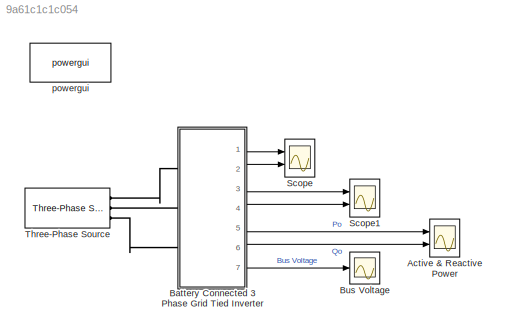
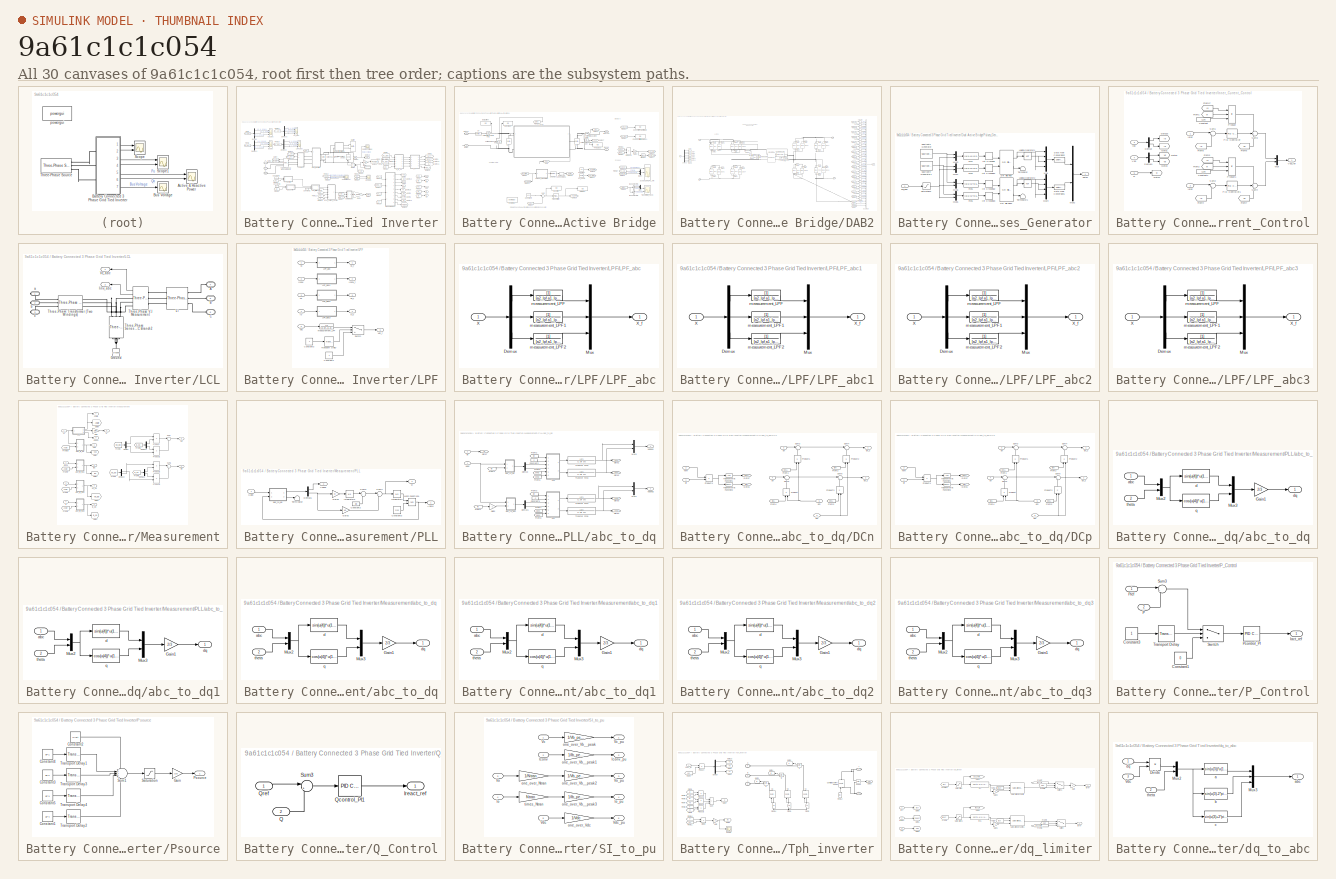
[diagram: thumbnail index - all 30 canvases of the model, root first then tree order]
MODEL slx_9a61c1c1c054
KIND model
CONFIG AbsTol = auto
CONFIG EnableMultiTasking = off
CONFIG FixedStep = dtsim
CONFIG MaxStep = auto
CONFIG MinStep = auto
CONFIG RelTol = 1e-3
CONFIG SampleTimeConstraint = Unconstrained
CONFIG Solver = ode3
CONFIG SolverName = ode3
CONFIG StartTime = 0.0
CONFIG StopTime = 4
BLOCK [Scope] Active & Reactive Power
  Floating = off
  NumInputPorts = 2
  Ports = [2]
  ScopeSpecificationString = Simulink.scopes.TimeScopeBlockCfg('CurrentConfiguration', extmgr.ConfigurationSet(extmgr.Configuration('Core','General UI',true),extmgr.Configuration('Core','Source UI',true),extmgr.Configuration('Sources','WiredSimulink',true,'DataLoggingVariableName','ScopeData3'),extmgr.Configuration('Visuals','Time Domain',true,'SerializedDisplays',{struct('MinYLimReal','-1.75825','MaxYLimReal','1.6619','YLabe...<+1440ch>
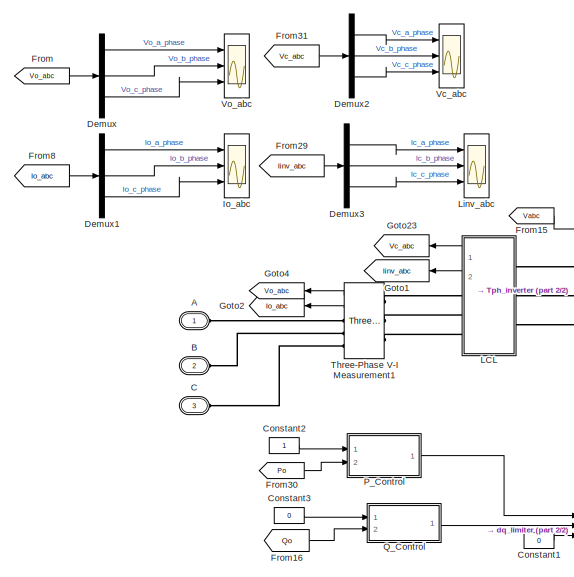
[diagram: Battery Connected 3 Phase Grid Tied Inverter - part 1/2, left side, full height]
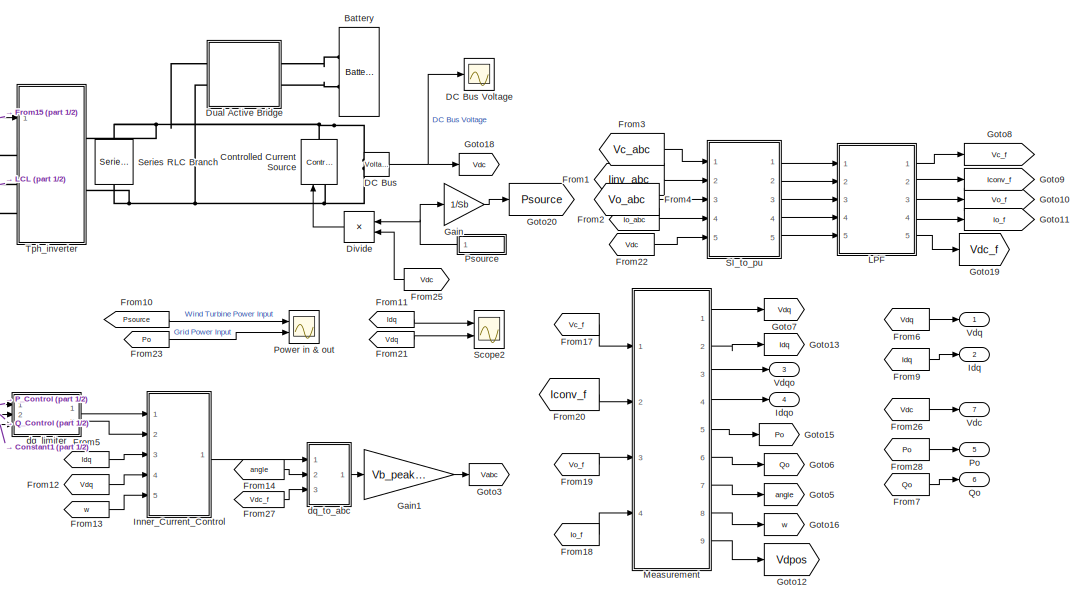
[diagram: Battery Connected 3 Phase Grid Tied Inverter - part 2/2, right side, full height]
BLOCK [SubSystem] Battery Connected 3 Phase Grid Tied Inverter
  Ports = [0, 7, 0, 0, 0, 3]
  RequestExecContextInheritance = off
BLOCK [PMIOPort] Battery Connected 3 Phase Grid Tied Inverter/A
  Side = Left
  Tag = PMCPort
BLOCK [PMIOPort] Battery Connected 3 Phase Grid Tied Inverter/B
  Port = 2
  Side = Left
  Tag = PMCPort
BLOCK [Reference] Battery Connected 3 Phase Grid Tied Inverter/Battery  REF=electricdrivelib/Extra Sources/Battery
  Ports = [0, 1, 0, 0, 0, 2]
  SourceBlock = electricdrivelib/Extra Sources/Battery
  SourceProductBaseCode = PS
  SourceType = Battery
BLOCK [PMIOPort] Battery Connected 3 Phase Grid Tied Inverter/C
  Port = 3
  Side = Left
  Tag = PMCPort
BLOCK [Constant] Battery Connected 3 Phase Grid Tied Inverter/Constant1
  Value = 0
BLOCK [Constant] Battery Connected 3 Phase Grid Tied Inverter/Constant2
BLOCK [Constant] Battery Connected 3 Phase Grid Tied Inverter/Constant3
  Value = 0
BLOCK [Reference] Battery Connected 3 Phase Grid Tied Inverter/Controlled Current Source  REF=powerlib/Electrical Sources/Controlled Current Source
  Ports = [1, 0, 0, 0, 0, 1, 1]
  SourceBlock = powerlib/Electrical Sources/Controlled Current Source
  SourceProductBaseCode = PS
  SourceType = Controlled Current Source
BLOCK [Reference] Battery Connected 3 Phase Grid Tied Inverter/DC Bus  REF=powerlib/Measurements/Voltage Measurement
  Ports = [0, 1, 0, 0, 0, 2]
  SourceBlock = powerlib/Measurements/Voltage Measurement
  SourceProductBaseCode = PS
  SourceType = Voltage Measurement
  UserDataPersistent = on
BLOCK [Scope] Battery Connected 3 Phase Grid Tied Inverter/DC Bus Voltage
  Floating = off
  NumInputPorts = 1
  Ports = [1]
  ScopeSpecificationString = Simulink.scopes.TimeScopeBlockCfg('CurrentConfiguration', extmgr.ConfigurationSet(extmgr.Configuration('Core','General UI',true),extmgr.Configuration('Core','Source UI',true),extmgr.Configuration('Sources','WiredSimulink',true,'DataLoggingVariableName','ScopeData1'),extmgr.Configuration('Visuals','Time Domain',true,'SerializedDisplays',{struct('MinYLimReal','329.21319','MaxYLimReal','465.65616','Y...<+1471ch>
BLOCK [Demux] Battery Connected 3 Phase Grid Tied Inverter/Demux
  Outputs = 3
  Ports = [1, 3]
BLOCK [Demux] Battery Connected 3 Phase Grid Tied Inverter/Demux1
  Outputs = 3
  Ports = [1, 3]
BLOCK [Demux] Battery Connected 3 Phase Grid Tied Inverter/Demux2
  Outputs = 3
  Ports = [1, 3]
BLOCK [Demux] Battery Connected 3 Phase Grid Tied Inverter/Demux3
  Outputs = 3
  Ports = [1, 3]
BLOCK [Product] Battery Connected 3 Phase Grid Tied Inverter/Divide
  Inputs = */
  Ports = [2, 1]
BLOCK [SubSystem] Battery Connected 3 Phase Grid Tied Inverter/Dual Active Bridge
  Ports = [0, 0, 0, 0, 0, 2, 2]
  RequestExecContextInheritance = off
BLOCK [Display] Battery Connected 3 Phase Grid Tied Inverter/Dual Active Bridge/Bat Current
  Decimation = 100
  Format = bank
  Ports = [1]
BLOCK [Display] Battery Connected 3 Phase Grid Tied Inverter/Dual Active Bridge/Bat Voltage
  Decimation = 100
  Format = bank
  Ports = [1]
BLOCK [PMIOPort] Battery Connected 3 Phase Grid Tied Inverter/Dual Active Bridge/Bat+ve
  Port = 3
  Side = Right
BLOCK [PMIOPort] Battery Connected 3 Phase Grid Tied Inverter/Dual Active Bridge/Bat-ve
  Port = 4
  Side = Right
BLOCK [BusSelector] Battery Connected 3 Phase Grid Tied Inverter/Dual Active Bridge/Bus Selector2
  OutputSignals = Vp,Vs
  Ports = [1, 2]
BLOCK [BusSelector] Battery Connected 3 Phase Grid Tied Inverter/Dual Active Bridge/Bus Selector3
  OutputSignals = I_Inductor
  Ports = [1, 1]
BLOCK [PMIOPort] Battery Connected 3 Phase Grid Tied Inverter/Dual Active Bridge/Bus+ve
  Side = Left
BLOCK [PMIOPort] Battery Connected 3 Phase Grid Tied Inverter/Dual Active Bridge/Bus-ve
  Port = 2
  Side = Left
BLOCK [Display] Battery Connected 3 Phase Grid Tied Inverter/Dual Active Bridge/BusError
  Decimation = 100
  Format = bank
  Ports = [1]
BLOCK [Reference] Battery Connected 3 Phase Grid Tied Inverter/Dual Active Bridge/C1  REF=powerlib/Elements/Series RLC Branch
  Ports = [0, 0, 0, 0, 0, 1, 1]
  SourceBlock = powerlib/Elements/Series RLC Branch
  SourceProductBaseCode = PS
  SourceType = Series RLC Branch
BLOCK [Reference] Battery Connected 3 Phase Grid Tied Inverter/Dual Active Bridge/C2  REF=powerlib/Elements/Series RLC Branch
  Ports = [0, 0, 0, 0, 0, 1, 1]
  SourceBlock = powerlib/Elements/Series RLC Branch
  SourceProductBaseCode = PS
  SourceType = Series RLC Branch
BLOCK [Reference] Battery Connected 3 Phase Grid Tied Inverter/Dual Active Bridge/C4  REF=powerlib/Elements/Series RLC Branch
  Ports = [0, 0, 0, 0, 0, 1, 1]
  SourceBlock = powerlib/Elements/Series RLC Branch
  SourceProductBaseCode = PS
  SourceType = Series RLC Branch
BLOCK [Constant] Battery Connected 3 Phase Grid Tied Inverter/Dual Active Bridge/Constant
  Commented = on
  Value = 36
BLOCK [Constant] Battery Connected 3 Phase Grid Tied Inverter/Dual Active Bridge/Constant4
  Value = 400
BLOCK [Display] Battery Connected 3 Phase Grid Tied Inverter/Dual Active Bridge/Converter Power in (kW)
  Decimation = 100
  Format = bank
  Ports = [1]
BLOCK [Reference] Battery Connected 3 Phase Grid Tied Inverter/Dual Active Bridge/Current Measurement1  REF=powerlib/Measurements/Current Measurement
  Ports = [0, 1, 0, 0, 0, 1, 1]
  SourceBlock = powerlib/Measurements/Current Measurement
  SourceProductBaseCode = PS
  SourceType = Current Measurement
  UserDataPersistent = on
BLOCK [Reference] Battery Connected 3 Phase Grid Tied Inverter/Dual Active Bridge/Current Measurement2  REF=powerlib/Measurements/Current Measurement
  Ports = [0, 1, 0, 0, 0, 1, 1]
  SourceBlock = powerlib/Measurements/Current Measurement
  SourceProductBaseCode = PS
  SourceType = Current Measurement
  UserDataPersistent = on
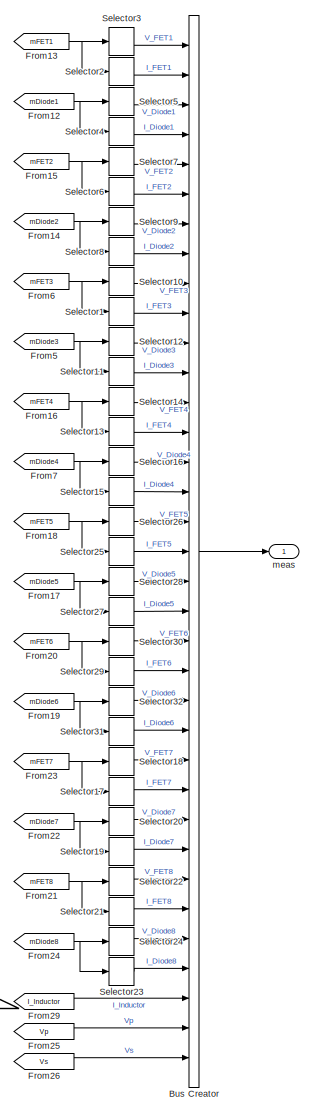
[diagram: Battery Connected 3 Phase Grid Tied Inverter/Dual Active Bridge/DAB2 - part 1/3, right side, full height]
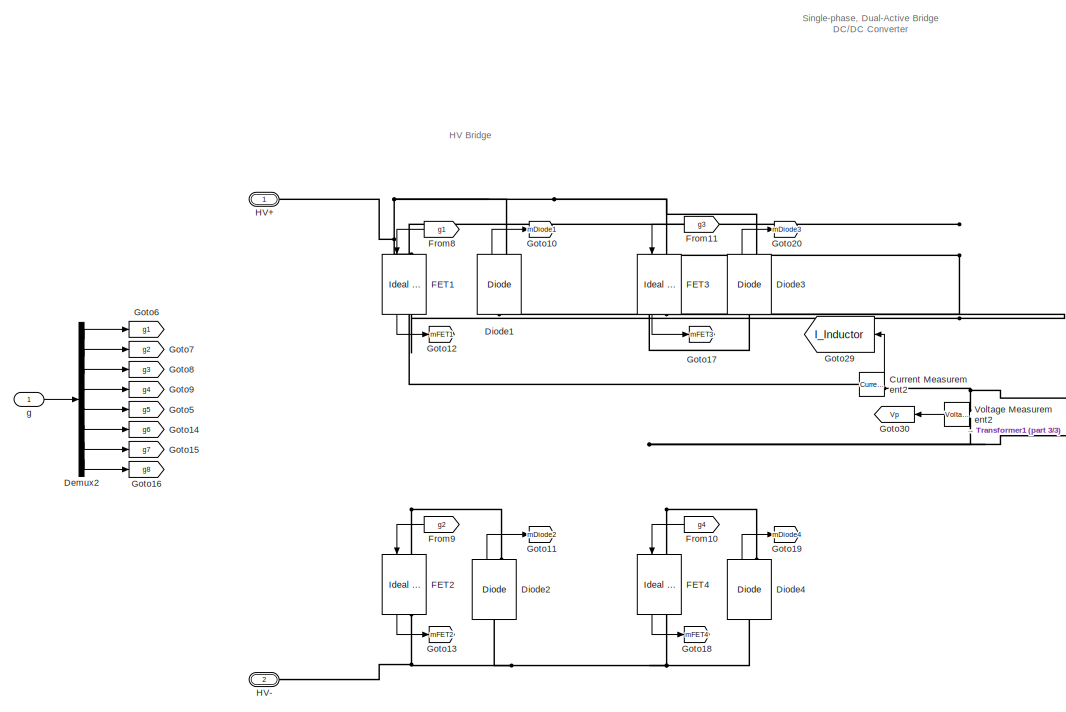
[diagram: Battery Connected 3 Phase Grid Tied Inverter/Dual Active Bridge/DAB2 - part 2/3, middle left region]
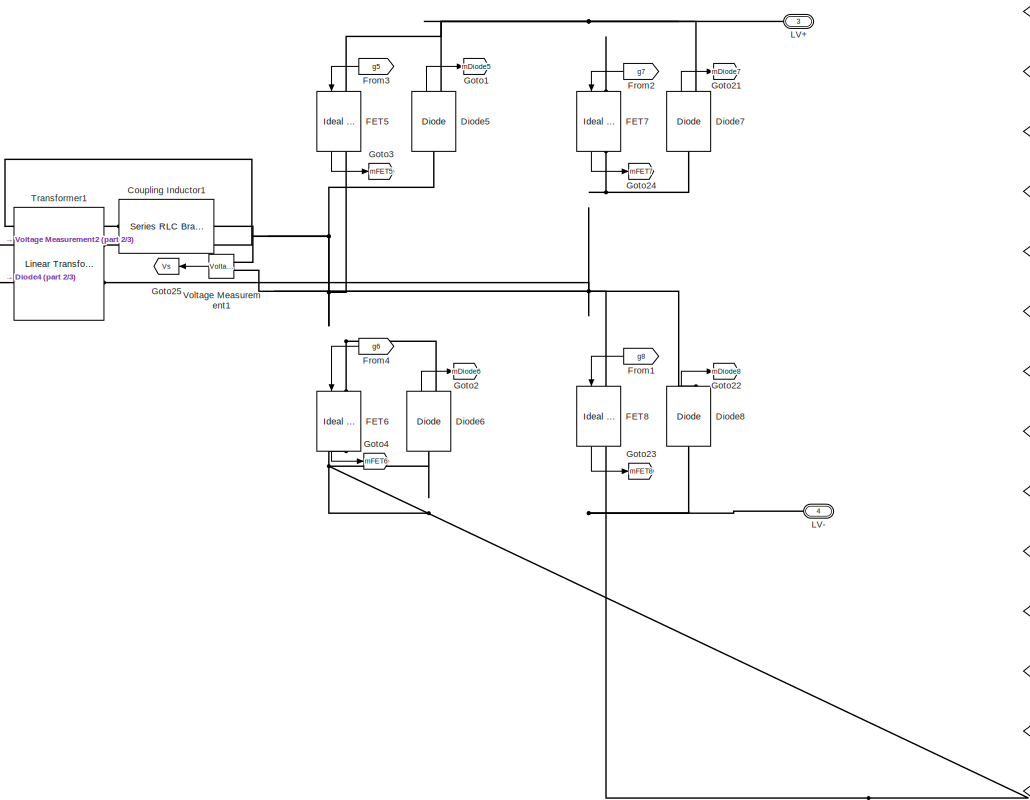
[diagram: Battery Connected 3 Phase Grid Tied Inverter/Dual Active Bridge/DAB2 - part 3/3, central region]
BLOCK [SubSystem] Battery Connected 3 Phase Grid Tied Inverter/Dual Active Bridge/DAB2
  Ports = [1, 1, 0, 0, 0, 2, 2]
  RequestExecContextInheritance = off
BLOCK [BusCreator] Battery Connected 3 Phase Grid Tied Inverter/Dual Active Bridge/DAB2/Bus Creator
  DisplayOption = bar
  InheritFromInputs = on
  Inputs = 35
  Ports = [35, 1]
BLOCK [Reference] Battery Connected 3 Phase Grid Tied Inverter/Dual Active Bridge/DAB2/Coupling Inductor1  REF=powerlib/Elements/Series RLC Branch
  Ports = [0, 0, 0, 0, 0, 1, 1]
  SourceBlock = powerlib/Elements/Series RLC Branch
  SourceProductBaseCode = PS
  SourceType = Series RLC Branch
BLOCK [Reference] Battery Connected 3 Phase Grid Tied Inverter/Dual Active Bridge/DAB2/Current Measurement2  REF=powerlib/Measurements/Current Measurement
  Ports = [0, 1, 0, 0, 0, 1, 1]
  SourceBlock = powerlib/Measurements/Current Measurement
  SourceProductBaseCode = PS
  SourceType = Current Measurement
  UserDataPersistent = on
BLOCK [Demux] Battery Connected 3 Phase Grid Tied Inverter/Dual Active Bridge/DAB2/Demux2
  Outputs = 8
  Ports = [1, 8]
BLOCK [Reference] Battery Connected 3 Phase Grid Tied Inverter/Dual Active Bridge/DAB2/Diode1  REF=powerlib/Power Electronics/Diode
  Ports = [0, 1, 0, 0, 0, 1, 1]
  SourceBlock = powerlib/Power Electronics/Diode
  SourceProductBaseCode = PS
  SourceType = Diode
BLOCK [Reference] Battery Connected 3 Phase Grid Tied Inverter/Dual Active Bridge/DAB2/Diode2  REF=powerlib/Power Electronics/Diode
  Ports = [0, 1, 0, 0, 0, 1, 1]
  SourceBlock = powerlib/Power Electronics/Diode
  SourceProductBaseCode = PS
  SourceType = Diode
BLOCK [Reference] Battery Connected 3 Phase Grid Tied Inverter/Dual Active Bridge/DAB2/Diode3  REF=powerlib/Power Electronics/Diode
  Ports = [0, 1, 0, 0, 0, 1, 1]
  SourceBlock = powerlib/Power Electronics/Diode
  SourceProductBaseCode = PS
  SourceType = Diode
BLOCK [Reference] Battery Connected 3 Phase Grid Tied Inverter/Dual Active Bridge/DAB2/Diode4  REF=powerlib/Power Electronics/Diode
  Ports = [0, 1, 0, 0, 0, 1, 1]
  SourceBlock = powerlib/Power Electronics/Diode
  SourceProductBaseCode = PS
  SourceType = Diode
BLOCK [Reference] Battery Connected 3 Phase Grid Tied Inverter/Dual Active Bridge/DAB2/Diode5  REF=powerlib/Power Electronics/Diode
  Ports = [0, 1, 0, 0, 0, 1, 1]
  SourceBlock = powerlib/Power Electronics/Diode
  SourceProductBaseCode = PS
  SourceType = Diode
BLOCK [Reference] Battery Connected 3 Phase Grid Tied Inverter/Dual Active Bridge/DAB2/Diode6  REF=powerlib/Power Electronics/Diode
  Ports = [0, 1, 0, 0, 0, 1, 1]
  SourceBlock = powerlib/Power Electronics/Diode
  SourceProductBaseCode = PS
  SourceType = Diode
BLOCK [Reference] Battery Connected 3 Phase Grid Tied Inverter/Dual Active Bridge/DAB2/Diode7  REF=powerlib/Power Electronics/Diode
  Ports = [0, 1, 0, 0, 0, 1, 1]
  SourceBlock = powerlib/Power Electronics/Diode
  SourceProductBaseCode = PS
  SourceType = Diode
BLOCK [Reference] Battery Connected 3 Phase Grid Tied Inverter/Dual Active Bridge/DAB2/Diode8  REF=powerlib/Power Electronics/Diode
  Ports = [0, 1, 0, 0, 0, 1, 1]
  SourceBlock = powerlib/Power Electronics/Diode
  SourceProductBaseCode = PS
  SourceType = Diode
BLOCK [Reference] Battery Connected 3 Phase Grid Tied Inverter/Dual Active Bridge/DAB2/FET1  REF=powerlib/Power Electronics/Ideal Switch
  Ports = [1, 1, 0, 0, 0, 1, 1]
  SourceBlock = powerlib/Power Electronics/Ideal Switch
  SourceProductBaseCode = PS
  SourceType = Ideal Switch
BLOCK [Reference] Battery Connected 3 Phase Grid Tied Inverter/Dual Active Bridge/DAB2/FET2  REF=powerlib/Power Electronics/Ideal Switch
  Ports = [1, 1, 0, 0, 0, 1, 1]
  SourceBlock = powerlib/Power Electronics/Ideal Switch
  SourceProductBaseCode = PS
  SourceType = Ideal Switch
BLOCK [Reference] Battery Connected 3 Phase Grid Tied Inverter/Dual Active Bridge/DAB2/FET3  REF=powerlib/Power Electronics/Ideal Switch
  Ports = [1, 1, 0, 0, 0, 1, 1]
  SourceBlock = powerlib/Power Electronics/Ideal Switch
  SourceProductBaseCode = PS
  SourceType = Ideal Switch
BLOCK [Reference] Battery Connected 3 Phase Grid Tied Inverter/Dual Active Bridge/DAB2/FET4  REF=powerlib/Power Electronics/Ideal Switch
  Ports = [1, 1, 0, 0, 0, 1, 1]
  SourceBlock = powerlib/Power Electronics/Ideal Switch
  SourceProductBaseCode = PS
  SourceType = Ideal Switch
BLOCK [Reference] Battery Connected 3 Phase Grid Tied Inverter/Dual Active Bridge/DAB2/FET5  REF=powerlib/Power Electronics/Ideal Switch
  Ports = [1, 1, 0, 0, 0, 1, 1]
  SourceBlock = powerlib/Power Electronics/Ideal Switch
  SourceProductBaseCode = PS
  SourceType = Ideal Switch
BLOCK [Reference] Battery Connected 3 Phase Grid Tied Inverter/Dual Active Bridge/DAB2/FET6  REF=powerlib/Power Electronics/Ideal Switch
  Ports = [1, 1, 0, 0, 0, 1, 1]
  SourceBlock = powerlib/Power Electronics/Ideal Switch
  SourceProductBaseCode = PS
  SourceType = Ideal Switch
BLOCK [Reference] Battery Connected 3 Phase Grid Tied Inverter/Dual Active Bridge/DAB2/FET7  REF=powerlib/Power Electronics/Ideal Switch
  Ports = [1, 1, 0, 0, 0, 1, 1]
  SourceBlock = powerlib/Power Electronics/Ideal Switch
  SourceProductBaseCode = PS
  SourceType = Ideal Switch
BLOCK [Reference] Battery Connected 3 Phase Grid Tied Inverter/Dual Active Bridge/DAB2/FET8  REF=powerlib/Power Electronics/Ideal Switch
  Ports = [1, 1, 0, 0, 0, 1, 1]
  SourceBlock = powerlib/Power Electronics/Ideal Switch
  SourceProductBaseCode = PS
  SourceType = Ideal Switch
BLOCK [From] Battery Connected 3 Phase Grid Tied Inverter/Dual Active Bridge/DAB2/From1
  GotoTag = g8
BLOCK [From] Battery Connected 3 Phase Grid Tied Inverter/Dual Active Bridge/DAB2/From10
  GotoTag = g4
BLOCK [From] Battery Connected 3 Phase Grid Tied Inverter/Dual Active Bridge/DAB2/From11
  GotoTag = g3
BLOCK [From] Battery Connected 3 Phase Grid Tied Inverter/Dual Active Bridge/DAB2/From12
  GotoTag = mDiode1
BLOCK [From] Battery Connected 3 Phase Grid Tied Inverter/Dual Active Bridge/DAB2/From13
  GotoTag = mFET1
BLOCK [From] Battery Connected 3 Phase Grid Tied Inverter/Dual Active Bridge/DAB2/From14
  GotoTag = mDiode2
BLOCK [From] Battery Connected 3 Phase Grid Tied Inverter/Dual Active Bridge/DAB2/From15
  GotoTag = mFET2
BLOCK [From] Battery Connected 3 Phase Grid Tied Inverter/Dual Active Bridge/DAB2/From16
  GotoTag = mFET4
BLOCK [From] Battery Connected 3 Phase Grid Tied Inverter/Dual Active Bridge/DAB2/From17
  GotoTag = mDiode5
BLOCK [From] Battery Connected 3 Phase Grid Tied Inverter/Dual Active Bridge/DAB2/From18
  GotoTag = mFET5
BLOCK [From] Battery Connected 3 Phase Grid Tied Inverter/Dual Active Bridge/DAB2/From19
  GotoTag = mDiode6
BLOCK [From] Battery Connected 3 Phase Grid Tied Inverter/Dual Active Bridge/DAB2/From2
  GotoTag = g7
BLOCK [From] Battery Connected 3 Phase Grid Tied Inverter/Dual Active Bridge/DAB2/From20
  GotoTag = mFET6
BLOCK [From] Battery Connected 3 Phase Grid Tied Inverter/Dual Active Bridge/DAB2/From21
  GotoTag = mFET8
BLOCK [From] Battery Connected 3 Phase Grid Tied Inverter/Dual Active Bridge/DAB2/From22
  GotoTag = mDiode7
BLOCK [From] Battery Connected 3 Phase Grid Tied Inverter/Dual Active Bridge/DAB2/From23
  GotoTag = mFET7
BLOCK [From] Battery Connected 3 Phase Grid Tied Inverter/Dual Active Bridge/DAB2/From24
  GotoTag = mDiode8
BLOCK [From] Battery Connected 3 Phase Grid Tied Inverter/Dual Active Bridge/DAB2/From25
  GotoTag = Vp
BLOCK [From] Battery Connected 3 Phase Grid Tied Inverter/Dual Active Bridge/DAB2/From26
  GotoTag = Vs
BLOCK [From] Battery Connected 3 Phase Grid Tied Inverter/Dual Active Bridge/DAB2/From29
  GotoTag = I_Inductor
BLOCK [From] Battery Connected 3 Phase Grid Tied Inverter/Dual Active Bridge/DAB2/From3
  GotoTag = g5
BLOCK [From] Battery Connected 3 Phase Grid Tied Inverter/Dual Active Bridge/DAB2/From4
  GotoTag = g6
BLOCK [From] Battery Connected 3 Phase Grid Tied Inverter/Dual Active Bridge/DAB2/From5
  GotoTag = mDiode3
BLOCK [From] Battery Connected 3 Phase Grid Tied Inverter/Dual Active Bridge/DAB2/From6
  GotoTag = mFET3
BLOCK [From] Battery Connected 3 Phase Grid Tied Inverter/Dual Active Bridge/DAB2/From7
  GotoTag = mDiode4
BLOCK [From] Battery Connected 3 Phase Grid Tied Inverter/Dual Active Bridge/DAB2/From8
  GotoTag = g1
BLOCK [From] Battery Connected 3 Phase Grid Tied Inverter/Dual Active Bridge/DAB2/From9
  GotoTag = g2
BLOCK [Goto] Battery Connected 3 Phase Grid Tied Inverter/Dual Active Bridge/DAB2/Goto1
  GotoTag = mDiode5
BLOCK [Goto] Battery Connected 3 Phase Grid Tied Inverter/Dual Active Bridge/DAB2/Goto10
  GotoTag = mDiode1
BLOCK [Goto] Battery Connected 3 Phase Grid Tied Inverter/Dual Active Bridge/DAB2/Goto11
  GotoTag = mDiode2
BLOCK [Goto] Battery Connected 3 Phase Grid Tied Inverter/Dual Active Bridge/DAB2/Goto12
  GotoTag = mFET1
BLOCK [Goto] Battery Connected 3 Phase Grid Tied Inverter/Dual Active Bridge/DAB2/Goto13
  GotoTag = mFET2
BLOCK [Goto] Battery Connected 3 Phase Grid Tied Inverter/Dual Active Bridge/DAB2/Goto14
  GotoTag = g6
BLOCK [Goto] Battery Connected 3 Phase Grid Tied Inverter/Dual Active Bridge/DAB2/Goto15
  GotoTag = g7
BLOCK [Goto] Battery Connected 3 Phase Grid Tied Inverter/Dual Active Bridge/DAB2/Goto16
  GotoTag = g8
BLOCK [Goto] Battery Connected 3 Phase Grid Tied Inverter/Dual Active Bridge/DAB2/Goto17
  GotoTag = mFET3
BLOCK [Goto] Battery Connected 3 Phase Grid Tied Inverter/Dual Active Bridge/DAB2/Goto18
  GotoTag = mFET4
BLOCK [Goto] Battery Connected 3 Phase Grid Tied Inverter/Dual Active Bridge/DAB2/Goto19
  GotoTag = mDiode4
BLOCK [Goto] Battery Connected 3 Phase Grid Tied Inverter/Dual Active Bridge/DAB2/Goto2
  GotoTag = mDiode6
BLOCK [Goto] Battery Connected 3 Phase Grid Tied Inverter/Dual Active Bridge/DAB2/Goto20
  GotoTag = mDiode3
BLOCK [Goto] Battery Connected 3 Phase Grid Tied Inverter/Dual Active Bridge/DAB2/Goto21
  GotoTag = mDiode7
BLOCK [Goto] Battery Connected 3 Phase Grid Tied Inverter/Dual Active Bridge/DAB2/Goto22
  GotoTag = mDiode8
BLOCK [Goto] Battery Connected 3 Phase Grid Tied Inverter/Dual Active Bridge/DAB2/Goto23
  GotoTag = mFET8
BLOCK [Goto] Battery Connected 3 Phase Grid Tied Inverter/Dual Active Bridge/DAB2/Goto24
  GotoTag = mFET7
BLOCK [Goto] Battery Connected 3 Phase Grid Tied Inverter/Dual Active Bridge/DAB2/Goto25
  GotoTag = Vs
BLOCK [Goto] Battery Connected 3 Phase Grid Tied Inverter/Dual Active Bridge/DAB2/Goto29
  GotoTag = I_Inductor
BLOCK [Goto] Battery Connected 3 Phase Grid Tied Inverter/Dual Active Bridge/DAB2/Goto3
  GotoTag = mFET5
BLOCK [Goto] Battery Connected 3 Phase Grid Tied Inverter/Dual Active Bridge/DAB2/Goto30
  GotoTag = Vp
BLOCK [Goto] Battery Connected 3 Phase Grid Tied Inverter/Dual Active Bridge/DAB2/Goto4
  GotoTag = mFET6
BLOCK [Goto] Battery Connected 3 Phase Grid Tied Inverter/Dual Active Bridge/DAB2/Goto5
  GotoTag = g5
BLOCK [Goto] Battery Connected 3 Phase Grid Tied Inverter/Dual Active Bridge/DAB2/Goto6
  GotoTag = g1
BLOCK [Goto] Battery Connected 3 Phase Grid Tied Inverter/Dual Active Bridge/DAB2/Goto7
  GotoTag = g2
BLOCK [Goto] Battery Connected 3 Phase Grid Tied Inverter/Dual Active Bridge/DAB2/Goto8
  GotoTag = g3
BLOCK [Goto] Battery Connected 3 Phase Grid Tied Inverter/Dual Active Bridge/DAB2/Goto9
  GotoTag = g4
BLOCK [PMIOPort] Battery Connected 3 Phase Grid Tied Inverter/Dual Active Bridge/DAB2/HV+
  Side = Left
BLOCK [PMIOPort] Battery Connected 3 Phase Grid Tied Inverter/Dual Active Bridge/DAB2/HV-
  Port = 2
  Side = Left
BLOCK [PMIOPort] Battery Connected 3 Phase Grid Tied Inverter/Dual Active Bridge/DAB2/LV+
  Port = 3
  Side = Right
BLOCK [PMIOPort] Battery Connected 3 Phase Grid Tied Inverter/Dual Active Bridge/DAB2/LV-
  Port = 4
  Side = Right
BLOCK [Selector] Battery Connected 3 Phase Grid Tied Inverter/Dual Active Bridge/DAB2/Selector1
  IndexOptions = Index vector (dialog)
  Indices = 1
  InputPortWidth = 2
  OutputSizes = 1
  Ports = [1, 1]
BLOCK [Selector] Battery Connected 3 Phase Grid Tied Inverter/Dual Active Bridge/DAB2/Selector10
  IndexOptions = Index vector (dialog)
  Indices = 2
  InputPortWidth = 2
  OutputSizes = 1
  Ports = [1, 1]
BLOCK [Selector] Battery Connected 3 Phase Grid Tied Inverter/Dual Active Bridge/DAB2/Selector11
  IndexOptions = Index vector (dialog)
  Indices = 1
  InputPortWidth = 2
  OutputSizes = 1
  Ports = [1, 1]
BLOCK [Selector] Battery Connected 3 Phase Grid Tied Inverter/Dual Active Bridge/DAB2/Selector12
  IndexOptions = Index vector (dialog)
  Indices = 2
  InputPortWidth = 2
  OutputSizes = 1
  Ports = [1, 1]
BLOCK [Selector] Battery Connected 3 Phase Grid Tied Inverter/Dual Active Bridge/DAB2/Selector13
  IndexOptions = Index vector (dialog)
  Indices = 1
  InputPortWidth = 2
  OutputSizes = 1
  Ports = [1, 1]
BLOCK [Selector] Battery Connected 3 Phase Grid Tied Inverter/Dual Active Bridge/DAB2/Selector14
  IndexOptions = Index vector (dialog)
  Indices = 2
  InputPortWidth = 2
  OutputSizes = 1
  Ports = [1, 1]
BLOCK [Selector] Battery Connected 3 Phase Grid Tied Inverter/Dual Active Bridge/DAB2/Selector15
  IndexOptions = Index vector (dialog)
  Indices = 1
  InputPortWidth = 2
  OutputSizes = 1
  Ports = [1, 1]
BLOCK [Selector] Battery Connected 3 Phase Grid Tied Inverter/Dual Active Bridge/DAB2/Selector16
  IndexOptions = Index vector (dialog)
  Indices = 2
  InputPortWidth = 2
  OutputSizes = 1
  Ports = [1, 1]
BLOCK [Selector] Battery Connected 3 Phase Grid Tied Inverter/Dual Active Bridge/DAB2/Selector17
  IndexOptions = Index vector (dialog)
  Indices = 1
  InputPortWidth = 2
  OutputSizes = 1
  Ports = [1, 1]
BLOCK [Selector] Battery Connected 3 Phase Grid Tied Inverter/Dual Active Bridge/DAB2/Selector18
  IndexOptions = Index vector (dialog)
  Indices = 2
  InputPortWidth = 2
  OutputSizes = 1
  Ports = [1, 1]
BLOCK [Selector] Battery Connected 3 Phase Grid Tied Inverter/Dual Active Bridge/DAB2/Selector19
  IndexOptions = Index vector (dialog)
  Indices = 1
  InputPortWidth = 2
  OutputSizes = 1
  Ports = [1, 1]
BLOCK [Selector] Battery Connected 3 Phase Grid Tied Inverter/Dual Active Bridge/DAB2/Selector2
  IndexOptions = Index vector (dialog)
  Indices = 1
  InputPortWidth = 2
  OutputSizes = 1
  Ports = [1, 1]
BLOCK [Selector] Battery Connected 3 Phase Grid Tied Inverter/Dual Active Bridge/DAB2/Selector20
  IndexOptions = Index vector (dialog)
  Indices = 2
  InputPortWidth = 2
  OutputSizes = 1
  Ports = [1, 1]
BLOCK [Selector] Battery Connected 3 Phase Grid Tied Inverter/Dual Active Bridge/DAB2/Selector21
  IndexOptions = Index vector (dialog)
  Indices = 1
  InputPortWidth = 2
  OutputSizes = 1
  Ports = [1, 1]
BLOCK [Selector] Battery Connected 3 Phase Grid Tied Inverter/Dual Active Bridge/DAB2/Selector22
  IndexOptions = Index vector (dialog)
  Indices = 2
  InputPortWidth = 2
  OutputSizes = 1
  Ports = [1, 1]
BLOCK [Selector] Battery Connected 3 Phase Grid Tied Inverter/Dual Active Bridge/DAB2/Selector23
  IndexOptions = Index vector (dialog)
  Indices = 1
  InputPortWidth = 2
  OutputSizes = 1
  Ports = [1, 1]
BLOCK [Selector] Battery Connected 3 Phase Grid Tied Inverter/Dual Active Bridge/DAB2/Selector24
  IndexOptions = Index vector (dialog)
  Indices = 2
  InputPortWidth = 2
  OutputSizes = 1
  Ports = [1, 1]
BLOCK [Selector] Battery Connected 3 Phase Grid Tied Inverter/Dual Active Bridge/DAB2/Selector25
  IndexOptions = Index vector (dialog)
  Indices = 1
  InputPortWidth = 2
  OutputSizes = 1
  Ports = [1, 1]
BLOCK [Selector] Battery Connected 3 Phase Grid Tied Inverter/Dual Active Bridge/DAB2/Selector26
  IndexOptions = Index vector (dialog)
  Indices = 2
  InputPortWidth = 2
  OutputSizes = 1
  Ports = [1, 1]
BLOCK [Selector] Battery Connected 3 Phase Grid Tied Inverter/Dual Active Bridge/DAB2/Selector27
  IndexOptions = Index vector (dialog)
  Indices = 1
  InputPortWidth = 2
  OutputSizes = 1
  Ports = [1, 1]
BLOCK [Selector] Battery Connected 3 Phase Grid Tied Inverter/Dual Active Bridge/DAB2/Selector28
  IndexOptions = Index vector (dialog)
  Indices = 2
  InputPortWidth = 2
  OutputSizes = 1
  Ports = [1, 1]
BLOCK [Selector] Battery Connected 3 Phase Grid Tied Inverter/Dual Active Bridge/DAB2/Selector29
  IndexOptions = Index vector (dialog)
  Indices = 1
  InputPortWidth = 2
  OutputSizes = 1
  Ports = [1, 1]
BLOCK [Selector] Battery Connected 3 Phase Grid Tied Inverter/Dual Active Bridge/DAB2/Selector3
  IndexOptions = Index vector (dialog)
  Indices = 2
  InputPortWidth = 2
  OutputSizes = 1
  Ports = [1, 1]
BLOCK [Selector] Battery Connected 3 Phase Grid Tied Inverter/Dual Active Bridge/DAB2/Selector30
  IndexOptions = Index vector (dialog)
  Indices = 2
  InputPortWidth = 2
  OutputSizes = 1
  Ports = [1, 1]
BLOCK [Selector] Battery Connected 3 Phase Grid Tied Inverter/Dual Active Bridge/DAB2/Selector31
  IndexOptions = Index vector (dialog)
  Indices = 1
  InputPortWidth = 2
  OutputSizes = 1
  Ports = [1, 1]
BLOCK [Selector] Battery Connected 3 Phase Grid Tied Inverter/Dual Active Bridge/DAB2/Selector32
  IndexOptions = Index vector (dialog)
  Indices = 2
  InputPortWidth = 2
  OutputSizes = 1
  Ports = [1, 1]
BLOCK [Selector] Battery Connected 3 Phase Grid Tied Inverter/Dual Active Bridge/DAB2/Selector4
  IndexOptions = Index vector (dialog)
  Indices = 1
  InputPortWidth = 2
  OutputSizes = 1
  Ports = [1, 1]
BLOCK [Selector] Battery Connected 3 Phase Grid Tied Inverter/Dual Active Bridge/DAB2/Selector5
  IndexOptions = Index vector (dialog)
  Indices = 2
  InputPortWidth = 2
  OutputSizes = 1
  Ports = [1, 1]
BLOCK [Selector] Battery Connected 3 Phase Grid Tied Inverter/Dual Active Bridge/DAB2/Selector6
  IndexOptions = Index vector (dialog)
  Indices = 1
  InputPortWidth = 2
  OutputSizes = 1
  Ports = [1, 1]
BLOCK [Selector] Battery Connected 3 Phase Grid Tied Inverter/Dual Active Bridge/DAB2/Selector7
  IndexOptions = Index vector (dialog)
  Indices = 2
  InputPortWidth = 2
  OutputSizes = 1
  Ports = [1, 1]
BLOCK [Selector] Battery Connected 3 Phase Grid Tied Inverter/Dual Active Bridge/DAB2/Selector8
  IndexOptions = Index vector (dialog)
  Indices = 1
  InputPortWidth = 2
  OutputSizes = 1
  Ports = [1, 1]
BLOCK [Selector] Battery Connected 3 Phase Grid Tied Inverter/Dual Active Bridge/DAB2/Selector9
  IndexOptions = Index vector (dialog)
  Indices = 2
  InputPortWidth = 2
  OutputSizes = 1
  Ports = [1, 1]
BLOCK [Reference] Battery Connected 3 Phase Grid Tied Inverter/Dual Active Bridge/DAB2/Transformer1  REF=powerlib/Elements/Linear Transformer
  Ports = [0, 0, 0, 0, 0, 2, 2]
  SourceBlock = powerlib/Elements/Linear Transformer
  SourceProductBaseCode = PS
  SourceType = Linear Transformer
BLOCK [Reference] Battery Connected 3 Phase Grid Tied Inverter/Dual Active Bridge/DAB2/Voltage Measurement1  REF=powerlib/Measurements/Voltage Measurement
  Ports = [0, 1, 0, 0, 0, 2]
  SourceBlock = powerlib/Measurements/Voltage Measurement
  SourceProductBaseCode = PS
  SourceType = Voltage Measurement
  UserDataPersistent = on
BLOCK [Reference] Battery Connected 3 Phase Grid Tied Inverter/Dual Active Bridge/DAB2/Voltage Measurement2  REF=powerlib/Measurements/Voltage Measurement
  Ports = [0, 1, 0, 0, 0, 2]
  SourceBlock = powerlib/Measurements/Voltage Measurement
  SourceProductBaseCode = PS
  SourceType = Voltage Measurement
  UserDataPersistent = on
BLOCK [Inport] Battery Connected 3 Phase Grid Tied Inverter/Dual Active Bridge/DAB2/g
  PortDimensions = 8
BLOCK [Outport] Battery Connected 3 Phase Grid Tied Inverter/Dual Active Bridge/DAB2/meas
  PortDimensions = 35
BLOCK [DataTypeConversion] Battery Connected 3 Phase Grid Tied Inverter/Dual Active Bridge/Data Type Conversion1
  OutDataTypeStr = double
  RndMeth = Floor
  SaturateOnIntegerOverflow = off
BLOCK [From] Battery Connected 3 Phase Grid Tied Inverter/Dual Active Bridge/From24
  GotoTag = Vbus
BLOCK [From] Battery Connected 3 Phase Grid Tied Inverter/Dual Active Bridge/From35
  GotoTag = Ibus
BLOCK [From] Battery Connected 3 Phase Grid Tied Inverter/Dual Active Bridge/From36
  GotoTag = Vbus
BLOCK [From] Battery Connected 3 Phase Grid Tied Inverter/Dual Active Bridge/From37
  GotoTag = P2_kW
BLOCK [From] Battery Connected 3 Phase Grid Tied Inverter/Dual Active Bridge/From38
  GotoTag = gates
BLOCK [From] Battery Connected 3 Phase Grid Tied Inverter/Dual Active Bridge/From39
  GotoTag = phi_deg
BLOCK [From] Battery Connected 3 Phase Grid Tied Inverter/Dual Active Bridge/From40
  GotoTag = meas
BLOCK [From] Battery Connected 3 Phase Grid Tied Inverter/Dual Active Bridge/From41
  GotoTag = phi_ramp
BLOCK [From] Battery Connected 3 Phase Grid Tied Inverter/Dual Active Bridge/From42
  GotoTag = P2m_kW
BLOCK [From] Battery Connected 3 Phase Grid Tied Inverter/Dual Active Bridge/From43
  GotoTag = P2m_kW
BLOCK [From] Battery Connected 3 Phase Grid Tied Inverter/Dual Active Bridge/From44
  GotoTag = phi_deg
BLOCK [Gain] Battery Connected 3 Phase Grid Tied Inverter/Dual Active Bridge/Gain2
  Gain = 1e-3
BLOCK [Goto] Battery Connected 3 Phase Grid Tied Inverter/Dual Active Bridge/Goto
  GotoTag = meas
BLOCK [Goto] Battery Connected 3 Phase Grid Tied Inverter/Dual Active Bridge/Goto14
  Commented = on
  GotoTag = phi_ramp
BLOCK [Goto] Battery Connected 3 Phase Grid Tied Inverter/Dual Active Bridge/Goto17
  GotoTag = P2m_kW
BLOCK [Goto] Battery Connected 3 Phase Grid Tied Inverter/Dual Active Bridge/Goto21
  GotoTag = Ibus
BLOCK [Goto] Battery Connected 3 Phase Grid Tied Inverter/Dual Active Bridge/Goto22
  GotoTag = P2_kW
BLOCK [Goto] Battery Connected 3 Phase Grid Tied Inverter/Dual Active Bridge/Goto24
  GotoTag = phi_deg
BLOCK [Goto] Battery Connected 3 Phase Grid Tied Inverter/Dual Active Bridge/Goto25
  Commented = on
  GotoTag = phi_ramp
BLOCK [Goto] Battery Connected 3 Phase Grid Tied Inverter/Dual Active Bridge/Goto26
  GotoTag = phi_ramp
BLOCK [Goto] Battery Connected 3 Phase Grid Tied Inverter/Dual Active Bridge/Goto27
  GotoTag = Vbus
BLOCK [Goto] Battery Connected 3 Phase Grid Tied Inverter/Dual Active Bridge/Goto28
  GotoTag = gates
BLOCK [Display] Battery Connected 3 Phase Grid Tied Inverter/Dual Active Bridge/HV DC Bus
  Decimation = 100
  Format = bank
  Ports = [1]
BLOCK [Reference] Battery Connected 3 Phase Grid Tied Inverter/Dual Active Bridge/Mean2  REF=powerlib_meascontrol/Measurements/Mean
  Ports = [1, 1]
  SourceBlock = powerlib_meascontrol/Measurements/Mean
  SourceProductBaseCode = PS
  SourceType = Mean
BLOCK [Mux] Battery Connected 3 Phase Grid Tied Inverter/Dual Active Bridge/Mux
  DisplayOption = bar
  Inputs = 2
  Ports = [2, 1]
BLOCK [Mux] Battery Connected 3 Phase Grid Tied Inverter/Dual Active Bridge/Mux4
  DisplayOption = bar
  Inputs = 2
  Ports = [2, 1]
BLOCK [Reference] Battery Connected 3 Phase Grid Tied Inverter/Dual Active Bridge/On Delay2  REF=powerlib_meascontrol/Logic/On Delay
  Ports = [1, 1]
  SourceBlock = powerlib_meascontrol/Logic/On Delay
  SourceProductBaseCode = PS
  SourceType = On/Off Delay
BLOCK [Reference] Battery Connected 3 Phase Grid Tied Inverter/Dual Active Bridge/PID Controller  REF=simulink/Continuous/PID Controller
  Ports = [1, 1]
  SourceBlock = simulink/Continuous/PID Controller
  SourceProductBaseCode = SL
  SourceType = PID 1dof
BLOCK [Display] Battery Connected 3 Phase Grid Tied Inverter/Dual Active Bridge/PIOutput
  Decimation = 100
  Format = bank
  Ports = [1]
BLOCK [Display] Battery Connected 3 Phase Grid Tied Inverter/Dual Active Bridge/Phase shift in (degrees)
  Decimation = 100
  Format = bank
  Ports = [1]
BLOCK [Product] Battery Connected 3 Phase Grid Tied Inverter/Dual Active Bridge/Product1
  Ports = [2, 1]
BLOCK [SubSystem] Battery Connected 3 Phase Grid Tied Inverter/Dual Active Bridge/Pulses_Generator
  Ports = [1, 1]
  RequestExecContextInheritance = off
BLOCK [DataTypeConversion] Battery Connected 3 Phase Grid Tied Inverter/Dual Active Bridge/Pulses_Generator/Data Type Conversion1
  OutDataTypeStr = double
  RndMeth = Floor
  SaturateOnIntegerOverflow = off
BLOCK [DataTypeConversion] Battery Connected 3 Phase Grid Tied Inverter/Dual Active Bridge/Pulses_Generator/Data Type Conversion2
  OutDataTypeStr = double
  RndMeth = Floor
  SaturateOnIntegerOverflow = off
BLOCK [Fcn] Battery Connected 3 Phase Grid Tied Inverter/Dual Active Bridge/Pulses_Generator/Fcn1
  Expr = ((u(1)+1)*0.5) - (0.5-u(2)/720)
BLOCK [Fcn] Battery Connected 3 Phase Grid Tied Inverter/Dual Active Bridge/Pulses_Generator/Fcn2
  Expr = ((u(1)+1)*0.5) - (0.5-u(2)/720)
BLOCK [Fcn] Battery Connected 3 Phase Grid Tied Inverter/Dual Active Bridge/Pulses_Generator/Fcn5
  Expr = ((u(1)+1)*0.5) - (0.5+u(2)/720)
BLOCK [Fcn] Battery Connected 3 Phase Grid Tied Inverter/Dual Active Bridge/Pulses_Generator/Fcn6
  Expr = ((u(1)+1)*0.5) - (0.5+u(2)/720)
BLOCK [HitCross] Battery Connected 3 Phase Grid Tied Inverter/Dual Active Bridge/Pulses_Generator/Hit Crossing
  HitCrossingDirection = rising
  Ports = [1, 1]
BLOCK [HitCross] Battery Connected 3 Phase Grid Tied Inverter/Dual Active Bridge/Pulses_Generator/Hit Crossing1
  HitCrossingDirection = rising
  Ports = [1, 1]
BLOCK [HitCross] Battery Connected 3 Phase Grid Tied Inverter/Dual Active Bridge/Pulses_Generator/Hit Crossing2
  HitCrossingDirection = rising
  Ports = [1, 1]
BLOCK [HitCross] Battery Connected 3 Phase Grid Tied Inverter/Dual Active Bridge/Pulses_Generator/Hit Crossing3
  HitCrossingDirection = rising
  Ports = [1, 1]
BLOCK [Logic] Battery Connected 3 Phase Grid Tied Inverter/Dual Active Bridge/Pulses_Generator/Logical Operator1
  AllPortsSameDT = off
  Operator = NOT
  OutDataTypeStr = boolean
  Ports = [1, 1]
BLOCK [Logic] Battery Connected 3 Phase Grid Tied Inverter/Dual Active Bridge/Pulses_Generator/Logical Operator2
  AllPortsSameDT = off
  Operator = NOT
  OutDataTypeStr = boolean
  Ports = [1, 1]
BLOCK [Mux] Battery Connected 3 Phase Grid Tied Inverter/Dual Active Bridge/Pulses_Generator/Mux
  DisplayOption = bar
  Ports = [4, 1]
BLOCK [Mux] Battery Connected 3 Phase Grid Tied Inverter/Dual Active Bridge/Pulses_Generator/Mux1
  DisplayOption = bar
  Inputs = 2
  Ports = [2, 1]
BLOCK [Mux] Battery Connected 3 Phase Grid Tied Inverter/Dual Active Bridge/Pulses_Generator/Mux2
  DisplayOption = bar
  Inputs = [4,4]
  Ports = [2, 1]
BLOCK [Mux] Battery Connected 3 Phase Grid Tied Inverter/Dual Active Bridge/Pulses_Generator/Mux3
  DisplayOption = bar
  Inputs = 2
  Ports = [2, 1]
BLOCK [Mux] Battery Connected 3 Phase Grid Tied Inverter/Dual Active Bridge/Pulses_Generator/Mux4
  DisplayOption = bar
  Ports = [4, 1]
BLOCK [Mux] Battery Connected 3 Phase Grid Tied Inverter/Dual Active Bridge/Pulses_Generator/Mux5
  DisplayOption = bar
  Inputs = 2
  Ports = [2, 1]
BLOCK [Mux] Battery Connected 3 Phase Grid Tied Inverter/Dual Active Bridge/Pulses_Generator/Mux6
  DisplayOption = bar
  Inputs = 2
  Ports = [2, 1]
BLOCK [Reference] Battery Connected 3 Phase Grid Tied Inverter/Dual Active Bridge/Pulses_Generator/S-R Flip-Flop  REF=simulink_extras/Flip Flops/S-R
Flip-Flop
  Ports = [2, 2]
  SourceBlock = simulink_extras/Flip Flops/S-R\nFlip-Flop
  SourceProductBaseCode = SL
  SourceType = SRFlipFlop
BLOCK [Reference] Battery Connected 3 Phase Grid Tied Inverter/Dual Active Bridge/Pulses_Generator/S-R Flip-Flop1  REF=simulink_extras/Flip Flops/S-R
Flip-Flop
  Ports = [2, 2]
  SourceBlock = simulink_extras/Flip Flops/S-R\nFlip-Flop
  SourceProductBaseCode = SL
  SourceType = SRFlipFlop
BLOCK [Saturate] Battery Connected 3 Phase Grid Tied Inverter/Dual Active Bridge/Pulses_Generator/Saturation1
  LowerLimit = -180
  UpperLimit = 180
BLOCK [Reference] Battery Connected 3 Phase Grid Tied Inverter/Dual Active Bridge/Pulses_Generator/Sawtooth Generator  REF=powerlib_meascontrol/Pulse & Signal Generators/Sawtooth Generator
  Ports = [0, 1]
  SourceBlock = powerlib_meascontrol/Pulse & Signal Generators/Sawtooth Generator
  SourceProductBaseCode = PS
  SourceType = Sawtooth Generator
BLOCK [Reference] Battery Connected 3 Phase Grid Tied Inverter/Dual Active Bridge/Pulses_Generator/Sawtooth Generator1  REF=powerlib_meascontrol/Pulse & Signal Generators/Sawtooth Generator
  Ports = [0, 1]
  SourceBlock = powerlib_meascontrol/Pulse & Signal Generators/Sawtooth Generator
  SourceProductBaseCode = PS
  SourceType = Sawtooth Generator
BLOCK [Terminator] Battery Connected 3 Phase Grid Tied Inverter/Dual Active Bridge/Pulses_Generator/Terminator
BLOCK [Terminator] Battery Connected 3 Phase Grid Tied Inverter/Dual Active Bridge/Pulses_Generator/Terminator1
BLOCK [Outport] Battery Connected 3 Phase Grid Tied Inverter/Dual Active Bridge/Pulses_Generator/gates
BLOCK [Inport] Battery Connected 3 Phase Grid Tied Inverter/Dual Active Bridge/Pulses_Generator/phi_deg
BLOCK [Scope] Battery Connected 3 Phase Grid Tied Inverter/Dual Active Bridge/Scope_phi_P2_kW
  Floating = off
  NumInputPorts = 3
  Ports = [3]
  ScopeSpecificationString = Simulink.scopes.TimeScopeBlockCfg('CurrentConfiguration', extmgr.ConfigurationSet(extmgr.Configuration('Core','General UI',true),extmgr.Configuration('Core','Source UI',true),extmgr.Configuration('Sources','WiredSimulink',true,'DataLoggingVariableName','ScopeData1','DataLoggingDecimateData',true,'DataLoggingDecimation','Scope_Decimation','DataLoggingSaveFormat','StructureWithTime','DataLogging',tr...<+2955ch>
BLOCK [Sum] Battery Connected 3 Phase Grid Tied Inverter/Dual Active Bridge/Sum
  Inputs = |+-
  Ports = [2, 1]
BLOCK [Scope] Battery Connected 3 Phase Grid Tied Inverter/Dual Active Bridge/Transformer_VpVs
  Floating = off
  NumInputPorts = 2
  Ports = [2]
  ScopeSpecificationString = Simulink.scopes.TimeScopeBlockCfg('CurrentConfiguration', extmgr.ConfigurationSet(extmgr.Configuration('Core','General UI',true),extmgr.Configuration('Core','Source UI',true),extmgr.Configuration('Sources','WiredSimulink',true,'DataLoggingVariableName','ScopeData2','DataLoggingDecimateData',true,'DataLoggingDecimation','Scope_Decimation','DataLoggingSaveFormat','StructureWithTime','DataLogging',tr...<+2296ch>
BLOCK [Reference] Battery Connected 3 Phase Grid Tied Inverter/Dual Active Bridge/Voltage Measurement  REF=powerlib/Measurements/Voltage Measurement
  Ports = [0, 1, 0, 0, 0, 2]
  SourceBlock = powerlib/Measurements/Voltage Measurement
  SourceProductBaseCode = PS
  SourceType = Voltage Measurement
  UserDataPersistent = on
BLOCK [Reference] Battery Connected 3 Phase Grid Tied Inverter/Dual Active Bridge/Voltage Measurement1  REF=powerlib/Measurements/Voltage Measurement
  Ports = [0, 1, 0, 0, 0, 2]
  SourceBlock = powerlib/Measurements/Voltage Measurement
  SourceProductBaseCode = PS
  SourceType = Voltage Measurement
  UserDataPersistent = on
BLOCK [Reference] Battery Connected 3 Phase Grid Tied Inverter/Dual Active Bridge/phi_Ramp  REF=simulink/Sources/Ramp
  Commented = on
  Ports = [0, 1]
  SourceBlock = simulink/Sources/Ramp
  SourceProductBaseCode = SL
  SourceType = Ramp
BLOCK [Reference] Battery Connected 3 Phase Grid Tied Inverter/Dual Active Bridge/powergui  REF=powerlib/powergui
  Ports = []
  Priority = 1
  SourceBlock = powerlib/powergui
  SourceProductBaseCode = PS
  SourceType = PSB option menu block
BLOCK [From] Battery Connected 3 Phase Grid Tied Inverter/From
  GotoTag = Vo_abc
BLOCK [From] Battery Connected 3 Phase Grid Tied Inverter/From1
  GotoTag = Iinv_abc
BLOCK [From] Battery Connected 3 Phase Grid Tied Inverter/From10
  GotoTag = Psource
BLOCK [From] Battery Connected 3 Phase Grid Tied Inverter/From11
  GotoTag = Idq
BLOCK [From] Battery Connected 3 Phase Grid Tied Inverter/From12
  GotoTag = Vdq
BLOCK [From] Battery Connected 3 Phase Grid Tied Inverter/From13
  GotoTag = w
BLOCK [From] Battery Connected 3 Phase Grid Tied Inverter/From14
  GotoTag = angle
BLOCK [From] Battery Connected 3 Phase Grid Tied Inverter/From15
  GotoTag = Vabc
BLOCK [From] Battery Connected 3 Phase Grid Tied Inverter/From16
  GotoTag = Qo
BLOCK [From] Battery Connected 3 Phase Grid Tied Inverter/From17
  GotoTag = Vc_f
BLOCK [From] Battery Connected 3 Phase Grid Tied Inverter/From18
  GotoTag = Io_f
BLOCK [From] Battery Connected 3 Phase Grid Tied Inverter/From19
  GotoTag = Vo_f
BLOCK [From] Battery Connected 3 Phase Grid Tied Inverter/From2
  GotoTag = Io_abc
BLOCK [From] Battery Connected 3 Phase Grid Tied Inverter/From20
  GotoTag = Iconv_f
BLOCK [From] Battery Connected 3 Phase Grid Tied Inverter/From21
  GotoTag = Vdq
BLOCK [From] Battery Connected 3 Phase Grid Tied Inverter/From22
  GotoTag = Vdc
BLOCK [From] Battery Connected 3 Phase Grid Tied Inverter/From23
  GotoTag = Po
BLOCK [From] Battery Connected 3 Phase Grid Tied Inverter/From25
  GotoTag = Vdc
BLOCK [From] Battery Connected 3 Phase Grid Tied Inverter/From26
  GotoTag = Vdc
BLOCK [From] Battery Connected 3 Phase Grid Tied Inverter/From27
  GotoTag = Vdc_f
BLOCK [From] Battery Connected 3 Phase Grid Tied Inverter/From28
  GotoTag = Po
BLOCK [From] Battery Connected 3 Phase Grid Tied Inverter/From29
  GotoTag = Iinv_abc
BLOCK [From] Battery Connected 3 Phase Grid Tied Inverter/From3
  GotoTag = Vc_abc
BLOCK [From] Battery Connected 3 Phase Grid Tied Inverter/From30
  GotoTag = Po
BLOCK [From] Battery Connected 3 Phase Grid Tied Inverter/From31
  GotoTag = Vc_abc
BLOCK [From] Battery Connected 3 Phase Grid Tied Inverter/From4
  GotoTag = Vo_abc
BLOCK [From] Battery Connected 3 Phase Grid Tied Inverter/From5
  GotoTag = Idq
BLOCK [From] Battery Connected 3 Phase Grid Tied Inverter/From6
  GotoTag = Vdq
BLOCK [From] Battery Connected 3 Phase Grid Tied Inverter/From7
  GotoTag = Qo
BLOCK [From] Battery Connected 3 Phase Grid Tied Inverter/From8
  GotoTag = Io_abc
BLOCK [From] Battery Connected 3 Phase Grid Tied Inverter/From9
  GotoTag = Idq
BLOCK [Gain] Battery Connected 3 Phase Grid Tied Inverter/Gain
  Gain = 1/Sb
BLOCK [Gain] Battery Connected 3 Phase Grid Tied Inverter/Gain1
  Gain = Vb_peak/Vdc
BLOCK [Goto] Battery Connected 3 Phase Grid Tied Inverter/Goto1
  GotoTag = Iinv_abc
BLOCK [Goto] Battery Connected 3 Phase Grid Tied Inverter/Goto10
  GotoTag = Vo_f
BLOCK [Goto] Battery Connected 3 Phase Grid Tied Inverter/Goto11
  GotoTag = Io_f
BLOCK [Goto] Battery Connected 3 Phase Grid Tied Inverter/Goto12
  GotoTag = Vdpos
BLOCK [Goto] Battery Connected 3 Phase Grid Tied Inverter/Goto13
  GotoTag = Idq
BLOCK [Goto] Battery Connected 3 Phase Grid Tied Inverter/Goto15
  GotoTag = Po
BLOCK [Goto] Battery Connected 3 Phase Grid Tied Inverter/Goto16
  GotoTag = w
BLOCK [Goto] Battery Connected 3 Phase Grid Tied Inverter/Goto18
  GotoTag = Vdc
BLOCK [Goto] Battery Connected 3 Phase Grid Tied Inverter/Goto19
  GotoTag = Vdc_f
BLOCK [Goto] Battery Connected 3 Phase Grid Tied Inverter/Goto2
  GotoTag = Io_abc
BLOCK [Goto] Battery Connected 3 Phase Grid Tied Inverter/Goto20
  GotoTag = Psource
BLOCK [Goto] Battery Connected 3 Phase Grid Tied Inverter/Goto23
  GotoTag = Vc_abc
BLOCK [Goto] Battery Connected 3 Phase Grid Tied Inverter/Goto3
  GotoTag = Vabc
BLOCK [Goto] Battery Connected 3 Phase Grid Tied Inverter/Goto4
  GotoTag = Vo_abc
BLOCK [Goto] Battery Connected 3 Phase Grid Tied Inverter/Goto5
  GotoTag = angle
BLOCK [Goto] Battery Connected 3 Phase Grid Tied Inverter/Goto6
  GotoTag = Qo
BLOCK [Goto] Battery Connected 3 Phase Grid Tied Inverter/Goto7
  GotoTag = Vdq
BLOCK [Goto] Battery Connected 3 Phase Grid Tied Inverter/Goto8
  GotoTag = Vc_f
BLOCK [Goto] Battery Connected 3 Phase Grid Tied Inverter/Goto9
  GotoTag = Iconv_f
BLOCK [Outport] Battery Connected 3 Phase Grid Tied Inverter/Idq
  Port = 2
  VectorParamsAs1DForOutWhenUnconnected = off
BLOCK [Outport] Battery Connected 3 Phase Grid Tied Inverter/Idqo
  Port = 4
  VectorParamsAs1DForOutWhenUnconnected = off
BLOCK [SubSystem] Battery Connected 3 Phase Grid Tied Inverter/Inner_Current_Control
  Ports = [5, 1]
  RequestExecContextInheritance = off
BLOCK [Constant] Battery Connected 3 Phase Grid Tied Inverter/Inner_Current_Control/Constant
  Value = Li_pu
BLOCK [Constant] Battery Connected 3 Phase Grid Tied Inverter/Inner_Current_Control/Constant1
  Value = Li_pu
BLOCK [Demux] Battery Connected 3 Phase Grid Tied Inverter/Inner_Current_Control/Demux
  Outputs = 2
  Ports = [1, 2]
BLOCK [Demux] Battery Connected 3 Phase Grid Tied Inverter/Inner_Current_Control/Demux1
  Outputs = 2
  Ports = [1, 2]
BLOCK [From] Battery Connected 3 Phase Grid Tied Inverter/Inner_Current_Control/From1
  GotoTag = w
BLOCK [From] Battery Connected 3 Phase Grid Tied Inverter/Inner_Current_Control/From17
  GotoTag = Iq
BLOCK [From] Battery Connected 3 Phase Grid Tied Inverter/Inner_Current_Control/From2
  GotoTag = w
BLOCK [From] Battery Connected 3 Phase Grid Tied Inverter/Inner_Current_Control/From3
  GotoTag = Id
BLOCK [From] Battery Connected 3 Phase Grid Tied Inverter/Inner_Current_Control/From4
  GotoTag = Iq
BLOCK [From] Battery Connected 3 Phase Grid Tied Inverter/Inner_Current_Control/From5
  GotoTag = Id
BLOCK [From] Battery Connected 3 Phase Grid Tied Inverter/Inner_Current_Control/From6
  GotoTag = Vd
BLOCK [From] Battery Connected 3 Phase Grid Tied Inverter/Inner_Current_Control/From7
  GotoTag = Vq
BLOCK [Goto] Battery Connected 3 Phase Grid Tied Inverter/Inner_Current_Control/Goto1
  GotoTag = Iq
BLOCK [Goto] Battery Connected 3 Phase Grid Tied Inverter/Inner_Current_Control/Goto2
  GotoTag = w
BLOCK [Goto] Battery Connected 3 Phase Grid Tied Inverter/Inner_Current_Control/Goto23
  GotoTag = Id
BLOCK [Goto] Battery Connected 3 Phase Grid Tied Inverter/Inner_Current_Control/Goto3
  GotoTag = Vq
BLOCK [Goto] Battery Connected 3 Phase Grid Tied Inverter/Inner_Current_Control/Goto4
  GotoTag = Vd
BLOCK [Inport] Battery Connected 3 Phase Grid Tied Inverter/Inner_Current_Control/Idq
  Port = 3
BLOCK [Inport] Battery Connected 3 Phase Grid Tied Inverter/Inner_Current_Control/Idref
BLOCK [Inport] Battery Connected 3 Phase Grid Tied Inverter/Inner_Current_Control/Iqref
  Port = 2
BLOCK [Mux] Battery Connected 3 Phase Grid Tied Inverter/Inner_Current_Control/Mux
  DisplayOption = bar
  Inputs = 2
  Ports = [2, 1]
BLOCK [Reference] Battery Connected 3 Phase Grid Tied Inverter/Inner_Current_Control/PID Controller  REF=simulink/Continuous/PID Controller
  Ports = [1, 1]
  SourceBlock = simulink/Continuous/PID Controller
  SourceProductBaseCode = SL
  SourceType = PID 1dof
BLOCK [Reference] Battery Connected 3 Phase Grid Tied Inverter/Inner_Current_Control/PID Controller1  REF=simulink/Continuous/PID Controller
  Ports = [1, 1]
  SourceBlock = simulink/Continuous/PID Controller
  SourceProductBaseCode = SL
  SourceType = PID 1dof
BLOCK [Product] Battery Connected 3 Phase Grid Tied Inverter/Inner_Current_Control/Product
  Inputs = 3
  Ports = [3, 1]
BLOCK [Product] Battery Connected 3 Phase Grid Tied Inverter/Inner_Current_Control/Product1
  Inputs = 3
  Ports = [3, 1]
BLOCK [Sum] Battery Connected 3 Phase Grid Tied Inverter/Inner_Current_Control/Sum1
  Inputs = |+-
  Ports = [2, 1]
BLOCK [Sum] Battery Connected 3 Phase Grid Tied Inverter/Inner_Current_Control/Sum2
  Inputs = |+-
  Ports = [2, 1]
BLOCK [Sum] Battery Connected 3 Phase Grid Tied Inverter/Inner_Current_Control/Sum3
  Inputs = -++
  Ports = [3, 1]
BLOCK [Sum] Battery Connected 3 Phase Grid Tied Inverter/Inner_Current_Control/Sum4
  Inputs = +++
  Ports = [3, 1]
BLOCK [Inport] Battery Connected 3 Phase Grid Tied Inverter/Inner_Current_Control/Vdq
  Port = 4
BLOCK [Outport] Battery Connected 3 Phase Grid Tied Inverter/Inner_Current_Control/Vdq_ref
  VectorParamsAs1DForOutWhenUnconnected = off
BLOCK [Inport] Battery Connected 3 Phase Grid Tied Inverter/Inner_Current_Control/w
  Port = 5
BLOCK [Scope] Battery Connected 3 Phase Grid Tied Inverter/Io_abc
  Floating = off
  NumInputPorts = 3
  Ports = [3]
  ScopeSpecificationString = Simulink.scopes.TimeScopeBlockCfg('CurrentConfiguration', extmgr.ConfigurationSet(extmgr.Configuration('Core','General UI',true),extmgr.Configuration('Core','Source UI',true),extmgr.Configuration('Sources','WiredSimulink',true,'DataLoggingVariableName','ScopeData3'),extmgr.Configuration('Visuals','Time Domain',true,'SerializedDisplays',{struct('MinYLimReal','-3.33711','MaxYLimReal','3.49491','YLab...<+1493ch>
BLOCK [SubSystem] Battery Connected 3 Phase Grid Tied Inverter/LCL
  Ports = [0, 2, 0, 0, 0, 3, 3]
  RequestExecContextInheritance = off
BLOCK [PMIOPort] Battery Connected 3 Phase Grid Tied Inverter/LCL/A
  Port = 4
  Side = Left
  Tag = PMCPort
BLOCK [PMIOPort] Battery Connected 3 Phase Grid Tied Inverter/LCL/B
  Port = 5
  Side = Left
  Tag = PMCPort
BLOCK [PMIOPort] Battery Connected 3 Phase Grid Tied Inverter/LCL/C
  Port = 6
  Side = Left
  Tag = PMCPort
BLOCK [Reference] Battery Connected 3 Phase Grid Tied Inverter/LCL/Ground  REF=powerlib/Elements/Ground
  Ports = [0, 0, 0, 0, 0, 1]
  SourceBlock = powerlib/Elements/Ground
  SourceProductBaseCode = PS
  SourceType = Ground
BLOCK [Outport] Battery Connected 3 Phase Grid Tied Inverter/LCL/Iinv_abc
  Port = 2
  VectorParamsAs1DForOutWhenUnconnected = off
BLOCK [Reference] Battery Connected 3 Phase Grid Tied Inverter/LCL/Li  REF=powerlib/Elements/Three-Phase Series RLC Branch
  AttributesFormatString = \n
  Ports = [0, 0, 0, 0, 0, 3, 3]
  SourceBlock = powerlib/Elements/Three-Phase Series RLC Branch
  SourceProductBaseCode = PS
  SourceType = Three-Phase Series RLC Branch
BLOCK [Reference] Battery Connected 3 Phase Grid Tied Inverter/LCL/Three-Phase Series RLC Branch2  REF=powerlib/Elements/Three-Phase Series RLC Branch
  AttributesFormatString = \n
  Ports = [0, 0, 0, 0, 0, 3, 3]
  SourceBlock = powerlib/Elements/Three-Phase Series RLC Branch
  SourceProductBaseCode = PS
  SourceType = Three-Phase Series RLC Branch
BLOCK [Reference] Battery Connected 3 Phase Grid Tied Inverter/LCL/Three-Phase Transformer (Two Windings)  REF=powerlib/Elements/Three-Phase Transformer (Two Windings)
  Ports = [0, 0, 0, 0, 0, 3, 3]
  SourceBlock = powerlib/Elements/Three-Phase Transformer (Two Windings)
  SourceProductBaseCode = PS
  SourceType = Three-Phase Transformer (Two Windings)
BLOCK [Reference] Battery Connected 3 Phase Grid Tied Inverter/LCL/Three-Phase V-I Measurement  REF=powerlib/Measurements/Three-Phase V-I Measurement
  Ports = [0, 2, 0, 0, 0, 3, 3]
  SourceBlock = powerlib/Measurements/Three-Phase V-I Measurement
  SourceProductBaseCode = PS
  SourceType = Three-Phase VI Measurement
BLOCK [Outport] Battery Connected 3 Phase Grid Tied Inverter/LCL/Vc_abc
  VectorParamsAs1DForOutWhenUnconnected = off
BLOCK [PMIOPort] Battery Connected 3 Phase Grid Tied Inverter/LCL/a
  Side = Right
BLOCK [PMIOPort] Battery Connected 3 Phase Grid Tied Inverter/LCL/b
  Port = 2
  Side = Right
BLOCK [PMIOPort] Battery Connected 3 Phase Grid Tied Inverter/LCL/c
  Port = 3
  Side = Right
BLOCK [SubSystem] Battery Connected 3 Phase Grid Tied Inverter/LPF
  Ports = [5, 5]
  RequestExecContextInheritance = off
BLOCK [Constant] Battery Connected 3 Phase Grid Tied Inverter/LPF/Constant1
BLOCK [Constant] Battery Connected 3 Phase Grid Tied Inverter/LPF/Constant3
BLOCK [Inport] Battery Connected 3 Phase Grid Tied Inverter/LPF/Iconv
  Port = 2
BLOCK [Outport] Battery Connected 3 Phase Grid Tied Inverter/LPF/Iconv_f
  Port = 2
  VectorParamsAs1DForOutWhenUnconnected = off
BLOCK [Inport] Battery Connected 3 Phase Grid Tied Inverter/LPF/Io
  Port = 4
BLOCK [Outport] Battery Connected 3 Phase Grid Tied Inverter/LPF/Io_f
  Port = 4
  VectorParamsAs1DForOutWhenUnconnected = off
BLOCK [SubSystem] Battery Connected 3 Phase Grid Tied Inverter/LPF/LPF_abc
  Ports = [1, 1]
  RequestExecContextInheritance = off
BLOCK [Demux] Battery Connected 3 Phase Grid Tied Inverter/LPF/LPF_abc/Demux
  Outputs = 3
  Ports = [1, 3]
BLOCK [Mux] Battery Connected 3 Phase Grid Tied Inverter/LPF/LPF_abc/Mux
  DisplayOption = bar
  Inputs = 3
  Ports = [3, 1]
BLOCK [Inport] Battery Connected 3 Phase Grid Tied Inverter/LPF/LPF_abc/X
BLOCK [Outport] Battery Connected 3 Phase Grid Tied Inverter/LPF/LPF_abc/X_f
  VectorParamsAs1DForOutWhenUnconnected = off
BLOCK [TransferFcn] Battery Connected 3 Phase Grid Tied Inverter/LPF/LPF_abc/measurement_LPF
  Denominator = [a2_lpf a1_lpf 1]
BLOCK [TransferFcn] Battery Connected 3 Phase Grid Tied Inverter/LPF/LPF_abc/measurement_LPF1
  Denominator = [a2_lpf a1_lpf 1]
BLOCK [TransferFcn] Battery Connected 3 Phase Grid Tied Inverter/LPF/LPF_abc/measurement_LPF2
  Denominator = [a2_lpf a1_lpf 1]
BLOCK [SubSystem] Battery Connected 3 Phase Grid Tied Inverter/LPF/LPF_abc1
  Ports = [1, 1]
  RequestExecContextInheritance = off
BLOCK [Demux] Battery Connected 3 Phase Grid Tied Inverter/LPF/LPF_abc1/Demux
  Outputs = 3
  Ports = [1, 3]
BLOCK [Mux] Battery Connected 3 Phase Grid Tied Inverter/LPF/LPF_abc1/Mux
  DisplayOption = bar
  Inputs = 3
  Ports = [3, 1]
BLOCK [Inport] Battery Connected 3 Phase Grid Tied Inverter/LPF/LPF_abc1/X
BLOCK [Outport] Battery Connected 3 Phase Grid Tied Inverter/LPF/LPF_abc1/X_f
  VectorParamsAs1DForOutWhenUnconnected = off
BLOCK [TransferFcn] Battery Connected 3 Phase Grid Tied Inverter/LPF/LPF_abc1/measurement_LPF
  Denominator = [a2_lpf a1_lpf 1]
BLOCK [TransferFcn] Battery Connected 3 Phase Grid Tied Inverter/LPF/LPF_abc1/measurement_LPF1
  Denominator = [a2_lpf a1_lpf 1]
BLOCK [TransferFcn] Battery Connected 3 Phase Grid Tied Inverter/LPF/LPF_abc1/measurement_LPF2
  Denominator = [a2_lpf a1_lpf 1]
BLOCK [SubSystem] Battery Connected 3 Phase Grid Tied Inverter/LPF/LPF_abc2
  Ports = [1, 1]
  RequestExecContextInheritance = off
BLOCK [Demux] Battery Connected 3 Phase Grid Tied Inverter/LPF/LPF_abc2/Demux
  Outputs = 3
  Ports = [1, 3]
BLOCK [Mux] Battery Connected 3 Phase Grid Tied Inverter/LPF/LPF_abc2/Mux
  DisplayOption = bar
  Inputs = 3
  Ports = [3, 1]
BLOCK [Inport] Battery Connected 3 Phase Grid Tied Inverter/LPF/LPF_abc2/X
BLOCK [Outport] Battery Connected 3 Phase Grid Tied Inverter/LPF/LPF_abc2/X_f
  VectorParamsAs1DForOutWhenUnconnected = off
BLOCK [TransferFcn] Battery Connected 3 Phase Grid Tied Inverter/LPF/LPF_abc2/measurement_LPF
  Denominator = [a2_lpf a1_lpf 1]
BLOCK [TransferFcn] Battery Connected 3 Phase Grid Tied Inverter/LPF/LPF_abc2/measurement_LPF1
  Denominator = [a2_lpf a1_lpf 1]
BLOCK [TransferFcn] Battery Connected 3 Phase Grid Tied Inverter/LPF/LPF_abc2/measurement_LPF2
  Denominator = [a2_lpf a1_lpf 1]
BLOCK [SubSystem] Battery Connected 3 Phase Grid Tied Inverter/LPF/LPF_abc3
  Ports = [1, 1]
  RequestExecContextInheritance = off
BLOCK [Demux] Battery Connected 3 Phase Grid Tied Inverter/LPF/LPF_abc3/Demux
  Outputs = 3
  Ports = [1, 3]
BLOCK [Mux] Battery Connected 3 Phase Grid Tied Inverter/LPF/LPF_abc3/Mux
  DisplayOption = bar
  Inputs = 3
  Ports = [3, 1]
BLOCK [Inport] Battery Connected 3 Phase Grid Tied Inverter/LPF/LPF_abc3/X
BLOCK [Outport] Battery Connected 3 Phase Grid Tied Inverter/LPF/LPF_abc3/X_f
  VectorParamsAs1DForOutWhenUnconnected = off
BLOCK [TransferFcn] Battery Connected 3 Phase Grid Tied Inverter/LPF/LPF_abc3/measurement_LPF
  Denominator = [a2_lpf a1_lpf 1]
BLOCK [TransferFcn] Battery Connected 3 Phase Grid Tied Inverter/LPF/LPF_abc3/measurement_LPF1
  Denominator = [a2_lpf a1_lpf 1]
BLOCK [TransferFcn] Battery Connected 3 Phase Grid Tied Inverter/LPF/LPF_abc3/measurement_LPF2
  Denominator = [a2_lpf a1_lpf 1]
BLOCK [Switch] Battery Connected 3 Phase Grid Tied Inverter/LPF/Switch
  Criteria = u2 > Threshold
  InputSameDT = off
  SaturateOnIntegerOverflow = off
  Threshold = 0.5
BLOCK [TransportDelay] Battery Connected 3 Phase Grid Tied Inverter/LPF/Transport Delay
  DelayTime = tinit
  Ports = [1, 1]
BLOCK [Inport] Battery Connected 3 Phase Grid Tied Inverter/LPF/Vc
BLOCK [Outport] Battery Connected 3 Phase Grid Tied Inverter/LPF/Vc_f
  VectorParamsAs1DForOutWhenUnconnected = off
BLOCK [Inport] Battery Connected 3 Phase Grid Tied Inverter/LPF/Vdc
  Port = 5
BLOCK [Outport] Battery Connected 3 Phase Grid Tied Inverter/LPF/Vdc_f
  Port = 5
  VectorParamsAs1DForOutWhenUnconnected = off
BLOCK [Inport] Battery Connected 3 Phase Grid Tied Inverter/LPF/Vo
  Port = 3
BLOCK [Outport] Battery Connected 3 Phase Grid Tied Inverter/LPF/Vo_f
  Port = 3
  VectorParamsAs1DForOutWhenUnconnected = off
BLOCK [TransferFcn] Battery Connected 3 Phase Grid Tied Inverter/LPF/measurement_LPF
  Denominator = [a2_lpf a1_lpf 1]
BLOCK [Scope] Battery Connected 3 Phase Grid Tied Inverter/Linv_abc
  Floating = off
  NumInputPorts = 3
  Ports = [3]
  ScopeSpecificationString = Simulink.scopes.TimeScopeBlockCfg('CurrentConfiguration', extmgr.ConfigurationSet(extmgr.Configuration('Core','General UI',true),extmgr.Configuration('Core','Source UI',true),extmgr.Configuration('Sources','WiredSimulink',true,'DataLoggingVariableName','ScopeData5'),extmgr.Configuration('Visuals','Time Domain',true,'SerializedDisplays',{struct('MinYLimReal','-7.56693','MaxYLimReal','5.67397','YLab...<+1492ch>
BLOCK [SubSystem] Battery Connected 3 Phase Grid Tied Inverter/Measurement
  Ports = [4, 9]
  RequestExecContextInheritance = off
BLOCK [Outport] Battery Connected 3 Phase Grid Tied Inverter/Measurement/Angle
  Port = 7
  VectorParamsAs1DForOutWhenUnconnected = off
BLOCK [Demux] Battery Connected 3 Phase Grid Tied Inverter/Measurement/Demux
  Outputs = 2
  Ports = [1, 2]
BLOCK [Demux] Battery Connected 3 Phase Grid Tied Inverter/Measurement/Demux1
  Outputs = 2
  Ports = [1, 2]
BLOCK [Demux] Battery Connected 3 Phase Grid Tied Inverter/Measurement/Demux2
  Outputs = 2
  Ports = [1, 2]
BLOCK [Demux] Battery Connected 3 Phase Grid Tied Inverter/Measurement/Demux3
  Outputs = 2
  Ports = [1, 2]
BLOCK [From] Battery Connected 3 Phase Grid Tied Inverter/Measurement/From1
  GotoTag = Angle
BLOCK [From] Battery Connected 3 Phase Grid Tied Inverter/Measurement/From2
  GotoTag = Angle
BLOCK [From] Battery Connected 3 Phase Grid Tied Inverter/Measurement/From28
  GotoTag = Angle
BLOCK [From] Battery Connected 3 Phase Grid Tied Inverter/Measurement/From3
  GotoTag = Vo_dq
BLOCK [From] Battery Connected 3 Phase Grid Tied Inverter/Measurement/From4
  GotoTag = Angle
BLOCK [From] Battery Connected 3 Phase Grid Tied Inverter/Measurement/From5
  GotoTag = Io_dq
BLOCK [From] Battery Connected 3 Phase Grid Tied Inverter/Measurement/From6
  GotoTag = Io_dq
BLOCK [From] Battery Connected 3 Phase Grid Tied Inverter/Measurement/From7
  GotoTag = Vo_dq
BLOCK [Gain] Battery Connected 3 Phase Grid Tied Inverter/Measurement/Gain
  Gain = 1/w0
BLOCK [Goto] Battery Connected 3 Phase Grid Tied Inverter/Measurement/Goto1
  GotoTag = Idq
BLOCK [Goto] Battery Connected 3 Phase Grid Tied Inverter/Measurement/Goto2
  GotoTag = Vo_dq
BLOCK [Goto] Battery Connected 3 Phase Grid Tied Inverter/Measurement/Goto3
  GotoTag = Io_dq
BLOCK [Goto] Battery Connected 3 Phase Grid Tied Inverter/Measurement/Goto5
  GotoTag = Angle
BLOCK [Goto] Battery Connected 3 Phase Grid Tied Inverter/Measurement/Goto7
  GotoTag = Vdq
BLOCK [Inport] Battery Connected 3 Phase Grid Tied Inverter/Measurement/Iconv
  Port = 2
BLOCK [Outport] Battery Connected 3 Phase Grid Tied Inverter/Measurement/Idq
  Port = 2
  VectorParamsAs1DForOutWhenUnconnected = off
BLOCK [Inport] Battery Connected 3 Phase Grid Tied Inverter/Measurement/Io
  Port = 4
BLOCK [Outport] Battery Connected 3 Phase Grid Tied Inverter/Measurement/Io_dq
  Port = 4
  VectorParamsAs1DForOutWhenUnconnected = off
BLOCK [SubSystem] Battery Connected 3 Phase Grid Tied Inverter/Measurement/PLL
  Ports = [1, 3]
  RequestExecContextInheritance = off
BLOCK [Outport] Battery Connected 3 Phase Grid Tied Inverter/Measurement/PLL/Angle
  VectorParamsAs1DForOutWhenUnconnected = off
BLOCK [Constant] Battery Connected 3 Phase Grid Tied Inverter/Measurement/PLL/Constant2
  Value = w0
BLOCK [Constant] Battery Connected 3 Phase Grid Tied Inverter/Measurement/PLL/Constant3
  Value = 2*pi
BLOCK [Demux] Battery Connected 3 Phase Grid Tied Inverter/Measurement/PLL/Demux1
  Outputs = 2
  Ports = [1, 2]
BLOCK [Gain] Battery Connected 3 Phase Grid Tied Inverter/Measurement/PLL/Gain2
  Gain = Kp
BLOCK [Gain] Battery Connected 3 Phase Grid Tied Inverter/Measurement/PLL/Gain3
  Gain = Ki
BLOCK [Integrator] Battery Connected 3 Phase Grid Tied Inverter/Measurement/PLL/Integrator2
  Ports = [1, 1]
BLOCK [Integrator] Battery Connected 3 Phase Grid Tied Inverter/Measurement/PLL/Integrator3
  Ports = [1, 1]
BLOCK [Math] Battery Connected 3 Phase Grid Tied Inverter/Measurement/PLL/Math Function1
  Operator = rem
  Ports = [2, 1]
BLOCK [Sum] Battery Connected 3 Phase Grid Tied Inverter/Measurement/PLL/Sum3
  Inputs = |++
  Ports = [2, 1]
BLOCK [Sum] Battery Connected 3 Phase Grid Tied Inverter/Measurement/PLL/Sum4
  Inputs = |++
  Ports = [2, 1]
BLOCK [Terminator] Battery Connected 3 Phase Grid Tied Inverter/Measurement/PLL/Terminator
BLOCK [Inport] Battery Connected 3 Phase Grid Tied Inverter/Measurement/PLL/Uabc
BLOCK [Outport] Battery Connected 3 Phase Grid Tied Inverter/Measurement/PLL/Vdpos
  Port = 3
  VectorParamsAs1DForOutWhenUnconnected = off
BLOCK [SubSystem] Battery Connected 3 Phase Grid Tied Inverter/Measurement/PLL/abc_to_dq
  Ports = [2, 2]
  RequestExecContextInheritance = off
BLOCK [Constant] Battery Connected 3 Phase Grid Tied Inverter/Measurement/PLL/abc_to_dq/Constant2
  Value = 2
BLOCK [Constant] Battery Connected 3 Phase Grid Tied Inverter/Measurement/PLL/abc_to_dq/Constant3
  Value = -2
BLOCK [SubSystem] Battery Connected 3 Phase Grid Tied Inverter/Measurement/PLL/abc_to_dq/DCn
  Ports = [6, 2]
  RequestExecContextInheritance = off
BLOCK [From] Battery Connected 3 Phase Grid Tied Inverter/Measurement/PLL/abc_to_dq/DCn/From1
  GotoTag = CosA
BLOCK [From] Battery Connected 3 Phase Grid Tied Inverter/Measurement/PLL/abc_to_dq/DCn/From2
  GotoTag = SinA
BLOCK [From] Battery Connected 3 Phase Grid Tied Inverter/Measurement/PLL/abc_to_dq/DCn/From3
  GotoTag = CosA
BLOCK [From] Battery Connected 3 Phase Grid Tied Inverter/Measurement/PLL/abc_to_dq/DCn/From4
  GotoTag = SinA
BLOCK [Goto] Battery Connected 3 Phase Grid Tied Inverter/Measurement/PLL/abc_to_dq/DCn/Goto1
  GotoTag = SinA
BLOCK [Goto] Battery Connected 3 Phase Grid Tied Inverter/Measurement/PLL/abc_to_dq/DCn/Goto7
  GotoTag = CosA
BLOCK [Inport] Battery Connected 3 Phase Grid Tied Inverter/Measurement/PLL/abc_to_dq/DCn/Knm
  Port = 2
BLOCK [Product] Battery Connected 3 Phase Grid Tied Inverter/Measurement/PLL/abc_to_dq/DCn/Product
  Ports = [2, 1]
BLOCK [Product] Battery Connected 3 Phase Grid Tied Inverter/Measurement/PLL/abc_to_dq/DCn/Product1
  Ports = [2, 1]
BLOCK [Product] Battery Connected 3 Phase Grid Tied Inverter/Measurement/PLL/abc_to_dq/DCn/Product2
  Ports = [2, 1]
BLOCK [Product] Battery Connected 3 Phase Grid Tied Inverter/Measurement/PLL/abc_to_dq/DCn/Product3
  Ports = [2, 1]
BLOCK [Product] Battery Connected 3 Phase Grid Tied Inverter/Measurement/PLL/abc_to_dq/DCn/Product4
  Ports = [2, 1]
BLOCK [Sum] Battery Connected 3 Phase Grid Tied Inverter/Measurement/PLL/abc_to_dq/DCn/Sum3
  Inputs = |+-
  Ports = [2, 1]
BLOCK [Sum] Battery Connected 3 Phase Grid Tied Inverter/Measurement/PLL/abc_to_dq/DCn/Sum4
  Inputs = |+-
  Ports = [2, 1]
BLOCK [Sum] Battery Connected 3 Phase Grid Tied Inverter/Measurement/PLL/abc_to_dq/DCn/Sum5
  Inputs = |++
  Ports = [2, 1]
BLOCK [Sum] Battery Connected 3 Phase Grid Tied Inverter/Measurement/PLL/abc_to_dq/DCn/Sum6
  Inputs = |+-
  Ports = [2, 1]
BLOCK [Trigonometry] Battery Connected 3 Phase Grid Tied Inverter/Measurement/PLL/abc_to_dq/DCn/Trigonometric Function1
  Operator = cos
  Ports = [1, 1]
BLOCK [Trigonometry] Battery Connected 3 Phase Grid Tied Inverter/Measurement/PLL/abc_to_dq/DCn/Trigonometric Function2
  Ports = [1, 1]
BLOCK [Inport] Battery Connected 3 Phase Grid Tied Inverter/Measurement/PLL/abc_to_dq/DCn/dm
  Port = 5
BLOCK [Inport] Battery Connected 3 Phase Grid Tied Inverter/Measurement/PLL/abc_to_dq/DCn/dn
  Port = 3
BLOCK [Outport] Battery Connected 3 Phase Grid Tied Inverter/Measurement/PLL/abc_to_dq/DCn/dn_s
  VectorParamsAs1DForOutWhenUnconnected = off
BLOCK [Inport] Battery Connected 3 Phase Grid Tied Inverter/Measurement/PLL/abc_to_dq/DCn/qm
  Port = 6
BLOCK [Inport] Battery Connected 3 Phase Grid Tied Inverter/Measurement/PLL/abc_to_dq/DCn/qn
  Port = 4
BLOCK [Outport] Battery Connected 3 Phase Grid Tied Inverter/Measurement/PLL/abc_to_dq/DCn/qn_s
  Port = 2
  VectorParamsAs1DForOutWhenUnconnected = off
BLOCK [Inport] Battery Connected 3 Phase Grid Tied Inverter/Measurement/PLL/abc_to_dq/DCn/wt
BLOCK [SubSystem] Battery Connected 3 Phase Grid Tied Inverter/Measurement/PLL/abc_to_dq/DCp
  Ports = [6, 2]
  RequestExecContextInheritance = off
BLOCK [From] Battery Connected 3 Phase Grid Tied Inverter/Measurement/PLL/abc_to_dq/DCp/From1
  GotoTag = CosA
BLOCK [From] Battery Connected 3 Phase Grid Tied Inverter/Measurement/PLL/abc_to_dq/DCp/From2
  GotoTag = SinA
BLOCK [From] Battery Connected 3 Phase Grid Tied Inverter/Measurement/PLL/abc_to_dq/DCp/From3
  GotoTag = CosA
BLOCK [From] Battery Connected 3 Phase Grid Tied Inverter/Measurement/PLL/abc_to_dq/DCp/From4
  GotoTag = SinA
BLOCK [Goto] Battery Connected 3 Phase Grid Tied Inverter/Measurement/PLL/abc_to_dq/DCp/Goto1
  GotoTag = SinA
BLOCK [Goto] Battery Connected 3 Phase Grid Tied Inverter/Measurement/PLL/abc_to_dq/DCp/Goto7
  GotoTag = CosA
BLOCK [Inport] Battery Connected 3 Phase Grid Tied Inverter/Measurement/PLL/abc_to_dq/DCp/Knm
  Port = 2
BLOCK [Product] Battery Connected 3 Phase Grid Tied Inverter/Measurement/PLL/abc_to_dq/DCp/Product
  Ports = [2, 1]
BLOCK [Product] Battery Connected 3 Phase Grid Tied Inverter/Measurement/PLL/abc_to_dq/DCp/Product1
  Ports = [2, 1]
BLOCK [Product] Battery Connected 3 Phase Grid Tied Inverter/Measurement/PLL/abc_to_dq/DCp/Product2
  Ports = [2, 1]
BLOCK [Product] Battery Connected 3 Phase Grid Tied Inverter/Measurement/PLL/abc_to_dq/DCp/Product3
  Ports = [2, 1]
BLOCK [Product] Battery Connected 3 Phase Grid Tied Inverter/Measurement/PLL/abc_to_dq/DCp/Product4
  Ports = [2, 1]
BLOCK [Sum] Battery Connected 3 Phase Grid Tied Inverter/Measurement/PLL/abc_to_dq/DCp/Sum3
  Inputs = |+-
  Ports = [2, 1]
BLOCK [Sum] Battery Connected 3 Phase Grid Tied Inverter/Measurement/PLL/abc_to_dq/DCp/Sum4
  Inputs = |+-
  Ports = [2, 1]
BLOCK [Sum] Battery Connected 3 Phase Grid Tied Inverter/Measurement/PLL/abc_to_dq/DCp/Sum5
  Inputs = |++
  Ports = [2, 1]
BLOCK [Sum] Battery Connected 3 Phase Grid Tied Inverter/Measurement/PLL/abc_to_dq/DCp/Sum6
  Inputs = |+-
  Ports = [2, 1]
BLOCK [Trigonometry] Battery Connected 3 Phase Grid Tied Inverter/Measurement/PLL/abc_to_dq/DCp/Trigonometric Function1
  Operator = cos
  Ports = [1, 1]
BLOCK [Trigonometry] Battery Connected 3 Phase Grid Tied Inverter/Measurement/PLL/abc_to_dq/DCp/Trigonometric Function2
  Ports = [1, 1]
BLOCK [Inport] Battery Connected 3 Phase Grid Tied Inverter/Measurement/PLL/abc_to_dq/DCp/dm
  Port = 5
BLOCK [Inport] Battery Connected 3 Phase Grid Tied Inverter/Measurement/PLL/abc_to_dq/DCp/dn
  Port = 3
BLOCK [Outport] Battery Connected 3 Phase Grid Tied Inverter/Measurement/PLL/abc_to_dq/DCp/dn_s
  VectorParamsAs1DForOutWhenUnconnected = off
BLOCK [Inport] Battery Connected 3 Phase Grid Tied Inverter/Measurement/PLL/abc_to_dq/DCp/qm
  Port = 6
BLOCK [Inport] Battery Connected 3 Phase Grid Tied Inverter/Measurement/PLL/abc_to_dq/DCp/qn
  Port = 4
BLOCK [Outport] Battery Connected 3 Phase Grid Tied Inverter/Measurement/PLL/abc_to_dq/DCp/qn_s
  Port = 2
  VectorParamsAs1DForOutWhenUnconnected = off
BLOCK [Inport] Battery Connected 3 Phase Grid Tied Inverter/Measurement/PLL/abc_to_dq/DCp/wt
BLOCK [Demux] Battery Connected 3 Phase Grid Tied Inverter/Measurement/PLL/abc_to_dq/Demux
  Outputs = 2
  Ports = [1, 2]
BLOCK [Demux] Battery Connected 3 Phase Grid Tied Inverter/Measurement/PLL/abc_to_dq/Demux1
  Outputs = 2
  Ports = [1, 2]
BLOCK [From] Battery Connected 3 Phase Grid Tied Inverter/Measurement/PLL/abc_to_dq/From1
  GotoTag = wt
BLOCK [From] Battery Connected 3 Phase Grid Tied Inverter/Measurement/PLL/abc_to_dq/From2
  GotoTag = wt
BLOCK [From] Battery Connected 3 Phase Grid Tied Inverter/Measurement/PLL/abc_to_dq/From3
  GotoTag = wt
BLOCK [From] Battery Connected 3 Phase Grid Tied Inverter/Measurement/PLL/abc_to_dq/From4
  GotoTag = wt
BLOCK [From] Battery Connected 3 Phase Grid Tied Inverter/Measurement/PLL/abc_to_dq/From5
  GotoTag = dneg
BLOCK [From] Battery Connected 3 Phase Grid Tied Inverter/Measurement/PLL/abc_to_dq/From6
  GotoTag = qneg
BLOCK [From] Battery Connected 3 Phase Grid Tied Inverter/Measurement/PLL/abc_to_dq/From7
  GotoTag = dpos
BLOCK [From] Battery Connected 3 Phase Grid Tied Inverter/Measurement/PLL/abc_to_dq/From8
  GotoTag = qpos
BLOCK [Gain] Battery Connected 3 Phase Grid Tied Inverter/Measurement/PLL/abc_to_dq/Gain2
  Gain = -1
BLOCK [Goto] Battery Connected 3 Phase Grid Tied Inverter/Measurement/PLL/abc_to_dq/Goto1
  GotoTag = dpos
BLOCK [Goto] Battery Connected 3 Phase Grid Tied Inverter/Measurement/PLL/abc_to_dq/Goto2
  GotoTag = qpos
BLOCK [Goto] Battery Connected 3 Phase Grid Tied Inverter/Measurement/PLL/abc_to_dq/Goto3
  GotoTag = dneg
BLOCK [Goto] Battery Connected 3 Phase Grid Tied Inverter/Measurement/PLL/abc_to_dq/Goto4
  GotoTag = qneg
BLOCK [Goto] Battery Connected 3 Phase Grid Tied Inverter/Measurement/PLL/abc_to_dq/Goto7
  GotoTag = wt
BLOCK [Mux] Battery Connected 3 Phase Grid Tied Inverter/Measurement/PLL/abc_to_dq/Mux1
  DisplayOption = bar
  Inputs = 2
  Ports = [2, 1]
BLOCK [Mux] Battery Connected 3 Phase Grid Tied Inverter/Measurement/PLL/abc_to_dq/Mux3
  DisplayOption = bar
  Inputs = 2
  Ports = [2, 1]
BLOCK [TransferFcn] Battery Connected 3 Phase Grid Tied Inverter/Measurement/PLL/abc_to_dq/Transfer Fcn2
  Denominator = [1 bf cf]
  Numerator = [cf]
BLOCK [TransferFcn] Battery Connected 3 Phase Grid Tied Inverter/Measurement/PLL/abc_to_dq/Transfer Fcn3
  Denominator = [1 bf cf]
  Numerator = [cf]
BLOCK [TransferFcn] Battery Connected 3 Phase Grid Tied Inverter/Measurement/PLL/abc_to_dq/Transfer Fcn4
  Denominator = [1 bf cf]
  Numerator = [cf]
BLOCK [TransferFcn] Battery Connected 3 Phase Grid Tied Inverter/Measurement/PLL/abc_to_dq/Transfer Fcn5
  Denominator = [1 bf cf]
  Numerator = [cf]
BLOCK [Inport] Battery Connected 3 Phase Grid Tied Inverter/Measurement/PLL/abc_to_dq/Uabc
BLOCK [Outport] Battery Connected 3 Phase Grid Tied Inverter/Measurement/PLL/abc_to_dq/Vdqneg
  Port = 2
  VectorParamsAs1DForOutWhenUnconnected = off
BLOCK [Outport] Battery Connected 3 Phase Grid Tied Inverter/Measurement/PLL/abc_to_dq/Vdqpos
  VectorParamsAs1DForOutWhenUnconnected = off
BLOCK [SubSystem] Battery Connected 3 Phase Grid Tied Inverter/Measurement/PLL/abc_to_dq/abc_to_dq
  Ports = [2, 1]
  RequestExecContextInheritance = off
BLOCK [Gain] Battery Connected 3 Phase Grid Tied Inverter/Measurement/PLL/abc_to_dq/abc_to_dq/Gain1
  Gain = 2/3
BLOCK [Mux] Battery Connected 3 Phase Grid Tied Inverter/Measurement/PLL/abc_to_dq/abc_to_dq/Mux2
  DisplayOption = bar
  Inputs = 2
  Ports = [2, 1]
BLOCK [Mux] Battery Connected 3 Phase Grid Tied Inverter/Measurement/PLL/abc_to_dq/abc_to_dq/Mux3
  DisplayOption = bar
  Inputs = 2
  Ports = [2, 1]
BLOCK [Inport] Battery Connected 3 Phase Grid Tied Inverter/Measurement/PLL/abc_to_dq/abc_to_dq/abc
BLOCK [Fcn] Battery Connected 3 Phase Grid Tied Inverter/Measurement/PLL/abc_to_dq/abc_to_dq/d
  Expr = sin(u(4))*u(1) + sin(u(4)-2*pi/3)*u(2) + sin(u(4)+2*pi/3)*u(3)
BLOCK [Outport] Battery Connected 3 Phase Grid Tied Inverter/Measurement/PLL/abc_to_dq/abc_to_dq/dq
  VectorParamsAs1DForOutWhenUnconnected = off
BLOCK [Fcn] Battery Connected 3 Phase Grid Tied Inverter/Measurement/PLL/abc_to_dq/abc_to_dq/q
  Expr = cos(u(4))*u(1) + cos(u(4)-2*pi/3)*u(2) + cos(u(4)+2*pi/3)*u(3)
BLOCK [Inport] Battery Connected 3 Phase Grid Tied Inverter/Measurement/PLL/abc_to_dq/abc_to_dq/theta
  Port = 2
BLOCK [SubSystem] Battery Connected 3 Phase Grid Tied Inverter/Measurement/PLL/abc_to_dq/abc_to_dq1
  Ports = [2, 1]
  RequestExecContextInheritance = off
BLOCK [Gain] Battery Connected 3 Phase Grid Tied Inverter/Measurement/PLL/abc_to_dq/abc_to_dq1/Gain1
  Gain = 2/3
BLOCK [Mux] Battery Connected 3 Phase Grid Tied Inverter/Measurement/PLL/abc_to_dq/abc_to_dq1/Mux2
  DisplayOption = bar
  Inputs = 2
  Ports = [2, 1]
BLOCK [Mux] Battery Connected 3 Phase Grid Tied Inverter/Measurement/PLL/abc_to_dq/abc_to_dq1/Mux3
  DisplayOption = bar
  Inputs = 2
  Ports = [2, 1]
BLOCK [Inport] Battery Connected 3 Phase Grid Tied Inverter/Measurement/PLL/abc_to_dq/abc_to_dq1/abc
BLOCK [Fcn] Battery Connected 3 Phase Grid Tied Inverter/Measurement/PLL/abc_to_dq/abc_to_dq1/d
  Expr = sin(u(4))*u(1) + sin(u(4)-2*pi/3)*u(2) + sin(u(4)+2*pi/3)*u(3)
BLOCK [Outport] Battery Connected 3 Phase Grid Tied Inverter/Measurement/PLL/abc_to_dq/abc_to_dq1/dq
  VectorParamsAs1DForOutWhenUnconnected = off
BLOCK [Fcn] Battery Connected 3 Phase Grid Tied Inverter/Measurement/PLL/abc_to_dq/abc_to_dq1/q
  Expr = cos(u(4))*u(1) + cos(u(4)-2*pi/3)*u(2) + cos(u(4)+2*pi/3)*u(3)
BLOCK [Inport] Battery Connected 3 Phase Grid Tied Inverter/Measurement/PLL/abc_to_dq/abc_to_dq1/theta
  Port = 2
BLOCK [Inport] Battery Connected 3 Phase Grid Tied Inverter/Measurement/PLL/abc_to_dq/wt
  Port = 2
BLOCK [Outport] Battery Connected 3 Phase Grid Tied Inverter/Measurement/PLL/w
  Port = 2
  VectorParamsAs1DForOutWhenUnconnected = off
BLOCK [Outport] Battery Connected 3 Phase Grid Tied Inverter/Measurement/Po
  Port = 5
  VectorParamsAs1DForOutWhenUnconnected = off
BLOCK [Product] Battery Connected 3 Phase Grid Tied Inverter/Measurement/Product
  Ports = [2, 1]
BLOCK [Product] Battery Connected 3 Phase Grid Tied Inverter/Measurement/Product1
  Ports = [2, 1]
BLOCK [Product] Battery Connected 3 Phase Grid Tied Inverter/Measurement/Product2
  Ports = [2, 1]
BLOCK [Product] Battery Connected 3 Phase Grid Tied Inverter/Measurement/Product3
  Ports = [2, 1]
BLOCK [Outport] Battery Connected 3 Phase Grid Tied Inverter/Measurement/Qo
  Port = 6
  VectorParamsAs1DForOutWhenUnconnected = off
BLOCK [Sum] Battery Connected 3 Phase Grid Tied Inverter/Measurement/Sum
  Inputs = |++
  Ports = [2, 1]
BLOCK [Sum] Battery Connected 3 Phase Grid Tied Inverter/Measurement/Sum1
  Inputs = |+-
  Ports = [2, 1]
BLOCK [Inport] Battery Connected 3 Phase Grid Tied Inverter/Measurement/Vc
BLOCK [Outport] Battery Connected 3 Phase Grid Tied Inverter/Measurement/Vdpos
  Port = 9
  VectorParamsAs1DForOutWhenUnconnected = off
BLOCK [Outport] Battery Connected 3 Phase Grid Tied Inverter/Measurement/Vdq
  VectorParamsAs1DForOutWhenUnconnected = off
BLOCK [Inport] Battery Connected 3 Phase Grid Tied Inverter/Measurement/Vo
  Port = 3
BLOCK [Outport] Battery Connected 3 Phase Grid Tied Inverter/Measurement/Vo_dq
  Port = 3
  VectorParamsAs1DForOutWhenUnconnected = off
BLOCK [SubSystem] Battery Connected 3 Phase Grid Tied Inverter/Measurement/abc_to_dq
  Ports = [2, 1]
  RequestExecContextInheritance = off
BLOCK [Gain] Battery Connected 3 Phase Grid Tied Inverter/Measurement/abc_to_dq/Gain1
  Gain = 2/3
BLOCK [Mux] Battery Connected 3 Phase Grid Tied Inverter/Measurement/abc_to_dq/Mux2
  DisplayOption = bar
  Inputs = 2
  Ports = [2, 1]
BLOCK [Mux] Battery Connected 3 Phase Grid Tied Inverter/Measurement/abc_to_dq/Mux3
  DisplayOption = bar
  Inputs = 2
  Ports = [2, 1]
BLOCK [Inport] Battery Connected 3 Phase Grid Tied Inverter/Measurement/abc_to_dq/abc
BLOCK [Fcn] Battery Connected 3 Phase Grid Tied Inverter/Measurement/abc_to_dq/d
  Expr = sin(u(4))*u(1) + sin(u(4)-2*pi/3)*u(2) + sin(u(4)+2*pi/3)*u(3)
BLOCK [Outport] Battery Connected 3 Phase Grid Tied Inverter/Measurement/abc_to_dq/dq
  VectorParamsAs1DForOutWhenUnconnected = off
BLOCK [Fcn] Battery Connected 3 Phase Grid Tied Inverter/Measurement/abc_to_dq/q
  Expr = cos(u(4))*u(1) + cos(u(4)-2*pi/3)*u(2) + cos(u(4)+2*pi/3)*u(3)
BLOCK [Inport] Battery Connected 3 Phase Grid Tied Inverter/Measurement/abc_to_dq/theta
  Port = 2
BLOCK [SubSystem] Battery Connected 3 Phase Grid Tied Inverter/Measurement/abc_to_dq1
  Ports = [2, 1]
  RequestExecContextInheritance = off
BLOCK [Gain] Battery Connected 3 Phase Grid Tied Inverter/Measurement/abc_to_dq1/Gain1
  Gain = 2/3
BLOCK [Mux] Battery Connected 3 Phase Grid Tied Inverter/Measurement/abc_to_dq1/Mux2
  DisplayOption = bar
  Inputs = 2
  Ports = [2, 1]
BLOCK [Mux] Battery Connected 3 Phase Grid Tied Inverter/Measurement/abc_to_dq1/Mux3
  DisplayOption = bar
  Inputs = 2
  Ports = [2, 1]
BLOCK [Inport] Battery Connected 3 Phase Grid Tied Inverter/Measurement/abc_to_dq1/abc
BLOCK [Fcn] Battery Connected 3 Phase Grid Tied Inverter/Measurement/abc_to_dq1/d
  Expr = sin(u(4))*u(1) + sin(u(4)-2*pi/3)*u(2) + sin(u(4)+2*pi/3)*u(3)
BLOCK [Outport] Battery Connected 3 Phase Grid Tied Inverter/Measurement/abc_to_dq1/dq
  VectorParamsAs1DForOutWhenUnconnected = off
BLOCK [Fcn] Battery Connected 3 Phase Grid Tied Inverter/Measurement/abc_to_dq1/q
  Expr = cos(u(4))*u(1) + cos(u(4)-2*pi/3)*u(2) + cos(u(4)+2*pi/3)*u(3)
BLOCK [Inport] Battery Connected 3 Phase Grid Tied Inverter/Measurement/abc_to_dq1/theta
  Port = 2
BLOCK [SubSystem] Battery Connected 3 Phase Grid Tied Inverter/Measurement/abc_to_dq2
  Ports = [2, 1]
  RequestExecContextInheritance = off
BLOCK [Gain] Battery Connected 3 Phase Grid Tied Inverter/Measurement/abc_to_dq2/Gain1
  Gain = 2/3
BLOCK [Mux] Battery Connected 3 Phase Grid Tied Inverter/Measurement/abc_to_dq2/Mux2
  DisplayOption = bar
  Inputs = 2
  Ports = [2, 1]
BLOCK [Mux] Battery Connected 3 Phase Grid Tied Inverter/Measurement/abc_to_dq2/Mux3
  DisplayOption = bar
  Inputs = 2
  Ports = [2, 1]
BLOCK [Inport] Battery Connected 3 Phase Grid Tied Inverter/Measurement/abc_to_dq2/abc
BLOCK [Fcn] Battery Connected 3 Phase Grid Tied Inverter/Measurement/abc_to_dq2/d
  Expr = sin(u(4))*u(1) + sin(u(4)-2*pi/3)*u(2) + sin(u(4)+2*pi/3)*u(3)
BLOCK [Outport] Battery Connected 3 Phase Grid Tied Inverter/Measurement/abc_to_dq2/dq
  VectorParamsAs1DForOutWhenUnconnected = off
BLOCK [Fcn] Battery Connected 3 Phase Grid Tied Inverter/Measurement/abc_to_dq2/q
  Expr = cos(u(4))*u(1) + cos(u(4)-2*pi/3)*u(2) + cos(u(4)+2*pi/3)*u(3)
BLOCK [Inport] Battery Connected 3 Phase Grid Tied Inverter/Measurement/abc_to_dq2/theta
  Port = 2
BLOCK [SubSystem] Battery Connected 3 Phase Grid Tied Inverter/Measurement/abc_to_dq3
  Ports = [2, 1]
  RequestExecContextInheritance = off
BLOCK [Gain] Battery Connected 3 Phase Grid Tied Inverter/Measurement/abc_to_dq3/Gain1
  Gain = 2/3
BLOCK [Mux] Battery Connected 3 Phase Grid Tied Inverter/Measurement/abc_to_dq3/Mux2
  DisplayOption = bar
  Inputs = 2
  Ports = [2, 1]
BLOCK [Mux] Battery Connected 3 Phase Grid Tied Inverter/Measurement/abc_to_dq3/Mux3
  DisplayOption = bar
  Inputs = 2
  Ports = [2, 1]
BLOCK [Inport] Battery Connected 3 Phase Grid Tied Inverter/Measurement/abc_to_dq3/abc
BLOCK [Fcn] Battery Connected 3 Phase Grid Tied Inverter/Measurement/abc_to_dq3/d
  Expr = sin(u(4))*u(1) + sin(u(4)-2*pi/3)*u(2) + sin(u(4)+2*pi/3)*u(3)
BLOCK [Outport] Battery Connected 3 Phase Grid Tied Inverter/Measurement/abc_to_dq3/dq
  VectorParamsAs1DForOutWhenUnconnected = off
BLOCK [Fcn] Battery Connected 3 Phase Grid Tied Inverter/Measurement/abc_to_dq3/q
  Expr = cos(u(4))*u(1) + cos(u(4)-2*pi/3)*u(2) + cos(u(4)+2*pi/3)*u(3)
BLOCK [Inport] Battery Connected 3 Phase Grid Tied Inverter/Measurement/abc_to_dq3/theta
  Port = 2
BLOCK [Outport] Battery Connected 3 Phase Grid Tied Inverter/Measurement/w
  Port = 8
  VectorParamsAs1DForOutWhenUnconnected = off
BLOCK [SubSystem] Battery Connected 3 Phase Grid Tied Inverter/P_Control
  Ports = [2, 1]
  RequestExecContextInheritance = off
BLOCK [Constant] Battery Connected 3 Phase Grid Tied Inverter/P_Control/Constant1
  Value = 0
BLOCK [Constant] Battery Connected 3 Phase Grid Tied Inverter/P_Control/Constant3
BLOCK [Outport] Battery Connected 3 Phase Grid Tied Inverter/P_Control/Iact_ref
  VectorParamsAs1DForOutWhenUnconnected = off
BLOCK [Inport] Battery Connected 3 Phase Grid Tied Inverter/P_Control/P
  Port = 2
BLOCK [Reference] Battery Connected 3 Phase Grid Tied Inverter/P_Control/Pcontrol_PI  REF=simulink/Continuous/PID Controller
  Ports = [1, 1]
  SourceBlock = simulink/Continuous/PID Controller
  SourceProductBaseCode = SL
  SourceType = PID 1dof
BLOCK [Inport] Battery Connected 3 Phase Grid Tied Inverter/P_Control/Pref
BLOCK [Sum] Battery Connected 3 Phase Grid Tied Inverter/P_Control/Sum3
  Inputs = |+-
  Ports = [2, 1]
BLOCK [Switch] Battery Connected 3 Phase Grid Tied Inverter/P_Control/Switch
  Criteria = u2 > Threshold
  InputSameDT = off
  SaturateOnIntegerOverflow = off
  Threshold = 0.5
BLOCK [TransportDelay] Battery Connected 3 Phase Grid Tied Inverter/P_Control/Transport Delay
  DelayTime = 0.5
  Ports = [1, 1]
BLOCK [Outport] Battery Connected 3 Phase Grid Tied Inverter/Po
  Port = 5
  VectorParamsAs1DForOutWhenUnconnected = off
BLOCK [Scope] Battery Connected 3 Phase Grid Tied Inverter/Power in & out
  Floating = off
  NumInputPorts = 2
  Ports = [2]
  ScopeSpecificationString = Simulink.scopes.TimeScopeBlockCfg('CurrentConfiguration', extmgr.ConfigurationSet(extmgr.Configuration('Core','General UI',true),extmgr.Configuration('Core','Source UI',true),extmgr.Configuration('Sources','WiredSimulink',true,'DataLoggingVariableName','ScopeData2'),extmgr.Configuration('Visuals','Time Domain',true,'SerializedDisplays',{struct('MinYLimReal','-1.06796','MaxYLimReal','1.89644','YLab...<+1483ch>
BLOCK [SubSystem] Battery Connected 3 Phase Grid Tied Inverter/Psource
  Ports = [0, 1]
  RequestExecContextInheritance = off
BLOCK [Constant] Battery Connected 3 Phase Grid Tied Inverter/Psource/Constant1
  Value = dP4
BLOCK [Constant] Battery Connected 3 Phase Grid Tied Inverter/Psource/Constant2
  Value = Pinit
BLOCK [Constant] Battery Connected 3 Phase Grid Tied Inverter/Psource/Constant3
  Value = dP2
BLOCK [Constant] Battery Connected 3 Phase Grid Tied Inverter/Psource/Constant4
  Value = dP1
BLOCK [Constant] Battery Connected 3 Phase Grid Tied Inverter/Psource/Constant5
  Value = dP3
BLOCK [Gain] Battery Connected 3 Phase Grid Tied Inverter/Psource/Gain
  Gain = Sb
BLOCK [Outport] Battery Connected 3 Phase Grid Tied Inverter/Psource/Psource
  VectorParamsAs1DForOutWhenUnconnected = off
BLOCK [Saturate] Battery Connected 3 Phase Grid Tied Inverter/Psource/Saturation
  LowerLimit = 0
  UpperLimit = 2
BLOCK [Sum] Battery Connected 3 Phase Grid Tied Inverter/Psource/Sum1
  Inputs = +++++
  Ports = [5, 1]
BLOCK [TransportDelay] Battery Connected 3 Phase Grid Tied Inverter/Psource/Transport Delay1
  DelayTime = tP1
  Ports = [1, 1]
BLOCK [TransportDelay] Battery Connected 3 Phase Grid Tied Inverter/Psource/Transport Delay2
  DelayTime = tP4
  Ports = [1, 1]
BLOCK [TransportDelay] Battery Connected 3 Phase Grid Tied Inverter/Psource/Transport Delay3
  DelayTime = tP2
  Ports = [1, 1]
BLOCK [TransportDelay] Battery Connected 3 Phase Grid Tied Inverter/Psource/Transport Delay4
  DelayTime = tP3
  Ports = [1, 1]
BLOCK [SubSystem] Battery Connected 3 Phase Grid Tied Inverter/Q_Control
  Ports = [2, 1]
  RequestExecContextInheritance = off
BLOCK [Outport] Battery Connected 3 Phase Grid Tied Inverter/Q_Control/Ireact_ref
  VectorParamsAs1DForOutWhenUnconnected = off
BLOCK [Inport] Battery Connected 3 Phase Grid Tied Inverter/Q_Control/Q
  Port = 2
BLOCK [Reference] Battery Connected 3 Phase Grid Tied Inverter/Q_Control/Qcontrol_PI1  REF=simulink/Continuous/PID Controller
  Ports = [1, 1]
  SourceBlock = simulink/Continuous/PID Controller
  SourceProductBaseCode = SL
  SourceType = PID 1dof
BLOCK [Inport] Battery Connected 3 Phase Grid Tied Inverter/Q_Control/Qref
BLOCK [Sum] Battery Connected 3 Phase Grid Tied Inverter/Q_Control/Sum3
  Inputs = |+-
  Ports = [2, 1]
BLOCK [Outport] Battery Connected 3 Phase Grid Tied Inverter/Qo
  Port = 6
  VectorParamsAs1DForOutWhenUnconnected = off
BLOCK [SubSystem] Battery Connected 3 Phase Grid Tied Inverter/SI_to_pu
  Ports = [5, 5]
  RequestExecContextInheritance = off
BLOCK [Inport] Battery Connected 3 Phase Grid Tied Inverter/SI_to_pu/Iconv
  Port = 2
BLOCK [Outport] Battery Connected 3 Phase Grid Tied Inverter/SI_to_pu/Iconv_pu
  Port = 2
  VectorParamsAs1DForOutWhenUnconnected = off
BLOCK [Inport] Battery Connected 3 Phase Grid Tied Inverter/SI_to_pu/Io
  Port = 4
BLOCK [Outport] Battery Connected 3 Phase Grid Tied Inverter/SI_to_pu/Io_pu
  Port = 4
  VectorParamsAs1DForOutWhenUnconnected = off
BLOCK [Inport] Battery Connected 3 Phase Grid Tied Inverter/SI_to_pu/Vc
BLOCK [Outport] Battery Connected 3 Phase Grid Tied Inverter/SI_to_pu/Vc_pu
  VectorParamsAs1DForOutWhenUnconnected = off
BLOCK [Inport] Battery Connected 3 Phase Grid Tied Inverter/SI_to_pu/Vdc
  Port = 5
BLOCK [Outport] Battery Connected 3 Phase Grid Tied Inverter/SI_to_pu/Vdc_pu
  Port = 5
  VectorParamsAs1DForOutWhenUnconnected = off
BLOCK [Inport] Battery Connected 3 Phase Grid Tied Inverter/SI_to_pu/Vo
  Port = 3
BLOCK [Outport] Battery Connected 3 Phase Grid Tied Inverter/SI_to_pu/Vo_pu
  Port = 3
  VectorParamsAs1DForOutWhenUnconnected = off
BLOCK [Gain] Battery Connected 3 Phase Grid Tied Inverter/SI_to_pu/one_over_Ntran
  Gain = 1/Ntran
BLOCK [Gain] Battery Connected 3 Phase Grid Tied Inverter/SI_to_pu/one_over_Vb__peak
  Gain = 1/Vb_peak
BLOCK [Gain] Battery Connected 3 Phase Grid Tied Inverter/SI_to_pu/one_over_Vb__peak1
  Gain = 1/Ib_peak
BLOCK [Gain] Battery Connected 3 Phase Grid Tied Inverter/SI_to_pu/one_over_Vb__peak2
  Gain = 1/Vb_peak
BLOCK [Gain] Battery Connected 3 Phase Grid Tied Inverter/SI_to_pu/one_over_Vb__peak3
  Gain = 1/Ib_peak
BLOCK [Gain] Battery Connected 3 Phase Grid Tied Inverter/SI_to_pu/one_over_Vdc
  Gain = 1/Vdc
BLOCK [Gain] Battery Connected 3 Phase Grid Tied Inverter/SI_to_pu/times_Ntran
  Gain = Ntran
BLOCK [Scope] Battery Connected 3 Phase Grid Tied Inverter/Scope2
  Floating = off
  NumInputPorts = 2
  Ports = [2]
  ScopeSpecificationString = Simulink.scopes.TimeScopeBlockCfg('CurrentConfiguration', extmgr.ConfigurationSet(extmgr.Configuration('Core','General UI',true),extmgr.Configuration('Core','Source UI',true),extmgr.Configuration('Sources','WiredSimulink',true,'DataLoggingVariableName','ScopeData6'),extmgr.Configuration('Visuals','Time Domain',true,'SerializedDisplays',{struct('MinYLimReal','-0.57333','MaxYLimReal','1.39927','YLab...<+2165ch>
BLOCK [Reference] Battery Connected 3 Phase Grid Tied Inverter/Series RLC Branch  REF=powerlib/Elements/Series RLC Branch
  Ports = [0, 0, 0, 0, 0, 1, 1]
  SourceBlock = powerlib/Elements/Series RLC Branch
  SourceProductBaseCode = PS
  SourceType = Series RLC Branch
BLOCK [Reference] Battery Connected 3 Phase Grid Tied Inverter/Three-Phase V-I Measurement1  REF=powerlib/Measurements/Three-Phase V-I Measurement
  Ports = [0, 2, 0, 0, 0, 3, 3]
  SourceBlock = powerlib/Measurements/Three-Phase V-I Measurement
  SourceProductBaseCode = PS
  SourceType = Three-Phase VI Measurement
BLOCK [SubSystem] Battery Connected 3 Phase Grid Tied Inverter/Tph_inverter
  Ports = [1, 0, 0, 0, 0, 3, 2]
  RequestExecContextInheritance = off
BLOCK [PMIOPort] Battery Connected 3 Phase Grid Tied Inverter/Tph_inverter/+
  Side = Right
BLOCK [PMIOPort] Battery Connected 3 Phase Grid Tied Inverter/Tph_inverter/-
  Port = 2
  Side = Right
BLOCK [PMIOPort] Battery Connected 3 Phase Grid Tied Inverter/Tph_inverter/A
  Port = 3
  Side = Left
  Tag = PMCPort
BLOCK [PMIOPort] Battery Connected 3 Phase Grid Tied Inverter/Tph_inverter/B
  Port = 4
  Side = Left
  Tag = PMCPort
BLOCK [PMIOPort] Battery Connected 3 Phase Grid Tied Inverter/Tph_inverter/C
  Port = 5
  Side = Left
  Tag = PMCPort
BLOCK [Reference] Battery Connected 3 Phase Grid Tied Inverter/Tph_inverter/Controlled Current Source  REF=powerlib/Electrical Sources/Controlled Current Source
  Ports = [1, 0, 0, 0, 0, 1, 1]
  SourceBlock = powerlib/Electrical Sources/Controlled Current Source
  SourceProductBaseCode = PS
  SourceType = Controlled Current Source
BLOCK [Demux] Battery Connected 3 Phase Grid Tied Inverter/Tph_inverter/Demux
  Outputs = 3
  Ports = [1, 3]
BLOCK [Product] Battery Connected 3 Phase Grid Tied Inverter/Tph_inverter/Divide
  Inputs = */
  Ports = [2, 1]
BLOCK [From] Battery Connected 3 Phase Grid Tied Inverter/Tph_inverter/From1
  GotoTag = Vb
BLOCK [From] Battery Connected 3 Phase Grid Tied Inverter/Tph_inverter/From10
  GotoTag = P
BLOCK [From] Battery Connected 3 Phase Grid Tied Inverter/Tph_inverter/From11
  GotoTag = Vdc
BLOCK [From] Battery Connected 3 Phase Grid Tied Inverter/Tph_inverter/From12
  GotoTag = Idc
BLOCK [From] Battery Connected 3 Phase Grid Tied Inverter/Tph_inverter/From2
  GotoTag = Vc
BLOCK [From] Battery Connected 3 Phase Grid Tied Inverter/Tph_inverter/From3
  GotoTag = Ia
BLOCK [From] Battery Connected 3 Phase Grid Tied Inverter/Tph_inverter/From34
  GotoTag = Va
BLOCK [From] Battery Connected 3 Phase Grid Tied Inverter/Tph_inverter/From4
  GotoTag = Vdc
BLOCK [From] Battery Connected 3 Phase Grid Tied Inverter/Tph_inverter/From5
  GotoTag = Va
BLOCK [From] Battery Connected 3 Phase Grid Tied Inverter/Tph_inverter/From6
  GotoTag = Ib
BLOCK [From] Battery Connected 3 Phase Grid Tied Inverter/Tph_inverter/From7
  GotoTag = Vb
BLOCK [From] Battery Connected 3 Phase Grid Tied Inverter/Tph_inverter/From8
  GotoTag = Ic
BLOCK [From] Battery Connected 3 Phase Grid Tied Inverter/Tph_inverter/From9
  GotoTag = Vc
BLOCK [Gain] Battery Connected 3 Phase Grid Tied Inverter/Tph_inverter/Gain
  Gain = -1
BLOCK [Goto] Battery Connected 3 Phase Grid Tied Inverter/Tph_inverter/Goto1
  GotoTag = Vb
BLOCK [Goto] Battery Connected 3 Phase Grid Tied Inverter/Tph_inverter/Goto2
  GotoTag = Vc
BLOCK [Goto] Battery Connected 3 Phase Grid Tied Inverter/Tph_inverter/Goto23
  GotoTag = Va
BLOCK [Goto] Battery Connected 3 Phase Grid Tied Inverter/Tph_inverter/Goto3
  GotoTag = Ia
BLOCK [Goto] Battery Connected 3 Phase Grid Tied Inverter/Tph_inverter/Goto4
  GotoTag = Ib
BLOCK [Goto] Battery Connected 3 Phase Grid Tied Inverter/Tph_inverter/Goto5
  GotoTag = Ic
BLOCK [Goto] Battery Connected 3 Phase Grid Tied Inverter/Tph_inverter/Goto6
  GotoTag = Vdc
BLOCK [Goto] Battery Connected 3 Phase Grid Tied Inverter/Tph_inverter/Goto7
  GotoTag = P
BLOCK [Goto] Battery Connected 3 Phase Grid Tied Inverter/Tph_inverter/Goto8
  GotoTag = Idc
BLOCK [Reference] Battery Connected 3 Phase Grid Tied Inverter/Tph_inverter/Ia  REF=powerlib/Measurements/Current Measurement
  Ports = [0, 1, 0, 0, 0, 1, 1]
  SourceBlock = powerlib/Measurements/Current Measurement
  SourceProductBaseCode = PS
  SourceType = Current Measurement
  UserDataPersistent = on
BLOCK [Reference] Battery Connected 3 Phase Grid Tied Inverter/Tph_inverter/Ib  REF=powerlib/Measurements/Current Measurement
  Ports = [0, 1, 0, 0, 0, 1, 1]
  SourceBlock = powerlib/Measurements/Current Measurement
  SourceProductBaseCode = PS
  SourceType = Current Measurement
  UserDataPersistent = on
BLOCK [Reference] Battery Connected 3 Phase Grid Tied Inverter/Tph_inverter/Ic  REF=powerlib/Measurements/Current Measurement
  Ports = [0, 1, 0, 0, 0, 1, 1]
  SourceBlock = powerlib/Measurements/Current Measurement
  SourceProductBaseCode = PS
  SourceType = Current Measurement
  UserDataPersistent = on
BLOCK [Product] Battery Connected 3 Phase Grid Tied Inverter/Tph_inverter/Product
  Ports = [2, 1]
BLOCK [Product] Battery Connected 3 Phase Grid Tied Inverter/Tph_inverter/Product1
  Ports = [2, 1]
BLOCK [Product] Battery Connected 3 Phase Grid Tied Inverter/Tph_inverter/Product2
  Ports = [2, 1]
BLOCK [Product] Battery Connected 3 Phase Grid Tied Inverter/Tph_inverter/Product3
  Ports = [2, 1]
BLOCK [Scope] Battery Connected 3 Phase Grid Tied Inverter/Tph_inverter/Scope
  Floating = off
  NumInputPorts = 1
  Ports = [1]
  ScopeSpecificationString = Simulink.scopes.TimeScopeBlockCfg('CurrentConfiguration', extmgr.ConfigurationSet(extmgr.Configuration('Core','General UI',true),extmgr.Configuration('Core','Source UI',true),extmgr.Configuration('Sources','WiredSimulink',true,'DataLoggingVariableName','ScopeData3'),extmgr.Configuration('Visuals','Time Domain',true,'SerializedDisplays',{struct('MinYLimReal','-0.2634','MaxYLimReal','1.9585','YLabel...<+1438ch>
BLOCK [Sum] Battery Connected 3 Phase Grid Tied Inverter/Tph_inverter/Sum
  IconShape = rectangular
  Inputs = +++
  Ports = [3, 1]
BLOCK [Reference] Battery Connected 3 Phase Grid Tied Inverter/Tph_inverter/Va  REF=powerlib/Electrical Sources/Controlled Voltage Source
  Ports = [1, 0, 0, 0, 0, 1, 1]
  SourceBlock = powerlib/Electrical Sources/Controlled Voltage Source
  SourceProductBaseCode = PS
  SourceType = Controlled Voltage Source
BLOCK [Inport] Battery Connected 3 Phase Grid Tied Inverter/Tph_inverter/Vabc_ref
BLOCK [Reference] Battery Connected 3 Phase Grid Tied Inverter/Tph_inverter/Vb  REF=powerlib/Electrical Sources/Controlled Voltage Source
  Ports = [1, 0, 0, 0, 0, 1, 1]
  SourceBlock = powerlib/Electrical Sources/Controlled Voltage Source
  SourceProductBaseCode = PS
  SourceType = Controlled Voltage Source
BLOCK [Reference] Battery Connected 3 Phase Grid Tied Inverter/Tph_inverter/Vc  REF=powerlib/Electrical Sources/Controlled Voltage Source
  Ports = [1, 0, 0, 0, 0, 1, 1]
  SourceBlock = powerlib/Electrical Sources/Controlled Voltage Source
  SourceProductBaseCode = PS
  SourceType = Controlled Voltage Source
BLOCK [Reference] Battery Connected 3 Phase Grid Tied Inverter/Tph_inverter/Vconv  REF=powerlib/Measurements/Voltage Measurement
  Ports = [0, 1, 0, 0, 0, 2]
  SourceBlock = powerlib/Measurements/Voltage Measurement
  SourceProductBaseCode = PS
  SourceType = Voltage Measurement
  UserDataPersistent = on
BLOCK [Scope] Battery Connected 3 Phase Grid Tied Inverter/Vc_abc
  Floating = off
  NumInputPorts = 3
  Ports = [3]
  ScopeSpecificationString = Simulink.scopes.TimeScopeBlockCfg('CurrentConfiguration', extmgr.ConfigurationSet(extmgr.Configuration('Core','General UI',true),extmgr.Configuration('Core','Source UI',true),extmgr.Configuration('Sources','WiredSimulink',true,'DataLoggingVariableName','ScopeData4'),extmgr.Configuration('Visuals','Time Domain',true,'SerializedDisplays',{struct('MinYLimReal','-745.03984','MaxYLimReal','573.42258','...<+1505ch>
BLOCK [Outport] Battery Connected 3 Phase Grid Tied Inverter/Vdc
  Port = 7
  VectorParamsAs1DForOutWhenUnconnected = off
BLOCK [Outport] Battery Connected 3 Phase Grid Tied Inverter/Vdq
  VectorParamsAs1DForOutWhenUnconnected = off
BLOCK [Outport] Battery Connected 3 Phase Grid Tied Inverter/Vdqo
  Port = 3
  VectorParamsAs1DForOutWhenUnconnected = off
BLOCK [Scope] Battery Connected 3 Phase Grid Tied Inverter/Vo_abc
  Floating = off
  NumInputPorts = 3
  Ports = [3]
  ScopeSpecificationString = Simulink.scopes.TimeScopeBlockCfg('CurrentConfiguration', extmgr.ConfigurationSet(extmgr.Configuration('Core','General UI',true),extmgr.Configuration('Core','Source UI',true),extmgr.Configuration('Sources','WiredSimulink',true,'DataLoggingVariableName','ScopeData2'),extmgr.Configuration('Visuals','Time Domain',true,'SerializedDisplays',{struct('MinYLimReal','-397.49013','MaxYLimReal','390.38269','...<+1507ch>
BLOCK [SubSystem] Battery Connected 3 Phase Grid Tied Inverter/dq_limiter
  Ports = [3, 2]
  RequestExecContextInheritance = off
BLOCK [Inport] Battery Connected 3 Phase Grid Tied Inverter/dq_limiter/FRT
  Port = 3
BLOCK [From] Battery Connected 3 Phase Grid Tied Inverter/dq_limiter/From1
  GotoTag = Ireact
BLOCK [From] Battery Connected 3 Phase Grid Tied Inverter/dq_limiter/From12
  GotoTag = Iact
BLOCK [From] Battery Connected 3 Phase Grid Tied Inverter/dq_limiter/From2
  GotoTag = Iact
BLOCK [From] Battery Connected 3 Phase Grid Tied Inverter/dq_limiter/From3
  GotoTag = Ireact
BLOCK [From] Battery Connected 3 Phase Grid Tied Inverter/dq_limiter/From4
  GotoTag = FRT
BLOCK [From] Battery Connected 3 Phase Grid Tied Inverter/dq_limiter/From5
  GotoTag = Iact_normal
BLOCK [From] Battery Connected 3 Phase Grid Tied Inverter/dq_limiter/From6
  GotoTag = FRT
BLOCK [From] Battery Connected 3 Phase Grid Tied Inverter/dq_limiter/From7
  GotoTag = Ireact_frt
BLOCK [Gain] Battery Connected 3 Phase Grid Tied Inverter/dq_limiter/Gain
  Gain = -1
BLOCK [Gain] Battery Connected 3 Phase Grid Tied Inverter/dq_limiter/Gain1
  Gain = -1
BLOCK [Gain] Battery Connected 3 Phase Grid Tied Inverter/dq_limiter/Gain2
  Gain = -1
BLOCK [Goto] Battery Connected 3 Phase Grid Tied Inverter/dq_limiter/Goto1
  GotoTag = Ireact
BLOCK [Goto] Battery Connected 3 Phase Grid Tied Inverter/dq_limiter/Goto2
  GotoTag = FRT
BLOCK [Goto] Battery Connected 3 Phase Grid Tied Inverter/dq_limiter/Goto3
  GotoTag = Iact_normal
BLOCK [Goto] Battery Connected 3 Phase Grid Tied Inverter/dq_limiter/Goto5
  GotoTag = Iact
BLOCK [Goto] Battery Connected 3 Phase Grid Tied Inverter/dq_limiter/Goto6
  GotoTag = Ireact_frt
BLOCK [Inport] Battery Connected 3 Phase Grid Tied Inverter/dq_limiter/Iact
BLOCK [Outport] Battery Connected 3 Phase Grid Tied Inverter/dq_limiter/Idref
  VectorParamsAs1DForOutWhenUnconnected = off
BLOCK [Outport] Battery Connected 3 Phase Grid Tied Inverter/dq_limiter/Iqref
  Port = 2
  VectorParamsAs1DForOutWhenUnconnected = off
BLOCK [Inport] Battery Connected 3 Phase Grid Tied Inverter/dq_limiter/Ireact
  Port = 2
BLOCK [Saturate] Battery Connected 3 Phase Grid Tied Inverter/dq_limiter/Saturation
  LowerLimit = -1
  UpperLimit = 1
BLOCK [Reference] Battery Connected 3 Phase Grid Tied Inverter/dq_limiter/Saturation Dynamic  REF=simulink/Discontinuities/Saturation
Dynamic
  Ports = [3, 1]
  SourceBlock = simulink/Discontinuities/Saturation\nDynamic
  SourceProductBaseCode = SL
  SourceType = Saturation Dynamic
BLOCK [Reference] Battery Connected 3 Phase Grid Tied Inverter/dq_limiter/Saturation Dynamic1  REF=simulink/Discontinuities/Saturation
Dynamic
  Ports = [3, 1]
  SourceBlock = simulink/Discontinuities/Saturation\nDynamic
  SourceProductBaseCode = SL
  SourceType = Saturation Dynamic
BLOCK [Saturate] Battery Connected 3 Phase Grid Tied Inverter/dq_limiter/Saturation1
  LowerLimit = -1
  UpperLimit = 1
BLOCK [Switch] Battery Connected 3 Phase Grid Tied Inverter/dq_limiter/Switch
  Criteria = u2 > Threshold
  InputSameDT = off
  SaturateOnIntegerOverflow = off
  Threshold = 0.5
BLOCK [Switch] Battery Connected 3 Phase Grid Tied Inverter/dq_limiter/Switch1
  Criteria = u2 > Threshold
  InputSameDT = off
  SaturateOnIntegerOverflow = off
  Threshold = 0.5
BLOCK [Fcn] Battery Connected 3 Phase Grid Tied Inverter/dq_limiter/fcn
  Expr = sqrt(1-u(1)*u(1))
BLOCK [Fcn] Battery Connected 3 Phase Grid Tied Inverter/dq_limiter/fcn1
  Expr = sqrt(1-u(1)*u(1))
BLOCK [SubSystem] Battery Connected 3 Phase Grid Tied Inverter/dq_to_abc
  Ports = [3, 1]
  RequestExecContextInheritance = off
BLOCK [Product] Battery Connected 3 Phase Grid Tied Inverter/dq_to_abc/Divide
  Inputs = */
  Ports = [2, 1]
BLOCK [Mux] Battery Connected 3 Phase Grid Tied Inverter/dq_to_abc/Mux2
  DisplayOption = bar
  Inputs = 2
  Ports = [2, 1]
BLOCK [Mux] Battery Connected 3 Phase Grid Tied Inverter/dq_to_abc/Mux3
  DisplayOption = bar
  Inputs = 3
  Ports = [3, 1]
BLOCK [Inport] Battery Connected 3 Phase Grid Tied Inverter/dq_to_abc/Vdc
  Port = 3
BLOCK [Fcn] Battery Connected 3 Phase Grid Tied Inverter/dq_to_abc/a
  Expr = sin(u(3))*u(1) + cos(u(3))*u(2)
BLOCK [Outport] Battery Connected 3 Phase Grid Tied Inverter/dq_to_abc/abc
  VectorParamsAs1DForOutWhenUnconnected = off
BLOCK [Fcn] Battery Connected 3 Phase Grid Tied Inverter/dq_to_abc/b
  Expr = sin(u(3)-2*pi/3)*u(1) + cos(u(3)-2*pi/3)*u(2)
BLOCK [Fcn] Battery Connected 3 Phase Grid Tied Inverter/dq_to_abc/c
  Expr = sin(u(3)+2*pi/3)*u(1) + cos(u(3)+2*pi/3)*u(2)
BLOCK [Inport] Battery Connected 3 Phase Grid Tied Inverter/dq_to_abc/dq
BLOCK [Inport] Battery Connected 3 Phase Grid Tied Inverter/dq_to_abc/theta
  Port = 2
BLOCK [Scope] Bus Voltage
  Floating = off
  NumInputPorts = 1
  Ports = [1]
  ScopeSpecificationString = Simulink.scopes.TimeScopeBlockCfg('CurrentConfiguration', extmgr.ConfigurationSet(extmgr.Configuration('Core','General UI',true),extmgr.Configuration('Core','Source UI',true),extmgr.Configuration('Sources','WiredSimulink',true,'DataLoggingVariableName','ScopeData4'),extmgr.Configuration('Visuals','Time Domain',true,'SerializedDisplays',{struct('MinYLimReal','297.71254','MaxYLimReal','411.49952','Y...<+1483ch>
BLOCK [Scope] Scope
  Floating = off
  NumInputPorts = 2
  Ports = [2]
  ScopeSpecificationString = Simulink.scopes.TimeScopeBlockCfg('CurrentConfiguration', extmgr.ConfigurationSet(extmgr.Configuration('Core','General UI',true),extmgr.Configuration('Core','Source UI',true),extmgr.Configuration('Sources','WiredSimulink',true,'DataLoggingVariableName','ScopeData1'),extmgr.Configuration('Visuals','Time Domain',true,'SerializedDisplays',{struct('MinYLimReal','-3.32676','MaxYLimReal','3.36798','YLab...<+2156ch>
BLOCK [Scope] Scope1
  Floating = off
  NumInputPorts = 2
  Ports = [2]
  ScopeSpecificationString = Simulink.scopes.TimeScopeBlockCfg('CurrentConfiguration', extmgr.ConfigurationSet(extmgr.Configuration('Core','General UI',true),extmgr.Configuration('Core','Source UI',true),extmgr.Configuration('Sources','WiredSimulink',true,'DataLoggingVariableName','ScopeData2'),extmgr.Configuration('Visuals','Time Domain',true,'SerializedDisplays',{struct('MinYLimReal','-0.86269','MaxYLimReal','1.2832','YLabe...<+2143ch>
BLOCK [Reference] Three-Phase Source  REF=powerlib/Electrical Sources/Three-Phase Source
  Ports = [0, 0, 0, 0, 0, 0, 3]
  SourceBlock = powerlib/Electrical Sources/Three-Phase Source
  SourceProductBaseCode = PS
  SourceType = Three-Phase Source
BLOCK [Reference] powergui  REF=powerlib/powergui
  Ports = []
  Priority = 1
  SourceBlock = powerlib/powergui
  SourceProductBaseCode = PS
  SourceType = PSB option menu block
ANNOTATION Battery Connected 3 Phase Grid Tied Inverter/Dual Active Bridge: Single-Phase Dual Active Bridge Converter DC/DC Converter
ANNOTATION Battery Connected 3 Phase Grid Tied Inverter/Dual Active Bridge: Control System
ANNOTATION Battery Connected 3 Phase Grid Tied Inverter/Dual Active Bridge: Displays
ANNOTATION Battery Connected 3 Phase Grid Tied Inverter/Dual Active Bridge: Scopes
ANNOTATION Battery Connected 3 Phase Grid Tied Inverter/Dual Active Bridge/DAB2: Single-phase, Dual-Active Bridge DC/DC Converter
ANNOTATION Battery Connected 3 Phase Grid Tied Inverter/Dual Active Bridge/DAB2: HV Bridge
LINE Battery Connected 3 Phase Grid Tied Inverter/Constant1:1 -> Battery Connected 3 Phase Grid Tied Inverter/dq_limiter:3
LINE Battery Connected 3 Phase Grid Tied Inverter/Constant2:1 -> Battery Connected 3 Phase Grid Tied Inverter/P_Control:1
LINE Battery Connected 3 Phase Grid Tied Inverter/Constant3:1 -> Battery Connected 3 Phase Grid Tied Inverter/Q_Control:1
NET Battery Connected 3 Phase Grid Tied Inverter/DC Bus:1 -> Battery Connected 3 Phase Grid Tied Inverter/DC Bus Voltage:1, Battery Connected 3 Phase Grid Tied Inverter/Goto18:1
LINE Battery Connected 3 Phase Grid Tied Inverter/Demux1:1 -> Battery Connected 3 Phase Grid Tied Inverter/Io_abc:1
LINE Battery Connected 3 Phase Grid Tied Inverter/Demux1:2 -> Battery Connected 3 Phase Grid Tied Inverter/Io_abc:2
LINE Battery Connected 3 Phase Grid Tied Inverter/Demux1:3 -> Battery Connected 3 Phase Grid Tied Inverter/Io_abc:3
LINE Battery Connected 3 Phase Grid Tied Inverter/Demux2:1 -> Battery Connected 3 Phase Grid Tied Inverter/Vc_abc:1
LINE Battery Connected 3 Phase Grid Tied Inverter/Demux2:2 -> Battery Connected 3 Phase Grid Tied Inverter/Vc_abc:2
LINE Battery Connected 3 Phase Grid Tied Inverter/Demux2:3 -> Battery Connected 3 Phase Grid Tied Inverter/Vc_abc:3
LINE Battery Connected 3 Phase Grid Tied Inverter/Demux3:1 -> Battery Connected 3 Phase Grid Tied Inverter/Linv_abc:1
LINE Battery Connected 3 Phase Grid Tied Inverter/Demux3:2 -> Battery Connected 3 Phase Grid Tied Inverter/Linv_abc:2
LINE Battery Connected 3 Phase Grid Tied Inverter/Demux3:3 -> Battery Connected 3 Phase Grid Tied Inverter/Linv_abc:3
LINE Battery Connected 3 Phase Grid Tied Inverter/Demux:1 -> Battery Connected 3 Phase Grid Tied Inverter/Vo_abc:1
LINE Battery Connected 3 Phase Grid Tied Inverter/Demux:2 -> Battery Connected 3 Phase Grid Tied Inverter/Vo_abc:2
LINE Battery Connected 3 Phase Grid Tied Inverter/Demux:3 -> Battery Connected 3 Phase Grid Tied Inverter/Vo_abc:3
LINE Battery Connected 3 Phase Grid Tied Inverter/Divide:1 -> Battery Connected 3 Phase Grid Tied Inverter/Controlled Current Source:1
LINE Battery Connected 3 Phase Grid Tied Inverter/Dual Active Bridge/Bus Selector2:1 -> Battery Connected 3 Phase Grid Tied Inverter/Dual Active Bridge/Mux:1
LINE Battery Connected 3 Phase Grid Tied Inverter/Dual Active Bridge/Bus Selector2:2 -> Battery Connected 3 Phase Grid Tied Inverter/Dual Active Bridge/Mux:2
LINE Battery Connected 3 Phase Grid Tied Inverter/Dual Active Bridge/Bus Selector3:1 -> Battery Connected 3 Phase Grid Tied Inverter/Dual Active Bridge/Transformer_VpVs:2
LINE Battery Connected 3 Phase Grid Tied Inverter/Dual Active Bridge/Constant4:1 -> Battery Connected 3 Phase Grid Tied Inverter/Dual Active Bridge/Sum:1
LINE Battery Connected 3 Phase Grid Tied Inverter/Dual Active Bridge/Constant:1 -> Battery Connected 3 Phase Grid Tied Inverter/Dual Active Bridge/Goto25:1
LINE Battery Connected 3 Phase Grid Tied Inverter/Dual Active Bridge/Current Measurement1:1 -> Battery Connected 3 Phase Grid Tied Inverter/Dual Active Bridge/Goto21:1
LINE Battery Connected 3 Phase Grid Tied Inverter/Dual Active Bridge/Current Measurement2:1 -> Battery Connected 3 Phase Grid Tied Inverter/Dual Active Bridge/Bat Current:1
LINE Battery Connected 3 Phase Grid Tied Inverter/Dual Active Bridge/DAB2/Bus Creator:1 -> Battery Connected 3 Phase Grid Tied Inverter/Dual Active Bridge/DAB2/meas:1
LINE Battery Connected 3 Phase Grid Tied Inverter/Dual Active Bridge/DAB2/Current Measurement2:1 -> Battery Connected 3 Phase Grid Tied Inverter/Dual Active Bridge/DAB2/Goto29:1
LINE Battery Connected 3 Phase Grid Tied Inverter/Dual Active Bridge/DAB2/Demux2:1 -> Battery Connected 3 Phase Grid Tied Inverter/Dual Active Bridge/DAB2/Goto6:1
LINE Battery Connected 3 Phase Grid Tied Inverter/Dual Active Bridge/DAB2/Demux2:2 -> Battery Connected 3 Phase Grid Tied Inverter/Dual Active Bridge/DAB2/Goto7:1
LINE Battery Connected 3 Phase Grid Tied Inverter/Dual Active Bridge/DAB2/Demux2:3 -> Battery Connected 3 Phase Grid Tied Inverter/Dual Active Bridge/DAB2/Goto8:1
LINE Battery Connected 3 Phase Grid Tied Inverter/Dual Active Bridge/DAB2/Demux2:4 -> Battery Connected 3 Phase Grid Tied Inverter/Dual Active Bridge/DAB2/Goto9:1
LINE Battery Connected 3 Phase Grid Tied Inverter/Dual Active Bridge/DAB2/Demux2:5 -> Battery Connected 3 Phase Grid Tied Inverter/Dual Active Bridge/DAB2/Goto5:1
LINE Battery Connected 3 Phase Grid Tied Inverter/Dual Active Bridge/DAB2/Demux2:6 -> Battery Connected 3 Phase Grid Tied Inverter/Dual Active Bridge/DAB2/Goto14:1
LINE Battery Connected 3 Phase Grid Tied Inverter/Dual Active Bridge/DAB2/Demux2:7 -> Battery Connected 3 Phase Grid Tied Inverter/Dual Active Bridge/DAB2/Goto15:1
LINE Battery Connected 3 Phase Grid Tied Inverter/Dual Active Bridge/DAB2/Demux2:8 -> Battery Connected 3 Phase Grid Tied Inverter/Dual Active Bridge/DAB2/Goto16:1
LINE Battery Connected 3 Phase Grid Tied Inverter/Dual Active Bridge/DAB2/Diode1:1 -> Battery Connected 3 Phase Grid Tied Inverter/Dual Active Bridge/DAB2/Goto10:1
LINE Battery Connected 3 Phase Grid Tied Inverter/Dual Active Bridge/DAB2/Diode2:1 -> Battery Connected 3 Phase Grid Tied Inverter/Dual Active Bridge/DAB2/Goto11:1
LINE Battery Connected 3 Phase Grid Tied Inverter/Dual Active Bridge/DAB2/Diode3:1 -> Battery Connected 3 Phase Grid Tied Inverter/Dual Active Bridge/DAB2/Goto20:1
LINE Battery Connected 3 Phase Grid Tied Inverter/Dual Active Bridge/DAB2/Diode4:1 -> Battery Connected 3 Phase Grid Tied Inverter/Dual Active Bridge/DAB2/Goto19:1
LINE Battery Connected 3 Phase Grid Tied Inverter/Dual Active Bridge/DAB2/Diode5:1 -> Battery Connected 3 Phase Grid Tied Inverter/Dual Active Bridge/DAB2/Goto1:1
LINE Battery Connected 3 Phase Grid Tied Inverter/Dual Active Bridge/DAB2/Diode6:1 -> Battery Connected 3 Phase Grid Tied Inverter/Dual Active Bridge/DAB2/Goto2:1
LINE Battery Connected 3 Phase Grid Tied Inverter/Dual Active Bridge/DAB2/Diode7:1 -> Battery Connected 3 Phase Grid Tied Inverter/Dual Active Bridge/DAB2/Goto21:1
LINE Battery Connected 3 Phase Grid Tied Inverter/Dual Active Bridge/DAB2/Diode8:1 -> Battery Connected 3 Phase Grid Tied Inverter/Dual Active Bridge/DAB2/Goto22:1
LINE Battery Connected 3 Phase Grid Tied Inverter/Dual Active Bridge/DAB2/FET1:1 -> Battery Connected 3 Phase Grid Tied Inverter/Dual Active Bridge/DAB2/Goto12:1
LINE Battery Connected 3 Phase Grid Tied Inverter/Dual Active Bridge/DAB2/FET2:1 -> Battery Connected 3 Phase Grid Tied Inverter/Dual Active Bridge/DAB2/Goto13:1
LINE Battery Connected 3 Phase Grid Tied Inverter/Dual Active Bridge/DAB2/FET3:1 -> Battery Connected 3 Phase Grid Tied Inverter/Dual Active Bridge/DAB2/Goto17:1
LINE Battery Connected 3 Phase Grid Tied Inverter/Dual Active Bridge/DAB2/FET4:1 -> Battery Connected 3 Phase Grid Tied Inverter/Dual Active Bridge/DAB2/Goto18:1
LINE Battery Connected 3 Phase Grid Tied Inverter/Dual Active Bridge/DAB2/FET5:1 -> Battery Connected 3 Phase Grid Tied Inverter/Dual Active Bridge/DAB2/Goto3:1
LINE Battery Connected 3 Phase Grid Tied Inverter/Dual Active Bridge/DAB2/FET6:1 -> Battery Connected 3 Phase Grid Tied Inverter/Dual Active Bridge/DAB2/Goto4:1
LINE Battery Connected 3 Phase Grid Tied Inverter/Dual Active Bridge/DAB2/FET7:1 -> Battery Connected 3 Phase Grid Tied Inverter/Dual Active Bridge/DAB2/Goto24:1
LINE Battery Connected 3 Phase Grid Tied Inverter/Dual Active Bridge/DAB2/FET8:1 -> Battery Connected 3 Phase Grid Tied Inverter/Dual Active Bridge/DAB2/Goto23:1
LINE Battery Connected 3 Phase Grid Tied Inverter/Dual Active Bridge/DAB2/From10:1 -> Battery Connected 3 Phase Grid Tied Inverter/Dual Active Bridge/DAB2/FET4:1
LINE Battery Connected 3 Phase Grid Tied Inverter/Dual Active Bridge/DAB2/From11:1 -> Battery Connected 3 Phase Grid Tied Inverter/Dual Active Bridge/DAB2/FET3:1
NET Battery Connected 3 Phase Grid Tied Inverter/Dual Active Bridge/DAB2/From12:1 -> Battery Connected 3 Phase Grid Tied Inverter/Dual Active Bridge/DAB2/Selector4:1, Battery Connected 3 Phase Grid Tied Inverter/Dual Active Bridge/DAB2/Selector5:1
NET Battery Connected 3 Phase Grid Tied Inverter/Dual Active Bridge/DAB2/From13:1 -> Battery Connected 3 Phase Grid Tied Inverter/Dual Active Bridge/DAB2/Selector2:1, Battery Connected 3 Phase Grid Tied Inverter/Dual Active Bridge/DAB2/Selector3:1
NET Battery Connected 3 Phase Grid Tied Inverter/Dual Active Bridge/DAB2/From14:1 -> Battery Connected 3 Phase Grid Tied Inverter/Dual Active Bridge/DAB2/Selector8:1, Battery Connected 3 Phase Grid Tied Inverter/Dual Active Bridge/DAB2/Selector9:1
NET Battery Connected 3 Phase Grid Tied Inverter/Dual Active Bridge/DAB2/From15:1 -> Battery Connected 3 Phase Grid Tied Inverter/Dual Active Bridge/DAB2/Selector6:1, Battery Connected 3 Phase Grid Tied Inverter/Dual Active Bridge/DAB2/Selector7:1
NET Battery Connected 3 Phase Grid Tied Inverter/Dual Active Bridge/DAB2/From16:1 -> Battery Connected 3 Phase Grid Tied Inverter/Dual Active Bridge/DAB2/Selector13:1, Battery Connected 3 Phase Grid Tied Inverter/Dual Active Bridge/DAB2/Selector14:1
NET Battery Connected 3 Phase Grid Tied Inverter/Dual Active Bridge/DAB2/From17:1 -> Battery Connected 3 Phase Grid Tied Inverter/Dual Active Bridge/DAB2/Selector27:1, Battery Connected 3 Phase Grid Tied Inverter/Dual Active Bridge/DAB2/Selector28:1
NET Battery Connected 3 Phase Grid Tied Inverter/Dual Active Bridge/DAB2/From18:1 -> Battery Connected 3 Phase Grid Tied Inverter/Dual Active Bridge/DAB2/Selector25:1, Battery Connected 3 Phase Grid Tied Inverter/Dual Active Bridge/DAB2/Selector26:1
NET Battery Connected 3 Phase Grid Tied Inverter/Dual Active Bridge/DAB2/From19:1 -> Battery Connected 3 Phase Grid Tied Inverter/Dual Active Bridge/DAB2/Selector31:1, Battery Connected 3 Phase Grid Tied Inverter/Dual Active Bridge/DAB2/Selector32:1
LINE Battery Connected 3 Phase Grid Tied Inverter/Dual Active Bridge/DAB2/From1:1 -> Battery Connected 3 Phase Grid Tied Inverter/Dual Active Bridge/DAB2/FET8:1
NET Battery Connected 3 Phase Grid Tied Inverter/Dual Active Bridge/DAB2/From20:1 -> Battery Connected 3 Phase Grid Tied Inverter/Dual Active Bridge/DAB2/Selector29:1, Battery Connected 3 Phase Grid Tied Inverter/Dual Active Bridge/DAB2/Selector30:1
NET Battery Connected 3 Phase Grid Tied Inverter/Dual Active Bridge/DAB2/From21:1 -> Battery Connected 3 Phase Grid Tied Inverter/Dual Active Bridge/DAB2/Selector21:1, Battery Connected 3 Phase Grid Tied Inverter/Dual Active Bridge/DAB2/Selector22:1
NET Battery Connected 3 Phase Grid Tied Inverter/Dual Active Bridge/DAB2/From22:1 -> Battery Connected 3 Phase Grid Tied Inverter/Dual Active Bridge/DAB2/Selector19:1, Battery Connected 3 Phase Grid Tied Inverter/Dual Active Bridge/DAB2/Selector20:1
NET Battery Connected 3 Phase Grid Tied Inverter/Dual Active Bridge/DAB2/From23:1 -> Battery Connected 3 Phase Grid Tied Inverter/Dual Active Bridge/DAB2/Selector17:1, Battery Connected 3 Phase Grid Tied Inverter/Dual Active Bridge/DAB2/Selector18:1
NET Battery Connected 3 Phase Grid Tied Inverter/Dual Active Bridge/DAB2/From24:1 -> Battery Connected 3 Phase Grid Tied Inverter/Dual Active Bridge/DAB2/Selector23:1, Battery Connected 3 Phase Grid Tied Inverter/Dual Active Bridge/DAB2/Selector24:1
LINE Battery Connected 3 Phase Grid Tied Inverter/Dual Active Bridge/DAB2/From25:1 -> Battery Connected 3 Phase Grid Tied Inverter/Dual Active Bridge/DAB2/Bus Creator:34
LINE Battery Connected 3 Phase Grid Tied Inverter/Dual Active Bridge/DAB2/From26:1 -> Battery Connected 3 Phase Grid Tied Inverter/Dual Active Bridge/DAB2/Bus Creator:35
LINE Battery Connected 3 Phase Grid Tied Inverter/Dual Active Bridge/DAB2/From29:1 -> Battery Connected 3 Phase Grid Tied Inverter/Dual Active Bridge/DAB2/Bus Creator:33
LINE Battery Connected 3 Phase Grid Tied Inverter/Dual Active Bridge/DAB2/From2:1 -> Battery Connected 3 Phase Grid Tied Inverter/Dual Active Bridge/DAB2/FET7:1
LINE Battery Connected 3 Phase Grid Tied Inverter/Dual Active Bridge/DAB2/From3:1 -> Battery Connected 3 Phase Grid Tied Inverter/Dual Active Bridge/DAB2/FET5:1
LINE Battery Connected 3 Phase Grid Tied Inverter/Dual Active Bridge/DAB2/From4:1 -> Battery Connected 3 Phase Grid Tied Inverter/Dual Active Bridge/DAB2/FET6:1
NET Battery Connected 3 Phase Grid Tied Inverter/Dual Active Bridge/DAB2/From5:1 -> Battery Connected 3 Phase Grid Tied Inverter/Dual Active Bridge/DAB2/Selector11:1, Battery Connected 3 Phase Grid Tied Inverter/Dual Active Bridge/DAB2/Selector12:1
NET Battery Connected 3 Phase Grid Tied Inverter/Dual Active Bridge/DAB2/From6:1 -> Battery Connected 3 Phase Grid Tied Inverter/Dual Active Bridge/DAB2/Selector10:1, Battery Connected 3 Phase Grid Tied Inverter/Dual Active Bridge/DAB2/Selector1:1
NET Battery Connected 3 Phase Grid Tied Inverter/Dual Active Bridge/DAB2/From7:1 -> Battery Connected 3 Phase Grid Tied Inverter/Dual Active Bridge/DAB2/Selector15:1, Battery Connected 3 Phase Grid Tied Inverter/Dual Active Bridge/DAB2/Selector16:1
LINE Battery Connected 3 Phase Grid Tied Inverter/Dual Active Bridge/DAB2/From8:1 -> Battery Connected 3 Phase Grid Tied Inverter/Dual Active Bridge/DAB2/FET1:1
LINE Battery Connected 3 Phase Grid Tied Inverter/Dual Active Bridge/DAB2/From9:1 -> Battery Connected 3 Phase Grid Tied Inverter/Dual Active Bridge/DAB2/FET2:1
LINE Battery Connected 3 Phase Grid Tied Inverter/Dual Active Bridge/DAB2/Selector10:1 -> Battery Connected 3 Phase Grid Tied Inverter/Dual Active Bridge/DAB2/Bus Creator:9
LINE Battery Connected 3 Phase Grid Tied Inverter/Dual Active Bridge/DAB2/Selector11:1 -> Battery Connected 3 Phase Grid Tied Inverter/Dual Active Bridge/DAB2/Bus Creator:12
LINE Battery Connected 3 Phase Grid Tied Inverter/Dual Active Bridge/DAB2/Selector12:1 -> Battery Connected 3 Phase Grid Tied Inverter/Dual Active Bridge/DAB2/Bus Creator:11
LINE Battery Connected 3 Phase Grid Tied Inverter/Dual Active Bridge/DAB2/Selector13:1 -> Battery Connected 3 Phase Grid Tied Inverter/Dual Active Bridge/DAB2/Bus Creator:14
LINE Battery Connected 3 Phase Grid Tied Inverter/Dual Active Bridge/DAB2/Selector14:1 -> Battery Connected 3 Phase Grid Tied Inverter/Dual Active Bridge/DAB2/Bus Creator:13
LINE Battery Connected 3 Phase Grid Tied Inverter/Dual Active Bridge/DAB2/Selector15:1 -> Battery Connected 3 Phase Grid Tied Inverter/Dual Active Bridge/DAB2/Bus Creator:16
LINE Battery Connected 3 Phase Grid Tied Inverter/Dual Active Bridge/DAB2/Selector16:1 -> Battery Connected 3 Phase Grid Tied Inverter/Dual Active Bridge/DAB2/Bus Creator:15
LINE Battery Connected 3 Phase Grid Tied Inverter/Dual Active Bridge/DAB2/Selector17:1 -> Battery Connected 3 Phase Grid Tied Inverter/Dual Active Bridge/DAB2/Bus Creator:26
LINE Battery Connected 3 Phase Grid Tied Inverter/Dual Active Bridge/DAB2/Selector18:1 -> Battery Connected 3 Phase Grid Tied Inverter/Dual Active Bridge/DAB2/Bus Creator:25
LINE Battery Connected 3 Phase Grid Tied Inverter/Dual Active Bridge/DAB2/Selector19:1 -> Battery Connected 3 Phase Grid Tied Inverter/Dual Active Bridge/DAB2/Bus Creator:28
LINE Battery Connected 3 Phase Grid Tied Inverter/Dual Active Bridge/DAB2/Selector1:1 -> Battery Connected 3 Phase Grid Tied Inverter/Dual Active Bridge/DAB2/Bus Creator:10
LINE Battery Connected 3 Phase Grid Tied Inverter/Dual Active Bridge/DAB2/Selector20:1 -> Battery Connected 3 Phase Grid Tied Inverter/Dual Active Bridge/DAB2/Bus Creator:27
LINE Battery Connected 3 Phase Grid Tied Inverter/Dual Active Bridge/DAB2/Selector21:1 -> Battery Connected 3 Phase Grid Tied Inverter/Dual Active Bridge/DAB2/Bus Creator:30
LINE Battery Connected 3 Phase Grid Tied Inverter/Dual Active Bridge/DAB2/Selector22:1 -> Battery Connected 3 Phase Grid Tied Inverter/Dual Active Bridge/DAB2/Bus Creator:29
LINE Battery Connected 3 Phase Grid Tied Inverter/Dual Active Bridge/DAB2/Selector23:1 -> Battery Connected 3 Phase Grid Tied Inverter/Dual Active Bridge/DAB2/Bus Creator:32
LINE Battery Connected 3 Phase Grid Tied Inverter/Dual Active Bridge/DAB2/Selector24:1 -> Battery Connected 3 Phase Grid Tied Inverter/Dual Active Bridge/DAB2/Bus Creator:31
LINE Battery Connected 3 Phase Grid Tied Inverter/Dual Active Bridge/DAB2/Selector25:1 -> Battery Connected 3 Phase Grid Tied Inverter/Dual Active Bridge/DAB2/Bus Creator:18
LINE Battery Connected 3 Phase Grid Tied Inverter/Dual Active Bridge/DAB2/Selector26:1 -> Battery Connected 3 Phase Grid Tied Inverter/Dual Active Bridge/DAB2/Bus Creator:17
LINE Battery Connected 3 Phase Grid Tied Inverter/Dual Active Bridge/DAB2/Selector27:1 -> Battery Connected 3 Phase Grid Tied Inverter/Dual Active Bridge/DAB2/Bus Creator:20
LINE Battery Connected 3 Phase Grid Tied Inverter/Dual Active Bridge/DAB2/Selector28:1 -> Battery Connected 3 Phase Grid Tied Inverter/Dual Active Bridge/DAB2/Bus Creator:19
LINE Battery Connected 3 Phase Grid Tied Inverter/Dual Active Bridge/DAB2/Selector29:1 -> Battery Connected 3 Phase Grid Tied Inverter/Dual Active Bridge/DAB2/Bus Creator:22
LINE Battery Connected 3 Phase Grid Tied Inverter/Dual Active Bridge/DAB2/Selector2:1 -> Battery Connected 3 Phase Grid Tied Inverter/Dual Active Bridge/DAB2/Bus Creator:2
LINE Battery Connected 3 Phase Grid Tied Inverter/Dual Active Bridge/DAB2/Selector30:1 -> Battery Connected 3 Phase Grid Tied Inverter/Dual Active Bridge/DAB2/Bus Creator:21
LINE Battery Connected 3 Phase Grid Tied Inverter/Dual Active Bridge/DAB2/Selector31:1 -> Battery Connected 3 Phase Grid Tied Inverter/Dual Active Bridge/DAB2/Bus Creator:24
LINE Battery Connected 3 Phase Grid Tied Inverter/Dual Active Bridge/DAB2/Selector32:1 -> Battery Connected 3 Phase Grid Tied Inverter/Dual Active Bridge/DAB2/Bus Creator:23
LINE Battery Connected 3 Phase Grid Tied Inverter/Dual Active Bridge/DAB2/Selector3:1 -> Battery Connected 3 Phase Grid Tied Inverter/Dual Active Bridge/DAB2/Bus Creator:1
LINE Battery Connected 3 Phase Grid Tied Inverter/Dual Active Bridge/DAB2/Selector4:1 -> Battery Connected 3 Phase Grid Tied Inverter/Dual Active Bridge/DAB2/Bus Creator:4
LINE Battery Connected 3 Phase Grid Tied Inverter/Dual Active Bridge/DAB2/Selector5:1 -> Battery Connected 3 Phase Grid Tied Inverter/Dual Active Bridge/DAB2/Bus Creator:3
LINE Battery Connected 3 Phase Grid Tied Inverter/Dual Active Bridge/DAB2/Selector6:1 -> Battery Connected 3 Phase Grid Tied Inverter/Dual Active Bridge/DAB2/Bus Creator:6
LINE Battery Connected 3 Phase Grid Tied Inverter/Dual Active Bridge/DAB2/Selector7:1 -> Battery Connected 3 Phase Grid Tied Inverter/Dual Active Bridge/DAB2/Bus Creator:5
LINE Battery Connected 3 Phase Grid Tied Inverter/Dual Active Bridge/DAB2/Selector8:1 -> Battery Connected 3 Phase Grid Tied Inverter/Dual Active Bridge/DAB2/Bus Creator:8
LINE Battery Connected 3 Phase Grid Tied Inverter/Dual Active Bridge/DAB2/Selector9:1 -> Battery Connected 3 Phase Grid Tied Inverter/Dual Active Bridge/DAB2/Bus Creator:7
LINE Battery Connected 3 Phase Grid Tied Inverter/Dual Active Bridge/DAB2/Voltage Measurement1:1 -> Battery Connected 3 Phase Grid Tied Inverter/Dual Active Bridge/DAB2/Goto25:1
LINE Battery Connected 3 Phase Grid Tied Inverter/Dual Active Bridge/DAB2/Voltage Measurement2:1 -> Battery Connected 3 Phase Grid Tied Inverter/Dual Active Bridge/DAB2/Goto30:1
LINE Battery Connected 3 Phase Grid Tied Inverter/Dual Active Bridge/DAB2/g:1 -> Battery Connected 3 Phase Grid Tied Inverter/Dual Active Bridge/DAB2/Demux2:1
LINE Battery Connected 3 Phase Grid Tied Inverter/Dual Active Bridge/DAB2:1 -> Battery Connected 3 Phase Grid Tied Inverter/Dual Active Bridge/Goto:1
LINE Battery Connected 3 Phase Grid Tied Inverter/Dual Active Bridge/Data Type Conversion1:1 -> Battery Connected 3 Phase Grid Tied Inverter/Dual Active Bridge/Goto28:1
LINE Battery Connected 3 Phase Grid Tied Inverter/Dual Active Bridge/From24:1 -> Battery Connected 3 Phase Grid Tied Inverter/Dual Active Bridge/Sum:2
LINE Battery Connected 3 Phase Grid Tied Inverter/Dual Active Bridge/From35:1 -> Battery Connected 3 Phase Grid Tied Inverter/Dual Active Bridge/Product1:2
LINE Battery Connected 3 Phase Grid Tied Inverter/Dual Active Bridge/From36:1 -> Battery Connected 3 Phase Grid Tied Inverter/Dual Active Bridge/Product1:1
LINE Battery Connected 3 Phase Grid Tied Inverter/Dual Active Bridge/From37:1 -> Battery Connected 3 Phase Grid Tied Inverter/Dual Active Bridge/Mux4:1
LINE Battery Connected 3 Phase Grid Tied Inverter/Dual Active Bridge/From38:1 -> Battery Connected 3 Phase Grid Tied Inverter/Dual Active Bridge/DAB2:1
LINE Battery Connected 3 Phase Grid Tied Inverter/Dual Active Bridge/From39:1 -> Battery Connected 3 Phase Grid Tied Inverter/Dual Active Bridge/Scope_phi_P2_kW:1
NET Battery Connected 3 Phase Grid Tied Inverter/Dual Active Bridge/From40:1 -> Battery Connected 3 Phase Grid Tied Inverter/Dual Active Bridge/Bus Selector2:1, Battery Connected 3 Phase Grid Tied Inverter/Dual Active Bridge/Bus Selector3:1
NET Battery Connected 3 Phase Grid Tied Inverter/Dual Active Bridge/From41:1 -> Battery Connected 3 Phase Grid Tied Inverter/Dual Active Bridge/Goto24:1, Battery Connected 3 Phase Grid Tied Inverter/Dual Active Bridge/Pulses_Generator:1
LINE Battery Connected 3 Phase Grid Tied Inverter/Dual Active Bridge/From42:1 -> Battery Connected 3 Phase Grid Tied Inverter/Dual Active Bridge/Converter Power in (kW):1
LINE Battery Connected 3 Phase Grid Tied Inverter/Dual Active Bridge/From43:1 -> Battery Connected 3 Phase Grid Tied Inverter/Dual Active Bridge/Mux4:2
LINE Battery Connected 3 Phase Grid Tied Inverter/Dual Active Bridge/From44:1 -> Battery Connected 3 Phase Grid Tied Inverter/Dual Active Bridge/Phase shift in (degrees):1
NET Battery Connected 3 Phase Grid Tied Inverter/Dual Active Bridge/Gain2:1 -> Battery Connected 3 Phase Grid Tied Inverter/Dual Active Bridge/Goto22:1, Battery Connected 3 Phase Grid Tied Inverter/Dual Active Bridge/Mean2:1
LINE Battery Connected 3 Phase Grid Tied Inverter/Dual Active Bridge/Mean2:1 -> Battery Connected 3 Phase Grid Tied Inverter/Dual Active Bridge/Goto17:1
LINE Battery Connected 3 Phase Grid Tied Inverter/Dual Active Bridge/Mux4:1 -> Battery Connected 3 Phase Grid Tied Inverter/Dual Active Bridge/Scope_phi_P2_kW:2
LINE Battery Connected 3 Phase Grid Tied Inverter/Dual Active Bridge/Mux:1 -> Battery Connected 3 Phase Grid Tied Inverter/Dual Active Bridge/Transformer_VpVs:1
LINE Battery Connected 3 Phase Grid Tied Inverter/Dual Active Bridge/On Delay2:1 -> Battery Connected 3 Phase Grid Tied Inverter/Dual Active Bridge/Data Type Conversion1:1
NET Battery Connected 3 Phase Grid Tied Inverter/Dual Active Bridge/PID Controller:1 -> Battery Connected 3 Phase Grid Tied Inverter/Dual Active Bridge/Goto26:1, Battery Connected 3 Phase Grid Tied Inverter/Dual Active Bridge/PIOutput:1
LINE Battery Connected 3 Phase Grid Tied Inverter/Dual Active Bridge/Product1:1 -> Battery Connected 3 Phase Grid Tied Inverter/Dual Active Bridge/Gain2:1
LINE Battery Connected 3 Phase Grid Tied Inverter/Dual Active Bridge/Pulses_Generator/Data Type Conversion1:1 -> Battery Connected 3 Phase Grid Tied Inverter/Dual Active Bridge/Pulses_Generator/Mux2:2
LINE Battery Connected 3 Phase Grid Tied Inverter/Dual Active Bridge/Pulses_Generator/Data Type Conversion2:1 -> Battery Connected 3 Phase Grid Tied Inverter/Dual Active Bridge/Pulses_Generator/Mux2:1
LINE Battery Connected 3 Phase Grid Tied Inverter/Dual Active Bridge/Pulses_Generator/Fcn1:1 -> Battery Connected 3 Phase Grid Tied Inverter/Dual Active Bridge/Pulses_Generator/Hit Crossing:1
LINE Battery Connected 3 Phase Grid Tied Inverter/Dual Active Bridge/Pulses_Generator/Fcn2:1 -> Battery Connected 3 Phase Grid Tied Inverter/Dual Active Bridge/Pulses_Generator/Hit Crossing1:1
LINE Battery Connected 3 Phase Grid Tied Inverter/Dual Active Bridge/Pulses_Generator/Fcn5:1 -> Battery Connected 3 Phase Grid Tied Inverter/Dual Active Bridge/Pulses_Generator/Hit Crossing2:1
LINE Battery Connected 3 Phase Grid Tied Inverter/Dual Active Bridge/Pulses_Generator/Fcn6:1 -> Battery Connected 3 Phase Grid Tied Inverter/Dual Active Bridge/Pulses_Generator/Hit Crossing3:1
LINE Battery Connected 3 Phase Grid Tied Inverter/Dual Active Bridge/Pulses_Generator/Hit Crossing1:1 -> Battery Connected 3 Phase Grid Tied Inverter/Dual Active Bridge/Pulses_Generator/S-R Flip-Flop:2
LINE Battery Connected 3 Phase Grid Tied Inverter/Dual Active Bridge/Pulses_Generator/Hit Crossing2:1 -> Battery Connected 3 Phase Grid Tied Inverter/Dual Active Bridge/Pulses_Generator/S-R Flip-Flop1:1
LINE Battery Connected 3 Phase Grid Tied Inverter/Dual Active Bridge/Pulses_Generator/Hit Crossing3:1 -> Battery Connected 3 Phase Grid Tied Inverter/Dual Active Bridge/Pulses_Generator/S-R Flip-Flop1:2
LINE Battery Connected 3 Phase Grid Tied Inverter/Dual Active Bridge/Pulses_Generator/Hit Crossing:1 -> Battery Connected 3 Phase Grid Tied Inverter/Dual Active Bridge/Pulses_Generator/S-R Flip-Flop:1
NET Battery Connected 3 Phase Grid Tied Inverter/Dual Active Bridge/Pulses_Generator/Logical Operator1:1 -> Battery Connected 3 Phase Grid Tied Inverter/Dual Active Bridge/Pulses_Generator/Mux:2, Battery Connected 3 Phase Grid Tied Inverter/Dual Active Bridge/Pulses_Generator/Mux:3
NET Battery Connected 3 Phase Grid Tied Inverter/Dual Active Bridge/Pulses_Generator/Logical Operator2:1 -> Battery Connected 3 Phase Grid Tied Inverter/Dual Active Bridge/Pulses_Generator/Mux4:2, Battery Connected 3 Phase Grid Tied Inverter/Dual Active Bridge/Pulses_Generator/Mux4:3
LINE Battery Connected 3 Phase Grid Tied Inverter/Dual Active Bridge/Pulses_Generator/Mux1:1 -> Battery Connected 3 Phase Grid Tied Inverter/Dual Active Bridge/Pulses_Generator/Fcn2:1
LINE Battery Connected 3 Phase Grid Tied Inverter/Dual Active Bridge/Pulses_Generator/Mux2:1 -> Battery Connected 3 Phase Grid Tied Inverter/Dual Active Bridge/Pulses_Generator/gates:1
LINE Battery Connected 3 Phase Grid Tied Inverter/Dual Active Bridge/Pulses_Generator/Mux3:1 -> Battery Connected 3 Phase Grid Tied Inverter/Dual Active Bridge/Pulses_Generator/Fcn1:1
LINE Battery Connected 3 Phase Grid Tied Inverter/Dual Active Bridge/Pulses_Generator/Mux4:1 -> Battery Connected 3 Phase Grid Tied Inverter/Dual Active Bridge/Pulses_Generator/Data Type Conversion1:1
LINE Battery Connected 3 Phase Grid Tied Inverter/Dual Active Bridge/Pulses_Generator/Mux5:1 -> Battery Connected 3 Phase Grid Tied Inverter/Dual Active Bridge/Pulses_Generator/Fcn6:1
LINE Battery Connected 3 Phase Grid Tied Inverter/Dual Active Bridge/Pulses_Generator/Mux6:1 -> Battery Connected 3 Phase Grid Tied Inverter/Dual Active Bridge/Pulses_Generator/Fcn5:1
LINE Battery Connected 3 Phase Grid Tied Inverter/Dual Active Bridge/Pulses_Generator/Mux:1 -> Battery Connected 3 Phase Grid Tied Inverter/Dual Active Bridge/Pulses_Generator/Data Type Conversion2:1
NET Battery Connected 3 Phase Grid Tied Inverter/Dual Active Bridge/Pulses_Generator/S-R Flip-Flop1:1 -> Battery Connected 3 Phase Grid Tied Inverter/Dual Active Bridge/Pulses_Generator/Logical Operator2:1, Battery Connected 3 Phase Grid Tied Inverter/Dual Active Bridge/Pulses_Generator/Mux4:1, Battery Connected 3 Phase Grid Tied Inverter/Dual Active Bridge/Pulses_Generator/Mux4:4
LINE Battery Connected 3 Phase Grid Tied Inverter/Dual Active Bridge/Pulses_Generator/S-R Flip-Flop1:2 -> Battery Connected 3 Phase Grid Tied Inverter/Dual Active Bridge/Pulses_Generator/Terminator1:1
NET Battery Connected 3 Phase Grid Tied Inverter/Dual Active Bridge/Pulses_Generator/S-R Flip-Flop:1 -> Battery Connected 3 Phase Grid Tied Inverter/Dual Active Bridge/Pulses_Generator/Logical Operator1:1, Battery Connected 3 Phase Grid Tied Inverter/Dual Active Bridge/Pulses_Generator/Mux:1, Battery Connected 3 Phase Grid Tied Inverter/Dual Active Bridge/Pulses_Generator/Mux:4
LINE Battery Connected 3 Phase Grid Tied Inverter/Dual Active Bridge/Pulses_Generator/S-R Flip-Flop:2 -> Battery Connected 3 Phase Grid Tied Inverter/Dual Active Bridge/Pulses_Generator/Terminator:1
NET Battery Connected 3 Phase Grid Tied Inverter/Dual Active Bridge/Pulses_Generator/Saturation1:1 -> Battery Connected 3 Phase Grid Tied Inverter/Dual Active Bridge/Pulses_Generator/Mux1:2, Battery Connected 3 Phase Grid Tied Inverter/Dual Active Bridge/Pulses_Generator/Mux3:2, Battery Connected 3 Phase Grid Tied Inverter/Dual Active Bridge/Pulses_Generator/Mux5:2, Battery Connected 3 Phase Grid Tied Inverter/Dual Active Bridge/Pulses_Generator/Mux6:2
NET Battery Connected 3 Phase Grid Tied Inverter/Dual Active Bridge/Pulses_Generator/Sawtooth Generator1:1 -> Battery Connected 3 Phase Grid Tied Inverter/Dual Active Bridge/Pulses_Generator/Mux1:1, Battery Connected 3 Phase Grid Tied Inverter/Dual Active Bridge/Pulses_Generator/Mux5:1
NET Battery Connected 3 Phase Grid Tied Inverter/Dual Active Bridge/Pulses_Generator/Sawtooth Generator:1 -> Battery Connected 3 Phase Grid Tied Inverter/Dual Active Bridge/Pulses_Generator/Mux3:1, Battery Connected 3 Phase Grid Tied Inverter/Dual Active Bridge/Pulses_Generator/Mux6:1
LINE Battery Connected 3 Phase Grid Tied Inverter/Dual Active Bridge/Pulses_Generator/phi_deg:1 -> Battery Connected 3 Phase Grid Tied Inverter/Dual Active Bridge/Pulses_Generator/Saturation1:1
LINE Battery Connected 3 Phase Grid Tied Inverter/Dual Active Bridge/Pulses_Generator:1 -> Battery Connected 3 Phase Grid Tied Inverter/Dual Active Bridge/On Delay2:1
NET Battery Connected 3 Phase Grid Tied Inverter/Dual Active Bridge/Sum:1 -> Battery Connected 3 Phase Grid Tied Inverter/Dual Active Bridge/BusError:1, Battery Connected 3 Phase Grid Tied Inverter/Dual Active Bridge/PID Controller:1
LINE Battery Connected 3 Phase Grid Tied Inverter/Dual Active Bridge/Voltage Measurement1:1 -> Battery Connected 3 Phase Grid Tied Inverter/Dual Active Bridge/Bat Voltage:1
NET Battery Connected 3 Phase Grid Tied Inverter/Dual Active Bridge/Voltage Measurement:1 -> Battery Connected 3 Phase Grid Tied Inverter/Dual Active Bridge/Goto27:1, Battery Connected 3 Phase Grid Tied Inverter/Dual Active Bridge/HV DC Bus:1
LINE Battery Connected 3 Phase Grid Tied Inverter/Dual Active Bridge/phi_Ramp:1 -> Battery Connected 3 Phase Grid Tied Inverter/Dual Active Bridge/Goto14:1
LINE Battery Connected 3 Phase Grid Tied Inverter/From10:1 -> Battery Connected 3 Phase Grid Tied Inverter/Power in & out:1
LINE Battery Connected 3 Phase Grid Tied Inverter/From11:1 -> Battery Connected 3 Phase Grid Tied Inverter/Scope2:1
LINE Battery Connected 3 Phase Grid Tied Inverter/From12:1 -> Battery Connected 3 Phase Grid Tied Inverter/Inner_Current_Control:4
LINE Battery Connected 3 Phase Grid Tied Inverter/From13:1 -> Battery Connected 3 Phase Grid Tied Inverter/Inner_Current_Control:5
LINE Battery Connected 3 Phase Grid Tied Inverter/From14:1 -> Battery Connected 3 Phase Grid Tied Inverter/dq_to_abc:2
LINE Battery Connected 3 Phase Grid Tied Inverter/From15:1 -> Battery Connected 3 Phase Grid Tied Inverter/Tph_inverter:1
LINE Battery Connected 3 Phase Grid Tied Inverter/From16:1 -> Battery Connected 3 Phase Grid Tied Inverter/Q_Control:2
LINE Battery Connected 3 Phase Grid Tied Inverter/From17:1 -> Battery Connected 3 Phase Grid Tied Inverter/Measurement:1
LINE Battery Connected 3 Phase Grid Tied Inverter/From18:1 -> Battery Connected 3 Phase Grid Tied Inverter/Measurement:4
LINE Battery Connected 3 Phase Grid Tied Inverter/From19:1 -> Battery Connected 3 Phase Grid Tied Inverter/Measurement:3
LINE Battery Connected 3 Phase Grid Tied Inverter/From1:1 -> Battery Connected 3 Phase Grid Tied Inverter/SI_to_pu:2
LINE Battery Connected 3 Phase Grid Tied Inverter/From20:1 -> Battery Connected 3 Phase Grid Tied Inverter/Measurement:2
LINE Battery Connected 3 Phase Grid Tied Inverter/From21:1 -> Battery Connected 3 Phase Grid Tied Inverter/Scope2:2
LINE Battery Connected 3 Phase Grid Tied Inverter/From22:1 -> Battery Connected 3 Phase Grid Tied Inverter/SI_to_pu:5
LINE Battery Connected 3 Phase Grid Tied Inverter/From23:1 -> Battery Connected 3 Phase Grid Tied Inverter/Power in & out:2
LINE Battery Connected 3 Phase Grid Tied Inverter/From25:1 -> Battery Connected 3 Phase Grid Tied Inverter/Divide:2
LINE Battery Connected 3 Phase Grid Tied Inverter/From26:1 -> Battery Connected 3 Phase Grid Tied Inverter/Vdc:1
LINE Battery Connected 3 Phase Grid Tied Inverter/From27:1 -> Battery Connected 3 Phase Grid Tied Inverter/dq_to_abc:3
LINE Battery Connected 3 Phase Grid Tied Inverter/From28:1 -> Battery Connected 3 Phase Grid Tied Inverter/Po:1
LINE Battery Connected 3 Phase Grid Tied Inverter/From29:1 -> Battery Connected 3 Phase Grid Tied Inverter/Demux3:1
LINE Battery Connected 3 Phase Grid Tied Inverter/From2:1 -> Battery Connected 3 Phase Grid Tied Inverter/SI_to_pu:4
LINE Battery Connected 3 Phase Grid Tied Inverter/From30:1 -> Battery Connected 3 Phase Grid Tied Inverter/P_Control:2
LINE Battery Connected 3 Phase Grid Tied Inverter/From31:1 -> Battery Connected 3 Phase Grid Tied Inverter/Demux2:1
LINE Battery Connected 3 Phase Grid Tied Inverter/From3:1 -> Battery Connected 3 Phase Grid Tied Inverter/SI_to_pu:1
LINE Battery Connected 3 Phase Grid Tied Inverter/From4:1 -> Battery Connected 3 Phase Grid Tied Inverter/SI_to_pu:3
LINE Battery Connected 3 Phase Grid Tied Inverter/From5:1 -> Battery Connected 3 Phase Grid Tied Inverter/Inner_Current_Control:3
LINE Battery Connected 3 Phase Grid Tied Inverter/From6:1 -> Battery Connected 3 Phase Grid Tied Inverter/Vdq:1
LINE Battery Connected 3 Phase Grid Tied Inverter/From7:1 -> Battery Connected 3 Phase Grid Tied Inverter/Qo:1
LINE Battery Connected 3 Phase Grid Tied Inverter/From8:1 -> Battery Connected 3 Phase Grid Tied Inverter/Demux1:1
LINE Battery Connected 3 Phase Grid Tied Inverter/From9:1 -> Battery Connected 3 Phase Grid Tied Inverter/Idq:1
LINE Battery Connected 3 Phase Grid Tied Inverter/From:1 -> Battery Connected 3 Phase Grid Tied Inverter/Demux:1
LINE Battery Connected 3 Phase Grid Tied Inverter/Gain1:1 -> Battery Connected 3 Phase Grid Tied Inverter/Goto3:1
LINE Battery Connected 3 Phase Grid Tied Inverter/Gain:1 -> Battery Connected 3 Phase Grid Tied Inverter/Goto20:1
LINE Battery Connected 3 Phase Grid Tied Inverter/Inner_Current_Control/Constant1:1 -> Battery Connected 3 Phase Grid Tied Inverter/Inner_Current_Control/Product1:3
LINE Battery Connected 3 Phase Grid Tied Inverter/Inner_Current_Control/Constant:1 -> Battery Connected 3 Phase Grid Tied Inverter/Inner_Current_Control/Product:3
LINE Battery Connected 3 Phase Grid Tied Inverter/Inner_Current_Control/Demux1:1 -> Battery Connected 3 Phase Grid Tied Inverter/Inner_Current_Control/Goto4:1
LINE Battery Connected 3 Phase Grid Tied Inverter/Inner_Current_Control/Demux1:2 -> Battery Connected 3 Phase Grid Tied Inverter/Inner_Current_Control/Goto3:1
LINE Battery Connected 3 Phase Grid Tied Inverter/Inner_Current_Control/Demux:1 -> Battery Connected 3 Phase Grid Tied Inverter/Inner_Current_Control/Goto23:1
LINE Battery Connected 3 Phase Grid Tied Inverter/Inner_Current_Control/Demux:2 -> Battery Connected 3 Phase Grid Tied Inverter/Inner_Current_Control/Goto1:1
LINE Battery Connected 3 Phase Grid Tied Inverter/Inner_Current_Control/From17:1 -> Battery Connected 3 Phase Grid Tied Inverter/Inner_Current_Control/Product:1
LINE Battery Connected 3 Phase Grid Tied Inverter/Inner_Current_Control/From1:1 -> Battery Connected 3 Phase Grid Tied Inverter/Inner_Current_Control/Product:2
LINE Battery Connected 3 Phase Grid Tied Inverter/Inner_Current_Control/From2:1 -> Battery Connected 3 Phase Grid Tied Inverter/Inner_Current_Control/Product1:2
LINE Battery Connected 3 Phase Grid Tied Inverter/Inner_Current_Control/From3:1 -> Battery Connected 3 Phase Grid Tied Inverter/Inner_Current_Control/Product1:1
LINE Battery Connected 3 Phase Grid Tied Inverter/Inner_Current_Control/From4:1 -> Battery Connected 3 Phase Grid Tied Inverter/Inner_Current_Control/Sum2:2
LINE Battery Connected 3 Phase Grid Tied Inverter/Inner_Current_Control/From5:1 -> Battery Connected 3 Phase Grid Tied Inverter/Inner_Current_Control/Sum1:2
LINE Battery Connected 3 Phase Grid Tied Inverter/Inner_Current_Control/From6:1 -> Battery Connected 3 Phase Grid Tied Inverter/Inner_Current_Control/Sum3:3
LINE Battery Connected 3 Phase Grid Tied Inverter/Inner_Current_Control/From7:1 -> Battery Connected 3 Phase Grid Tied Inverter/Inner_Current_Control/Sum4:3
LINE Battery Connected 3 Phase Grid Tied Inverter/Inner_Current_Control/Idq:1 -> Battery Connected 3 Phase Grid Tied Inverter/Inner_Current_Control/Demux:1
LINE Battery Connected 3 Phase Grid Tied Inverter/Inner_Current_Control/Idref:1 -> Battery Connected 3 Phase Grid Tied Inverter/Inner_Current_Control/Sum1:1
LINE Battery Connected 3 Phase Grid Tied Inverter/Inner_Current_Control/Iqref:1 -> Battery Connected 3 Phase Grid Tied Inverter/Inner_Current_Control/Sum2:1
LINE Battery Connected 3 Phase Grid Tied Inverter/Inner_Current_Control/Mux:1 -> Battery Connected 3 Phase Grid Tied Inverter/Inner_Current_Control/Vdq_ref:1
LINE Battery Connected 3 Phase Grid Tied Inverter/Inner_Current_Control/PID Controller1:1 -> Battery Connected 3 Phase Grid Tied Inverter/Inner_Current_Control/Sum4:2
LINE Battery Connected 3 Phase Grid Tied Inverter/Inner_Current_Control/PID Controller:1 -> Battery Connected 3 Phase Grid Tied Inverter/Inner_Current_Control/Sum3:2
LINE Battery Connected 3 Phase Grid Tied Inverter/Inner_Current_Control/Product1:1 -> Battery Connected 3 Phase Grid Tied Inverter/Inner_Current_Control/Sum4:1
LINE Battery Connected 3 Phase Grid Tied Inverter/Inner_Current_Control/Product:1 -> Battery Connected 3 Phase Grid Tied Inverter/Inner_Current_Control/Sum3:1
LINE Battery Connected 3 Phase Grid Tied Inverter/Inner_Current_Control/Sum1:1 -> Battery Connected 3 Phase Grid Tied Inverter/Inner_Current_Control/PID Controller:1
LINE Battery Connected 3 Phase Grid Tied Inverter/Inner_Current_Control/Sum2:1 -> Battery Connected 3 Phase Grid Tied Inverter/Inner_Current_Control/PID Controller1:1
LINE Battery Connected 3 Phase Grid Tied Inverter/Inner_Current_Control/Sum3:1 -> Battery Connected 3 Phase Grid Tied Inverter/Inner_Current_Control/Mux:1
LINE Battery Connected 3 Phase Grid Tied Inverter/Inner_Current_Control/Sum4:1 -> Battery Connected 3 Phase Grid Tied Inverter/Inner_Current_Control/Mux:2
LINE Battery Connected 3 Phase Grid Tied Inverter/Inner_Current_Control/Vdq:1 -> Battery Connected 3 Phase Grid Tied Inverter/Inner_Current_Control/Demux1:1
LINE Battery Connected 3 Phase Grid Tied Inverter/Inner_Current_Control/w:1 -> Battery Connected 3 Phase Grid Tied Inverter/Inner_Current_Control/Goto2:1
LINE Battery Connected 3 Phase Grid Tied Inverter/Inner_Current_Control:1 -> Battery Connected 3 Phase Grid Tied Inverter/dq_to_abc:1
LINE Battery Connected 3 Phase Grid Tied Inverter/LCL/Three-Phase V-I Measurement:1 -> Battery Connected 3 Phase Grid Tied Inverter/LCL/Vc_abc:1
LINE Battery Connected 3 Phase Grid Tied Inverter/LCL/Three-Phase V-I Measurement:2 -> Battery Connected 3 Phase Grid Tied Inverter/LCL/Iinv_abc:1
LINE Battery Connected 3 Phase Grid Tied Inverter/LCL:1 -> Battery Connected 3 Phase Grid Tied Inverter/Goto23:1
LINE Battery Connected 3 Phase Grid Tied Inverter/LCL:2 -> Battery Connected 3 Phase Grid Tied Inverter/Goto1:1
LINE Battery Connected 3 Phase Grid Tied Inverter/LPF/Constant1:1 -> Battery Connected 3 Phase Grid Tied Inverter/LPF/Switch:3
LINE Battery Connected 3 Phase Grid Tied Inverter/LPF/Constant3:1 -> Battery Connected 3 Phase Grid Tied Inverter/LPF/Transport Delay:1
LINE Battery Connected 3 Phase Grid Tied Inverter/LPF/Iconv:1 -> Battery Connected 3 Phase Grid Tied Inverter/LPF/LPF_abc1:1
LINE Battery Connected 3 Phase Grid Tied Inverter/LPF/Io:1 -> Battery Connected 3 Phase Grid Tied Inverter/LPF/LPF_abc3:1
LINE Battery Connected 3 Phase Grid Tied Inverter/LPF/LPF_abc/Demux:1 -> Battery Connected 3 Phase Grid Tied Inverter/LPF/LPF_abc/measurement_LPF:1
LINE Battery Connected 3 Phase Grid Tied Inverter/LPF/LPF_abc/Demux:2 -> Battery Connected 3 Phase Grid Tied Inverter/LPF/LPF_abc/measurement_LPF1:1
LINE Battery Connected 3 Phase Grid Tied Inverter/LPF/LPF_abc/Demux:3 -> Battery Connected 3 Phase Grid Tied Inverter/LPF/LPF_abc/measurement_LPF2:1
LINE Battery Connected 3 Phase Grid Tied Inverter/LPF/LPF_abc/Mux:1 -> Battery Connected 3 Phase Grid Tied Inverter/LPF/LPF_abc/X_f:1
LINE Battery Connected 3 Phase Grid Tied Inverter/LPF/LPF_abc/X:1 -> Battery Connected 3 Phase Grid Tied Inverter/LPF/LPF_abc/Demux:1
LINE Battery Connected 3 Phase Grid Tied Inverter/LPF/LPF_abc/measurement_LPF1:1 -> Battery Connected 3 Phase Grid Tied Inverter/LPF/LPF_abc/Mux:2
LINE Battery Connected 3 Phase Grid Tied Inverter/LPF/LPF_abc/measurement_LPF2:1 -> Battery Connected 3 Phase Grid Tied Inverter/LPF/LPF_abc/Mux:3
LINE Battery Connected 3 Phase Grid Tied Inverter/LPF/LPF_abc/measurement_LPF:1 -> Battery Connected 3 Phase Grid Tied Inverter/LPF/LPF_abc/Mux:1
LINE Battery Connected 3 Phase Grid Tied Inverter/LPF/LPF_abc1/Demux:1 -> Battery Connected 3 Phase Grid Tied Inverter/LPF/LPF_abc1/measurement_LPF:1
LINE Battery Connected 3 Phase Grid Tied Inverter/LPF/LPF_abc1/Demux:2 -> Battery Connected 3 Phase Grid Tied Inverter/LPF/LPF_abc1/measurement_LPF1:1
LINE Battery Connected 3 Phase Grid Tied Inverter/LPF/LPF_abc1/Demux:3 -> Battery Connected 3 Phase Grid Tied Inverter/LPF/LPF_abc1/measurement_LPF2:1
LINE Battery Connected 3 Phase Grid Tied Inverter/LPF/LPF_abc1/Mux:1 -> Battery Connected 3 Phase Grid Tied Inverter/LPF/LPF_abc1/X_f:1
LINE Battery Connected 3 Phase Grid Tied Inverter/LPF/LPF_abc1/X:1 -> Battery Connected 3 Phase Grid Tied Inverter/LPF/LPF_abc1/Demux:1
LINE Battery Connected 3 Phase Grid Tied Inverter/LPF/LPF_abc1/measurement_LPF1:1 -> Battery Connected 3 Phase Grid Tied Inverter/LPF/LPF_abc1/Mux:2
LINE Battery Connected 3 Phase Grid Tied Inverter/LPF/LPF_abc1/measurement_LPF2:1 -> Battery Connected 3 Phase Grid Tied Inverter/LPF/LPF_abc1/Mux:3
LINE Battery Connected 3 Phase Grid Tied Inverter/LPF/LPF_abc1/measurement_LPF:1 -> Battery Connected 3 Phase Grid Tied Inverter/LPF/LPF_abc1/Mux:1
LINE Battery Connected 3 Phase Grid Tied Inverter/LPF/LPF_abc1:1 -> Battery Connected 3 Phase Grid Tied Inverter/LPF/Iconv_f:1
LINE Battery Connected 3 Phase Grid Tied Inverter/LPF/LPF_abc2/Demux:1 -> Battery Connected 3 Phase Grid Tied Inverter/LPF/LPF_abc2/measurement_LPF:1
LINE Battery Connected 3 Phase Grid Tied Inverter/LPF/LPF_abc2/Demux:2 -> Battery Connected 3 Phase Grid Tied Inverter/LPF/LPF_abc2/measurement_LPF1:1
LINE Battery Connected 3 Phase Grid Tied Inverter/LPF/LPF_abc2/Demux:3 -> Battery Connected 3 Phase Grid Tied Inverter/LPF/LPF_abc2/measurement_LPF2:1
LINE Battery Connected 3 Phase Grid Tied Inverter/LPF/LPF_abc2/Mux:1 -> Battery Connected 3 Phase Grid Tied Inverter/LPF/LPF_abc2/X_f:1
LINE Battery Connected 3 Phase Grid Tied Inverter/LPF/LPF_abc2/X:1 -> Battery Connected 3 Phase Grid Tied Inverter/LPF/LPF_abc2/Demux:1
LINE Battery Connected 3 Phase Grid Tied Inverter/LPF/LPF_abc2/measurement_LPF1:1 -> Battery Connected 3 Phase Grid Tied Inverter/LPF/LPF_abc2/Mux:2
LINE Battery Connected 3 Phase Grid Tied Inverter/LPF/LPF_abc2/measurement_LPF2:1 -> Battery Connected 3 Phase Grid Tied Inverter/LPF/LPF_abc2/Mux:3
LINE Battery Connected 3 Phase Grid Tied Inverter/LPF/LPF_abc2/measurement_LPF:1 -> Battery Connected 3 Phase Grid Tied Inverter/LPF/LPF_abc2/Mux:1
LINE Battery Connected 3 Phase Grid Tied Inverter/LPF/LPF_abc2:1 -> Battery Connected 3 Phase Grid Tied Inverter/LPF/Vo_f:1
LINE Battery Connected 3 Phase Grid Tied Inverter/LPF/LPF_abc3/Demux:1 -> Battery Connected 3 Phase Grid Tied Inverter/LPF/LPF_abc3/measurement_LPF:1
LINE Battery Connected 3 Phase Grid Tied Inverter/LPF/LPF_abc3/Demux:2 -> Battery Connected 3 Phase Grid Tied Inverter/LPF/LPF_abc3/measurement_LPF1:1
LINE Battery Connected 3 Phase Grid Tied Inverter/LPF/LPF_abc3/Demux:3 -> Battery Connected 3 Phase Grid Tied Inverter/LPF/LPF_abc3/measurement_LPF2:1
LINE Battery Connected 3 Phase Grid Tied Inverter/LPF/LPF_abc3/Mux:1 -> Battery Connected 3 Phase Grid Tied Inverter/LPF/LPF_abc3/X_f:1
LINE Battery Connected 3 Phase Grid Tied Inverter/LPF/LPF_abc3/X:1 -> Battery Connected 3 Phase Grid Tied Inverter/LPF/LPF_abc3/Demux:1
LINE Battery Connected 3 Phase Grid Tied Inverter/LPF/LPF_abc3/measurement_LPF1:1 -> Battery Connected 3 Phase Grid Tied Inverter/LPF/LPF_abc3/Mux:2
LINE Battery Connected 3 Phase Grid Tied Inverter/LPF/LPF_abc3/measurement_LPF2:1 -> Battery Connected 3 Phase Grid Tied Inverter/LPF/LPF_abc3/Mux:3
LINE Battery Connected 3 Phase Grid Tied Inverter/LPF/LPF_abc3/measurement_LPF:1 -> Battery Connected 3 Phase Grid Tied Inverter/LPF/LPF_abc3/Mux:1
LINE Battery Connected 3 Phase Grid Tied Inverter/LPF/LPF_abc3:1 -> Battery Connected 3 Phase Grid Tied Inverter/LPF/Io_f:1
LINE Battery Connected 3 Phase Grid Tied Inverter/LPF/LPF_abc:1 -> Battery Connected 3 Phase Grid Tied Inverter/LPF/Vc_f:1
LINE Battery Connected 3 Phase Grid Tied Inverter/LPF/Switch:1 -> Battery Connected 3 Phase Grid Tied Inverter/LPF/Vdc_f:1
LINE Battery Connected 3 Phase Grid Tied Inverter/LPF/Transport Delay:1 -> Battery Connected 3 Phase Grid Tied Inverter/LPF/Switch:2
LINE Battery Connected 3 Phase Grid Tied Inverter/LPF/Vc:1 -> Battery Connected 3 Phase Grid Tied Inverter/LPF/LPF_abc:1
LINE Battery Connected 3 Phase Grid Tied Inverter/LPF/Vdc:1 -> Battery Connected 3 Phase Grid Tied Inverter/LPF/measurement_LPF:1
LINE Battery Connected 3 Phase Grid Tied Inverter/LPF/Vo:1 -> Battery Connected 3 Phase Grid Tied Inverter/LPF/LPF_abc2:1
LINE Battery Connected 3 Phase Grid Tied Inverter/LPF/measurement_LPF:1 -> Battery Connected 3 Phase Grid Tied Inverter/LPF/Switch:1
LINE Battery Connected 3 Phase Grid Tied Inverter/LPF:1 -> Battery Connected 3 Phase Grid Tied Inverter/Goto8:1
LINE Battery Connected 3 Phase Grid Tied Inverter/LPF:2 -> Battery Connected 3 Phase Grid Tied Inverter/Goto9:1
LINE Battery Connected 3 Phase Grid Tied Inverter/LPF:3 -> Battery Connected 3 Phase Grid Tied Inverter/Goto10:1
LINE Battery Connected 3 Phase Grid Tied Inverter/LPF:4 -> Battery Connected 3 Phase Grid Tied Inverter/Goto11:1
LINE Battery Connected 3 Phase Grid Tied Inverter/LPF:5 -> Battery Connected 3 Phase Grid Tied Inverter/Goto19:1
LINE Battery Connected 3 Phase Grid Tied Inverter/Measurement/Demux1:1 -> Battery Connected 3 Phase Grid Tied Inverter/Measurement/Product:2
LINE Battery Connected 3 Phase Grid Tied Inverter/Measurement/Demux1:2 -> Battery Connected 3 Phase Grid Tied Inverter/Measurement/Product1:1
LINE Battery Connected 3 Phase Grid Tied Inverter/Measurement/Demux2:1 -> Battery Connected 3 Phase Grid Tied Inverter/Measurement/Product2:2
LINE Battery Connected 3 Phase Grid Tied Inverter/Measurement/Demux2:2 -> Battery Connected 3 Phase Grid Tied Inverter/Measurement/Product3:1
LINE Battery Connected 3 Phase Grid Tied Inverter/Measurement/Demux3:1 -> Battery Connected 3 Phase Grid Tied Inverter/Measurement/Product3:2
LINE Battery Connected 3 Phase Grid Tied Inverter/Measurement/Demux3:2 -> Battery Connected 3 Phase Grid Tied Inverter/Measurement/Product2:1
LINE Battery Connected 3 Phase Grid Tied Inverter/Measurement/Demux:1 -> Battery Connected 3 Phase Grid Tied Inverter/Measurement/Product:1
LINE Battery Connected 3 Phase Grid Tied Inverter/Measurement/Demux:2 -> Battery Connected 3 Phase Grid Tied Inverter/Measurement/Product1:2
LINE Battery Connected 3 Phase Grid Tied Inverter/Measurement/From1:1 -> Battery Connected 3 Phase Grid Tied Inverter/Measurement/abc_to_dq2:2
LINE Battery Connected 3 Phase Grid Tied Inverter/Measurement/From28:1 -> Battery Connected 3 Phase Grid Tied Inverter/Measurement/abc_to_dq:2
LINE Battery Connected 3 Phase Grid Tied Inverter/Measurement/From2:1 -> Battery Connected 3 Phase Grid Tied Inverter/Measurement/abc_to_dq3:2
LINE Battery Connected 3 Phase Grid Tied Inverter/Measurement/From3:1 -> Battery Connected 3 Phase Grid Tied Inverter/Measurement/Demux:1
LINE Battery Connected 3 Phase Grid Tied Inverter/Measurement/From4:1 -> Battery Connected 3 Phase Grid Tied Inverter/Measurement/abc_to_dq1:2
LINE Battery Connected 3 Phase Grid Tied Inverter/Measurement/From5:1 -> Battery Connected 3 Phase Grid Tied Inverter/Measurement/Demux1:1
LINE Battery Connected 3 Phase Grid Tied Inverter/Measurement/From6:1 -> Battery Connected 3 Phase Grid Tied Inverter/Measurement/Demux2:1
LINE Battery Connected 3 Phase Grid Tied Inverter/Measurement/From7:1 -> Battery Connected 3 Phase Grid Tied Inverter/Measurement/Demux3:1
LINE Battery Connected 3 Phase Grid Tied Inverter/Measurement/Gain:1 -> Battery Connected 3 Phase Grid Tied Inverter/Measurement/w:1
LINE Battery Connected 3 Phase Grid Tied Inverter/Measurement/Iconv:1 -> Battery Connected 3 Phase Grid Tied Inverter/Measurement/abc_to_dq1:1
LINE Battery Connected 3 Phase Grid Tied Inverter/Measurement/Io:1 -> Battery Connected 3 Phase Grid Tied Inverter/Measurement/abc_to_dq3:1
LINE Battery Connected 3 Phase Grid Tied Inverter/Measurement/PLL/Constant2:1 -> Battery Connected 3 Phase Grid Tied Inverter/Measurement/PLL/Sum3:2
LINE Battery Connected 3 Phase Grid Tied Inverter/Measurement/PLL/Constant3:1 -> Battery Connected 3 Phase Grid Tied Inverter/Measurement/PLL/Math Function1:2
LINE Battery Connected 3 Phase Grid Tied Inverter/Measurement/PLL/Demux1:1 -> Battery Connected 3 Phase Grid Tied Inverter/Measurement/PLL/Vdpos:1
NET Battery Connected 3 Phase Grid Tied Inverter/Measurement/PLL/Demux1:2 -> Battery Connected 3 Phase Grid Tied Inverter/Measurement/PLL/Gain2:1, Battery Connected 3 Phase Grid Tied Inverter/Measurement/PLL/Gain3:1
LINE Battery Connected 3 Phase Grid Tied Inverter/Measurement/PLL/Gain2:1 -> Battery Connected 3 Phase Grid Tied Inverter/Measurement/PLL/Sum4:2
LINE Battery Connected 3 Phase Grid Tied Inverter/Measurement/PLL/Gain3:1 -> Battery Connected 3 Phase Grid Tied Inverter/Measurement/PLL/Integrator3:1
LINE Battery Connected 3 Phase Grid Tied Inverter/Measurement/PLL/Integrator2:1 -> Battery Connected 3 Phase Grid Tied Inverter/Measurement/PLL/Math Function1:1
LINE Battery Connected 3 Phase Grid Tied Inverter/Measurement/PLL/Integrator3:1 -> Battery Connected 3 Phase Grid Tied Inverter/Measurement/PLL/Sum3:1
NET Battery Connected 3 Phase Grid Tied Inverter/Measurement/PLL/Math Function1:1 -> Battery Connected 3 Phase Grid Tied Inverter/Measurement/PLL/Angle:1, Battery Connected 3 Phase Grid Tied Inverter/Measurement/PLL/abc_to_dq:2
LINE Battery Connected 3 Phase Grid Tied Inverter/Measurement/PLL/Sum3:1 -> Battery Connected 3 Phase Grid Tied Inverter/Measurement/PLL/Sum4:1
NET Battery Connected 3 Phase Grid Tied Inverter/Measurement/PLL/Sum4:1 -> Battery Connected 3 Phase Grid Tied Inverter/Measurement/PLL/Integrator2:1, Battery Connected 3 Phase Grid Tied Inverter/Measurement/PLL/w:1
LINE Battery Connected 3 Phase Grid Tied Inverter/Measurement/PLL/Uabc:1 -> Battery Connected 3 Phase Grid Tied Inverter/Measurement/PLL/abc_to_dq:1
LINE Battery Connected 3 Phase Grid Tied Inverter/Measurement/PLL/abc_to_dq/Constant2:1 -> Battery Connected 3 Phase Grid Tied Inverter/Measurement/PLL/abc_to_dq/DCp:2
LINE Battery Connected 3 Phase Grid Tied Inverter/Measurement/PLL/abc_to_dq/Constant3:1 -> Battery Connected 3 Phase Grid Tied Inverter/Measurement/PLL/abc_to_dq/DCn:2
LINE Battery Connected 3 Phase Grid Tied Inverter/Measurement/PLL/abc_to_dq/DCn/From1:1 -> Battery Connected 3 Phase Grid Tied Inverter/Measurement/PLL/abc_to_dq/DCn/Product1:1
LINE Battery Connected 3 Phase Grid Tied Inverter/Measurement/PLL/abc_to_dq/DCn/From2:1 -> Battery Connected 3 Phase Grid Tied Inverter/Measurement/PLL/abc_to_dq/DCn/Product2:1
LINE Battery Connected 3 Phase Grid Tied Inverter/Measurement/PLL/abc_to_dq/DCn/From3:1 -> Battery Connected 3 Phase Grid Tied Inverter/Measurement/PLL/abc_to_dq/DCn/Product3:1
LINE Battery Connected 3 Phase Grid Tied Inverter/Measurement/PLL/abc_to_dq/DCn/From4:1 -> Battery Connected 3 Phase Grid Tied Inverter/Measurement/PLL/abc_to_dq/DCn/Product:1
LINE Battery Connected 3 Phase Grid Tied Inverter/Measurement/PLL/abc_to_dq/DCn/Knm:1 -> Battery Connected 3 Phase Grid Tied Inverter/Measurement/PLL/abc_to_dq/DCn/Product4:1
LINE Battery Connected 3 Phase Grid Tied Inverter/Measurement/PLL/abc_to_dq/DCn/Product1:1 -> Battery Connected 3 Phase Grid Tied Inverter/Measurement/PLL/abc_to_dq/DCn/Sum3:2
LINE Battery Connected 3 Phase Grid Tied Inverter/Measurement/PLL/abc_to_dq/DCn/Product2:1 -> Battery Connected 3 Phase Grid Tied Inverter/Measurement/PLL/abc_to_dq/DCn/Sum4:2
LINE Battery Connected 3 Phase Grid Tied Inverter/Measurement/PLL/abc_to_dq/DCn/Product3:1 -> Battery Connected 3 Phase Grid Tied Inverter/Measurement/PLL/abc_to_dq/DCn/Sum6:2
NET Battery Connected 3 Phase Grid Tied Inverter/Measurement/PLL/abc_to_dq/DCn/Product4:1 -> Battery Connected 3 Phase Grid Tied Inverter/Measurement/PLL/abc_to_dq/DCn/Trigonometric Function1:1, Battery Connected 3 Phase Grid Tied Inverter/Measurement/PLL/abc_to_dq/DCn/Trigonometric Function2:1
LINE Battery Connected 3 Phase Grid Tied Inverter/Measurement/PLL/abc_to_dq/DCn/Product:1 -> Battery Connected 3 Phase Grid Tied Inverter/Measurement/PLL/abc_to_dq/DCn/Sum5:2
LINE Battery Connected 3 Phase Grid Tied Inverter/Measurement/PLL/abc_to_dq/DCn/Sum3:1 -> Battery Connected 3 Phase Grid Tied Inverter/Measurement/PLL/abc_to_dq/DCn/Sum4:1
LINE Battery Connected 3 Phase Grid Tied Inverter/Measurement/PLL/abc_to_dq/DCn/Sum4:1 -> Battery Connected 3 Phase Grid Tied Inverter/Measurement/PLL/abc_to_dq/DCn/dn_s:1
LINE Battery Connected 3 Phase Grid Tied Inverter/Measurement/PLL/abc_to_dq/DCn/Sum5:1 -> Battery Connected 3 Phase Grid Tied Inverter/Measurement/PLL/abc_to_dq/DCn/Sum6:1
LINE Battery Connected 3 Phase Grid Tied Inverter/Measurement/PLL/abc_to_dq/DCn/Sum6:1 -> Battery Connected 3 Phase Grid Tied Inverter/Measurement/PLL/abc_to_dq/DCn/qn_s:1
LINE Battery Connected 3 Phase Grid Tied Inverter/Measurement/PLL/abc_to_dq/DCn/Trigonometric Function1:1 -> Battery Connected 3 Phase Grid Tied Inverter/Measurement/PLL/abc_to_dq/DCn/Goto7:1
LINE Battery Connected 3 Phase Grid Tied Inverter/Measurement/PLL/abc_to_dq/DCn/Trigonometric Function2:1 -> Battery Connected 3 Phase Grid Tied Inverter/Measurement/PLL/abc_to_dq/DCn/Goto1:1
NET Battery Connected 3 Phase Grid Tied Inverter/Measurement/PLL/abc_to_dq/DCn/dm:1 -> Battery Connected 3 Phase Grid Tied Inverter/Measurement/PLL/abc_to_dq/DCn/Product1:2, Battery Connected 3 Phase Grid Tied Inverter/Measurement/PLL/abc_to_dq/DCn/Product:2
LINE Battery Connected 3 Phase Grid Tied Inverter/Measurement/PLL/abc_to_dq/DCn/dn:1 -> Battery Connected 3 Phase Grid Tied Inverter/Measurement/PLL/abc_to_dq/DCn/Sum3:1
NET Battery Connected 3 Phase Grid Tied Inverter/Measurement/PLL/abc_to_dq/DCn/qm:1 -> Battery Connected 3 Phase Grid Tied Inverter/Measurement/PLL/abc_to_dq/DCn/Product2:2, Battery Connected 3 Phase Grid Tied Inverter/Measurement/PLL/abc_to_dq/DCn/Product3:2
LINE Battery Connected 3 Phase Grid Tied Inverter/Measurement/PLL/abc_to_dq/DCn/qn:1 -> Battery Connected 3 Phase Grid Tied Inverter/Measurement/PLL/abc_to_dq/DCn/Sum5:1
LINE Battery Connected 3 Phase Grid Tied Inverter/Measurement/PLL/abc_to_dq/DCn/wt:1 -> Battery Connected 3 Phase Grid Tied Inverter/Measurement/PLL/abc_to_dq/DCn/Product4:2
LINE Battery Connected 3 Phase Grid Tied Inverter/Measurement/PLL/abc_to_dq/DCn:1 -> Battery Connected 3 Phase Grid Tied Inverter/Measurement/PLL/abc_to_dq/Transfer Fcn4:1
LINE Battery Connected 3 Phase Grid Tied Inverter/Measurement/PLL/abc_to_dq/DCn:2 -> Battery Connected 3 Phase Grid Tied Inverter/Measurement/PLL/abc_to_dq/Transfer Fcn5:1
LINE Battery Connected 3 Phase Grid Tied Inverter/Measurement/PLL/abc_to_dq/DCp/From1:1 -> Battery Connected 3 Phase Grid Tied Inverter/Measurement/PLL/abc_to_dq/DCp/Product1:1
LINE Battery Connected 3 Phase Grid Tied Inverter/Measurement/PLL/abc_to_dq/DCp/From2:1 -> Battery Connected 3 Phase Grid Tied Inverter/Measurement/PLL/abc_to_dq/DCp/Product2:1
LINE Battery Connected 3 Phase Grid Tied Inverter/Measurement/PLL/abc_to_dq/DCp/From3:1 -> Battery Connected 3 Phase Grid Tied Inverter/Measurement/PLL/abc_to_dq/DCp/Product3:1
LINE Battery Connected 3 Phase Grid Tied Inverter/Measurement/PLL/abc_to_dq/DCp/From4:1 -> Battery Connected 3 Phase Grid Tied Inverter/Measurement/PLL/abc_to_dq/DCp/Product:1
LINE Battery Connected 3 Phase Grid Tied Inverter/Measurement/PLL/abc_to_dq/DCp/Knm:1 -> Battery Connected 3 Phase Grid Tied Inverter/Measurement/PLL/abc_to_dq/DCp/Product4:1
LINE Battery Connected 3 Phase Grid Tied Inverter/Measurement/PLL/abc_to_dq/DCp/Product1:1 -> Battery Connected 3 Phase Grid Tied Inverter/Measurement/PLL/abc_to_dq/DCp/Sum3:2
LINE Battery Connected 3 Phase Grid Tied Inverter/Measurement/PLL/abc_to_dq/DCp/Product2:1 -> Battery Connected 3 Phase Grid Tied Inverter/Measurement/PLL/abc_to_dq/DCp/Sum4:2
LINE Battery Connected 3 Phase Grid Tied Inverter/Measurement/PLL/abc_to_dq/DCp/Product3:1 -> Battery Connected 3 Phase Grid Tied Inverter/Measurement/PLL/abc_to_dq/DCp/Sum6:2
NET Battery Connected 3 Phase Grid Tied Inverter/Measurement/PLL/abc_to_dq/DCp/Product4:1 -> Battery Connected 3 Phase Grid Tied Inverter/Measurement/PLL/abc_to_dq/DCp/Trigonometric Function1:1, Battery Connected 3 Phase Grid Tied Inverter/Measurement/PLL/abc_to_dq/DCp/Trigonometric Function2:1
LINE Battery Connected 3 Phase Grid Tied Inverter/Measurement/PLL/abc_to_dq/DCp/Product:1 -> Battery Connected 3 Phase Grid Tied Inverter/Measurement/PLL/abc_to_dq/DCp/Sum5:2
LINE Battery Connected 3 Phase Grid Tied Inverter/Measurement/PLL/abc_to_dq/DCp/Sum3:1 -> Battery Connected 3 Phase Grid Tied Inverter/Measurement/PLL/abc_to_dq/DCp/Sum4:1
LINE Battery Connected 3 Phase Grid Tied Inverter/Measurement/PLL/abc_to_dq/DCp/Sum4:1 -> Battery Connected 3 Phase Grid Tied Inverter/Measurement/PLL/abc_to_dq/DCp/dn_s:1
LINE Battery Connected 3 Phase Grid Tied Inverter/Measurement/PLL/abc_to_dq/DCp/Sum5:1 -> Battery Connected 3 Phase Grid Tied Inverter/Measurement/PLL/abc_to_dq/DCp/Sum6:1
LINE Battery Connected 3 Phase Grid Tied Inverter/Measurement/PLL/abc_to_dq/DCp/Sum6:1 -> Battery Connected 3 Phase Grid Tied Inverter/Measurement/PLL/abc_to_dq/DCp/qn_s:1
LINE Battery Connected 3 Phase Grid Tied Inverter/Measurement/PLL/abc_to_dq/DCp/Trigonometric Function1:1 -> Battery Connected 3 Phase Grid Tied Inverter/Measurement/PLL/abc_to_dq/DCp/Goto7:1
LINE Battery Connected 3 Phase Grid Tied Inverter/Measurement/PLL/abc_to_dq/DCp/Trigonometric Function2:1 -> Battery Connected 3 Phase Grid Tied Inverter/Measurement/PLL/abc_to_dq/DCp/Goto1:1
NET Battery Connected 3 Phase Grid Tied Inverter/Measurement/PLL/abc_to_dq/DCp/dm:1 -> Battery Connected 3 Phase Grid Tied Inverter/Measurement/PLL/abc_to_dq/DCp/Product1:2, Battery Connected 3 Phase Grid Tied Inverter/Measurement/PLL/abc_to_dq/DCp/Product:2
LINE Battery Connected 3 Phase Grid Tied Inverter/Measurement/PLL/abc_to_dq/DCp/dn:1 -> Battery Connected 3 Phase Grid Tied Inverter/Measurement/PLL/abc_to_dq/DCp/Sum3:1
NET Battery Connected 3 Phase Grid Tied Inverter/Measurement/PLL/abc_to_dq/DCp/qm:1 -> Battery Connected 3 Phase Grid Tied Inverter/Measurement/PLL/abc_to_dq/DCp/Product2:2, Battery Connected 3 Phase Grid Tied Inverter/Measurement/PLL/abc_to_dq/DCp/Product3:2
LINE Battery Connected 3 Phase Grid Tied Inverter/Measurement/PLL/abc_to_dq/DCp/qn:1 -> Battery Connected 3 Phase Grid Tied Inverter/Measurement/PLL/abc_to_dq/DCp/Sum5:1
LINE Battery Connected 3 Phase Grid Tied Inverter/Measurement/PLL/abc_to_dq/DCp/wt:1 -> Battery Connected 3 Phase Grid Tied Inverter/Measurement/PLL/abc_to_dq/DCp/Product4:2
LINE Battery Connected 3 Phase Grid Tied Inverter/Measurement/PLL/abc_to_dq/DCp:1 -> Battery Connected 3 Phase Grid Tied Inverter/Measurement/PLL/abc_to_dq/Transfer Fcn2:1
LINE Battery Connected 3 Phase Grid Tied Inverter/Measurement/PLL/abc_to_dq/DCp:2 -> Battery Connected 3 Phase Grid Tied Inverter/Measurement/PLL/abc_to_dq/Transfer Fcn3:1
LINE Battery Connected 3 Phase Grid Tied Inverter/Measurement/PLL/abc_to_dq/Demux1:1 -> Battery Connected 3 Phase Grid Tied Inverter/Measurement/PLL/abc_to_dq/DCn:3
LINE Battery Connected 3 Phase Grid Tied Inverter/Measurement/PLL/abc_to_dq/Demux1:2 -> Battery Connected 3 Phase Grid Tied Inverter/Measurement/PLL/abc_to_dq/DCn:4
LINE Battery Connected 3 Phase Grid Tied Inverter/Measurement/PLL/abc_to_dq/Demux:1 -> Battery Connected 3 Phase Grid Tied Inverter/Measurement/PLL/abc_to_dq/DCp:3
LINE Battery Connected 3 Phase Grid Tied Inverter/Measurement/PLL/abc_to_dq/Demux:2 -> Battery Connected 3 Phase Grid Tied Inverter/Measurement/PLL/abc_to_dq/DCp:4
LINE Battery Connected 3 Phase Grid Tied Inverter/Measurement/PLL/abc_to_dq/From1:1 -> Battery Connected 3 Phase Grid Tied Inverter/Measurement/PLL/abc_to_dq/Gain2:1
LINE Battery Connected 3 Phase Grid Tied Inverter/Measurement/PLL/abc_to_dq/From2:1 -> Battery Connected 3 Phase Grid Tied Inverter/Measurement/PLL/abc_to_dq/DCp:1
LINE Battery Connected 3 Phase Grid Tied Inverter/Measurement/PLL/abc_to_dq/From3:1 -> Battery Connected 3 Phase Grid Tied Inverter/Measurement/PLL/abc_to_dq/DCn:1
LINE Battery Connected 3 Phase Grid Tied Inverter/Measurement/PLL/abc_to_dq/From4:1 -> Battery Connected 3 Phase Grid Tied Inverter/Measurement/PLL/abc_to_dq/abc_to_dq:2
LINE Battery Connected 3 Phase Grid Tied Inverter/Measurement/PLL/abc_to_dq/From5:1 -> Battery Connected 3 Phase Grid Tied Inverter/Measurement/PLL/abc_to_dq/DCp:5
LINE Battery Connected 3 Phase Grid Tied Inverter/Measurement/PLL/abc_to_dq/From6:1 -> Battery Connected 3 Phase Grid Tied Inverter/Measurement/PLL/abc_to_dq/DCp:6
LINE Battery Connected 3 Phase Grid Tied Inverter/Measurement/PLL/abc_to_dq/From7:1 -> Battery Connected 3 Phase Grid Tied Inverter/Measurement/PLL/abc_to_dq/DCn:5
LINE Battery Connected 3 Phase Grid Tied Inverter/Measurement/PLL/abc_to_dq/From8:1 -> Battery Connected 3 Phase Grid Tied Inverter/Measurement/PLL/abc_to_dq/DCn:6
LINE Battery Connected 3 Phase Grid Tied Inverter/Measurement/PLL/abc_to_dq/Gain2:1 -> Battery Connected 3 Phase Grid Tied Inverter/Measurement/PLL/abc_to_dq/abc_to_dq1:2
LINE Battery Connected 3 Phase Grid Tied Inverter/Measurement/PLL/abc_to_dq/Mux1:1 -> Battery Connected 3 Phase Grid Tied Inverter/Measurement/PLL/abc_to_dq/Vdqneg:1
LINE Battery Connected 3 Phase Grid Tied Inverter/Measurement/PLL/abc_to_dq/Mux3:1 -> Battery Connected 3 Phase Grid Tied Inverter/Measurement/PLL/abc_to_dq/Vdqpos:1
NET Battery Connected 3 Phase Grid Tied Inverter/Measurement/PLL/abc_to_dq/Transfer Fcn2:1 -> Battery Connected 3 Phase Grid Tied Inverter/Measurement/PLL/abc_to_dq/Goto1:1, Battery Connected 3 Phase Grid Tied Inverter/Measurement/PLL/abc_to_dq/Mux3:1
NET Battery Connected 3 Phase Grid Tied Inverter/Measurement/PLL/abc_to_dq/Transfer Fcn3:1 -> Battery Connected 3 Phase Grid Tied Inverter/Measurement/PLL/abc_to_dq/Goto2:1, Battery Connected 3 Phase Grid Tied Inverter/Measurement/PLL/abc_to_dq/Mux3:2
NET Battery Connected 3 Phase Grid Tied Inverter/Measurement/PLL/abc_to_dq/Transfer Fcn4:1 -> Battery Connected 3 Phase Grid Tied Inverter/Measurement/PLL/abc_to_dq/Goto3:1, Battery Connected 3 Phase Grid Tied Inverter/Measurement/PLL/abc_to_dq/Mux1:1
NET Battery Connected 3 Phase Grid Tied Inverter/Measurement/PLL/abc_to_dq/Transfer Fcn5:1 -> Battery Connected 3 Phase Grid Tied Inverter/Measurement/PLL/abc_to_dq/Goto4:1, Battery Connected 3 Phase Grid Tied Inverter/Measurement/PLL/abc_to_dq/Mux1:2
NET Battery Connected 3 Phase Grid Tied Inverter/Measurement/PLL/abc_to_dq/Uabc:1 -> Battery Connected 3 Phase Grid Tied Inverter/Measurement/PLL/abc_to_dq/abc_to_dq1:1, Battery Connected 3 Phase Grid Tied Inverter/Measurement/PLL/abc_to_dq/abc_to_dq:1
LINE Battery Connected 3 Phase Grid Tied Inverter/Measurement/PLL/abc_to_dq/abc_to_dq/Gain1:1 -> Battery Connected 3 Phase Grid Tied Inverter/Measurement/PLL/abc_to_dq/abc_to_dq/dq:1
NET Battery Connected 3 Phase Grid Tied Inverter/Measurement/PLL/abc_to_dq/abc_to_dq/Mux2:1 -> Battery Connected 3 Phase Grid Tied Inverter/Measurement/PLL/abc_to_dq/abc_to_dq/d:1, Battery Connected 3 Phase Grid Tied Inverter/Measurement/PLL/abc_to_dq/abc_to_dq/q:1
LINE Battery Connected 3 Phase Grid Tied Inverter/Measurement/PLL/abc_to_dq/abc_to_dq/Mux3:1 -> Battery Connected 3 Phase Grid Tied Inverter/Measurement/PLL/abc_to_dq/abc_to_dq/Gain1:1
LINE Battery Connected 3 Phase Grid Tied Inverter/Measurement/PLL/abc_to_dq/abc_to_dq/abc:1 -> Battery Connected 3 Phase Grid Tied Inverter/Measurement/PLL/abc_to_dq/abc_to_dq/Mux2:1
LINE Battery Connected 3 Phase Grid Tied Inverter/Measurement/PLL/abc_to_dq/abc_to_dq/d:1 -> Battery Connected 3 Phase Grid Tied Inverter/Measurement/PLL/abc_to_dq/abc_to_dq/Mux3:1
LINE Battery Connected 3 Phase Grid Tied Inverter/Measurement/PLL/abc_to_dq/abc_to_dq/q:1 -> Battery Connected 3 Phase Grid Tied Inverter/Measurement/PLL/abc_to_dq/abc_to_dq/Mux3:2
LINE Battery Connected 3 Phase Grid Tied Inverter/Measurement/PLL/abc_to_dq/abc_to_dq/theta:1 -> Battery Connected 3 Phase Grid Tied Inverter/Measurement/PLL/abc_to_dq/abc_to_dq/Mux2:2
LINE Battery Connected 3 Phase Grid Tied Inverter/Measurement/PLL/abc_to_dq/abc_to_dq1/Gain1:1 -> Battery Connected 3 Phase Grid Tied Inverter/Measurement/PLL/abc_to_dq/abc_to_dq1/dq:1
NET Battery Connected 3 Phase Grid Tied Inverter/Measurement/PLL/abc_to_dq/abc_to_dq1/Mux2:1 -> Battery Connected 3 Phase Grid Tied Inverter/Measurement/PLL/abc_to_dq/abc_to_dq1/d:1, Battery Connected 3 Phase Grid Tied Inverter/Measurement/PLL/abc_to_dq/abc_to_dq1/q:1
LINE Battery Connected 3 Phase Grid Tied Inverter/Measurement/PLL/abc_to_dq/abc_to_dq1/Mux3:1 -> Battery Connected 3 Phase Grid Tied Inverter/Measurement/PLL/abc_to_dq/abc_to_dq1/Gain1:1
LINE Battery Connected 3 Phase Grid Tied Inverter/Measurement/PLL/abc_to_dq/abc_to_dq1/abc:1 -> Battery Connected 3 Phase Grid Tied Inverter/Measurement/PLL/abc_to_dq/abc_to_dq1/Mux2:1
LINE Battery Connected 3 Phase Grid Tied Inverter/Measurement/PLL/abc_to_dq/abc_to_dq1/d:1 -> Battery Connected 3 Phase Grid Tied Inverter/Measurement/PLL/abc_to_dq/abc_to_dq1/Mux3:1
LINE Battery Connected 3 Phase Grid Tied Inverter/Measurement/PLL/abc_to_dq/abc_to_dq1/q:1 -> Battery Connected 3 Phase Grid Tied Inverter/Measurement/PLL/abc_to_dq/abc_to_dq1/Mux3:2
LINE Battery Connected 3 Phase Grid Tied Inverter/Measurement/PLL/abc_to_dq/abc_to_dq1/theta:1 -> Battery Connected 3 Phase Grid Tied Inverter/Measurement/PLL/abc_to_dq/abc_to_dq1/Mux2:2
LINE Battery Connected 3 Phase Grid Tied Inverter/Measurement/PLL/abc_to_dq/abc_to_dq1:1 -> Battery Connected 3 Phase Grid Tied Inverter/Measurement/PLL/abc_to_dq/Demux1:1
LINE Battery Connected 3 Phase Grid Tied Inverter/Measurement/PLL/abc_to_dq/abc_to_dq:1 -> Battery Connected 3 Phase Grid Tied Inverter/Measurement/PLL/abc_to_dq/Demux:1
LINE Battery Connected 3 Phase Grid Tied Inverter/Measurement/PLL/abc_to_dq/wt:1 -> Battery Connected 3 Phase Grid Tied Inverter/Measurement/PLL/abc_to_dq/Goto7:1
LINE Battery Connected 3 Phase Grid Tied Inverter/Measurement/PLL/abc_to_dq:1 -> Battery Connected 3 Phase Grid Tied Inverter/Measurement/PLL/Demux1:1
LINE Battery Connected 3 Phase Grid Tied Inverter/Measurement/PLL/abc_to_dq:2 -> Battery Connected 3 Phase Grid Tied Inverter/Measurement/PLL/Terminator:1
NET Battery Connected 3 Phase Grid Tied Inverter/Measurement/PLL:1 -> Battery Connected 3 Phase Grid Tied Inverter/Measurement/Angle:1, Battery Connected 3 Phase Grid Tied Inverter/Measurement/Goto5:1
LINE Battery Connected 3 Phase Grid Tied Inverter/Measurement/PLL:2 -> Battery Connected 3 Phase Grid Tied Inverter/Measurement/Gain:1
LINE Battery Connected 3 Phase Grid Tied Inverter/Measurement/PLL:3 -> Battery Connected 3 Phase Grid Tied Inverter/Measurement/Vdpos:1
LINE Battery Connected 3 Phase Grid Tied Inverter/Measurement/Product1:1 -> Battery Connected 3 Phase Grid Tied Inverter/Measurement/Sum:2
LINE Battery Connected 3 Phase Grid Tied Inverter/Measurement/Product2:1 -> Battery Connected 3 Phase Grid Tied Inverter/Measurement/Sum1:1
LINE Battery Connected 3 Phase Grid Tied Inverter/Measurement/Product3:1 -> Battery Connected 3 Phase Grid Tied Inverter/Measurement/Sum1:2
LINE Battery Connected 3 Phase Grid Tied Inverter/Measurement/Product:1 -> Battery Connected 3 Phase Grid Tied Inverter/Measurement/Sum:1
LINE Battery Connected 3 Phase Grid Tied Inverter/Measurement/Sum1:1 -> Battery Connected 3 Phase Grid Tied Inverter/Measurement/Qo:1
LINE Battery Connected 3 Phase Grid Tied Inverter/Measurement/Sum:1 -> Battery Connected 3 Phase Grid Tied Inverter/Measurement/Po:1
NET Battery Connected 3 Phase Grid Tied Inverter/Measurement/Vc:1 -> Battery Connected 3 Phase Grid Tied Inverter/Measurement/PLL:1, Battery Connected 3 Phase Grid Tied Inverter/Measurement/abc_to_dq:1
LINE Battery Connected 3 Phase Grid Tied Inverter/Measurement/Vo:1 -> Battery Connected 3 Phase Grid Tied Inverter/Measurement/abc_to_dq2:1
LINE Battery Connected 3 Phase Grid Tied Inverter/Measurement/abc_to_dq/Gain1:1 -> Battery Connected 3 Phase Grid Tied Inverter/Measurement/abc_to_dq/dq:1
NET Battery Connected 3 Phase Grid Tied Inverter/Measurement/abc_to_dq/Mux2:1 -> Battery Connected 3 Phase Grid Tied Inverter/Measurement/abc_to_dq/d:1, Battery Connected 3 Phase Grid Tied Inverter/Measurement/abc_to_dq/q:1
LINE Battery Connected 3 Phase Grid Tied Inverter/Measurement/abc_to_dq/Mux3:1 -> Battery Connected 3 Phase Grid Tied Inverter/Measurement/abc_to_dq/Gain1:1
LINE Battery Connected 3 Phase Grid Tied Inverter/Measurement/abc_to_dq/abc:1 -> Battery Connected 3 Phase Grid Tied Inverter/Measurement/abc_to_dq/Mux2:1
LINE Battery Connected 3 Phase Grid Tied Inverter/Measurement/abc_to_dq/d:1 -> Battery Connected 3 Phase Grid Tied Inverter/Measurement/abc_to_dq/Mux3:1
LINE Battery Connected 3 Phase Grid Tied Inverter/Measurement/abc_to_dq/q:1 -> Battery Connected 3 Phase Grid Tied Inverter/Measurement/abc_to_dq/Mux3:2
LINE Battery Connected 3 Phase Grid Tied Inverter/Measurement/abc_to_dq/theta:1 -> Battery Connected 3 Phase Grid Tied Inverter/Measurement/abc_to_dq/Mux2:2
LINE Battery Connected 3 Phase Grid Tied Inverter/Measurement/abc_to_dq1/Gain1:1 -> Battery Connected 3 Phase Grid Tied Inverter/Measurement/abc_to_dq1/dq:1
NET Battery Connected 3 Phase Grid Tied Inverter/Measurement/abc_to_dq1/Mux2:1 -> Battery Connected 3 Phase Grid Tied Inverter/Measurement/abc_to_dq1/d:1, Battery Connected 3 Phase Grid Tied Inverter/Measurement/abc_to_dq1/q:1
LINE Battery Connected 3 Phase Grid Tied Inverter/Measurement/abc_to_dq1/Mux3:1 -> Battery Connected 3 Phase Grid Tied Inverter/Measurement/abc_to_dq1/Gain1:1
LINE Battery Connected 3 Phase Grid Tied Inverter/Measurement/abc_to_dq1/abc:1 -> Battery Connected 3 Phase Grid Tied Inverter/Measurement/abc_to_dq1/Mux2:1
LINE Battery Connected 3 Phase Grid Tied Inverter/Measurement/abc_to_dq1/d:1 -> Battery Connected 3 Phase Grid Tied Inverter/Measurement/abc_to_dq1/Mux3:1
LINE Battery Connected 3 Phase Grid Tied Inverter/Measurement/abc_to_dq1/q:1 -> Battery Connected 3 Phase Grid Tied Inverter/Measurement/abc_to_dq1/Mux3:2
LINE Battery Connected 3 Phase Grid Tied Inverter/Measurement/abc_to_dq1/theta:1 -> Battery Connected 3 Phase Grid Tied Inverter/Measurement/abc_to_dq1/Mux2:2
NET Battery Connected 3 Phase Grid Tied Inverter/Measurement/abc_to_dq1:1 -> Battery Connected 3 Phase Grid Tied Inverter/Measurement/Goto1:1, Battery Connected 3 Phase Grid Tied Inverter/Measurement/Idq:1
LINE Battery Connected 3 Phase Grid Tied Inverter/Measurement/abc_to_dq2/Gain1:1 -> Battery Connected 3 Phase Grid Tied Inverter/Measurement/abc_to_dq2/dq:1
NET Battery Connected 3 Phase Grid Tied Inverter/Measurement/abc_to_dq2/Mux2:1 -> Battery Connected 3 Phase Grid Tied Inverter/Measurement/abc_to_dq2/d:1, Battery Connected 3 Phase Grid Tied Inverter/Measurement/abc_to_dq2/q:1
LINE Battery Connected 3 Phase Grid Tied Inverter/Measurement/abc_to_dq2/Mux3:1 -> Battery Connected 3 Phase Grid Tied Inverter/Measurement/abc_to_dq2/Gain1:1
LINE Battery Connected 3 Phase Grid Tied Inverter/Measurement/abc_to_dq2/abc:1 -> Battery Connected 3 Phase Grid Tied Inverter/Measurement/abc_to_dq2/Mux2:1
LINE Battery Connected 3 Phase Grid Tied Inverter/Measurement/abc_to_dq2/d:1 -> Battery Connected 3 Phase Grid Tied Inverter/Measurement/abc_to_dq2/Mux3:1
LINE Battery Connected 3 Phase Grid Tied Inverter/Measurement/abc_to_dq2/q:1 -> Battery Connected 3 Phase Grid Tied Inverter/Measurement/abc_to_dq2/Mux3:2
LINE Battery Connected 3 Phase Grid Tied Inverter/Measurement/abc_to_dq2/theta:1 -> Battery Connected 3 Phase Grid Tied Inverter/Measurement/abc_to_dq2/Mux2:2
NET Battery Connected 3 Phase Grid Tied Inverter/Measurement/abc_to_dq2:1 -> Battery Connected 3 Phase Grid Tied Inverter/Measurement/Goto2:1, Battery Connected 3 Phase Grid Tied Inverter/Measurement/Vo_dq:1
LINE Battery Connected 3 Phase Grid Tied Inverter/Measurement/abc_to_dq3/Gain1:1 -> Battery Connected 3 Phase Grid Tied Inverter/Measurement/abc_to_dq3/dq:1
NET Battery Connected 3 Phase Grid Tied Inverter/Measurement/abc_to_dq3/Mux2:1 -> Battery Connected 3 Phase Grid Tied Inverter/Measurement/abc_to_dq3/d:1, Battery Connected 3 Phase Grid Tied Inverter/Measurement/abc_to_dq3/q:1
LINE Battery Connected 3 Phase Grid Tied Inverter/Measurement/abc_to_dq3/Mux3:1 -> Battery Connected 3 Phase Grid Tied Inverter/Measurement/abc_to_dq3/Gain1:1
LINE Battery Connected 3 Phase Grid Tied Inverter/Measurement/abc_to_dq3/abc:1 -> Battery Connected 3 Phase Grid Tied Inverter/Measurement/abc_to_dq3/Mux2:1
LINE Battery Connected 3 Phase Grid Tied Inverter/Measurement/abc_to_dq3/d:1 -> Battery Connected 3 Phase Grid Tied Inverter/Measurement/abc_to_dq3/Mux3:1
LINE Battery Connected 3 Phase Grid Tied Inverter/Measurement/abc_to_dq3/q:1 -> Battery Connected 3 Phase Grid Tied Inverter/Measurement/abc_to_dq3/Mux3:2
LINE Battery Connected 3 Phase Grid Tied Inverter/Measurement/abc_to_dq3/theta:1 -> Battery Connected 3 Phase Grid Tied Inverter/Measurement/abc_to_dq3/Mux2:2
NET Battery Connected 3 Phase Grid Tied Inverter/Measurement/abc_to_dq3:1 -> Battery Connected 3 Phase Grid Tied Inverter/Measurement/Goto3:1, Battery Connected 3 Phase Grid Tied Inverter/Measurement/Io_dq:1
NET Battery Connected 3 Phase Grid Tied Inverter/Measurement/abc_to_dq:1 -> Battery Connected 3 Phase Grid Tied Inverter/Measurement/Goto7:1, Battery Connected 3 Phase Grid Tied Inverter/Measurement/Vdq:1
LINE Battery Connected 3 Phase Grid Tied Inverter/Measurement:1 -> Battery Connected 3 Phase Grid Tied Inverter/Goto7:1
LINE Battery Connected 3 Phase Grid Tied Inverter/Measurement:2 -> Battery Connected 3 Phase Grid Tied Inverter/Goto13:1
LINE Battery Connected 3 Phase Grid Tied Inverter/Measurement:3 -> Battery Connected 3 Phase Grid Tied Inverter/Vdqo:1
LINE Battery Connected 3 Phase Grid Tied Inverter/Measurement:4 -> Battery Connected 3 Phase Grid Tied Inverter/Idqo:1
LINE Battery Connected 3 Phase Grid Tied Inverter/Measurement:5 -> Battery Connected 3 Phase Grid Tied Inverter/Goto15:1
LINE Battery Connected 3 Phase Grid Tied Inverter/Measurement:6 -> Battery Connected 3 Phase Grid Tied Inverter/Goto6:1
LINE Battery Connected 3 Phase Grid Tied Inverter/Measurement:7 -> Battery Connected 3 Phase Grid Tied Inverter/Goto5:1
LINE Battery Connected 3 Phase Grid Tied Inverter/Measurement:8 -> Battery Connected 3 Phase Grid Tied Inverter/Goto16:1
LINE Battery Connected 3 Phase Grid Tied Inverter/Measurement:9 -> Battery Connected 3 Phase Grid Tied Inverter/Goto12:1
LINE Battery Connected 3 Phase Grid Tied Inverter/P_Control/Constant1:1 -> Battery Connected 3 Phase Grid Tied Inverter/P_Control/Switch:3
LINE Battery Connected 3 Phase Grid Tied Inverter/P_Control/Constant3:1 -> Battery Connected 3 Phase Grid Tied Inverter/P_Control/Transport Delay:1
LINE Battery Connected 3 Phase Grid Tied Inverter/P_Control/P:1 -> Battery Connected 3 Phase Grid Tied Inverter/P_Control/Sum3:2
LINE Battery Connected 3 Phase Grid Tied Inverter/P_Control/Pcontrol_PI:1 -> Battery Connected 3 Phase Grid Tied Inverter/P_Control/Iact_ref:1
LINE Battery Connected 3 Phase Grid Tied Inverter/P_Control/Pref:1 -> Battery Connected 3 Phase Grid Tied Inverter/P_Control/Sum3:1
LINE Battery Connected 3 Phase Grid Tied Inverter/P_Control/Sum3:1 -> Battery Connected 3 Phase Grid Tied Inverter/P_Control/Switch:1
LINE Battery Connected 3 Phase Grid Tied Inverter/P_Control/Switch:1 -> Battery Connected 3 Phase Grid Tied Inverter/P_Control/Pcontrol_PI:1
LINE Battery Connected 3 Phase Grid Tied Inverter/P_Control/Transport Delay:1 -> Battery Connected 3 Phase Grid Tied Inverter/P_Control/Switch:2
LINE Battery Connected 3 Phase Grid Tied Inverter/P_Control:1 -> Battery Connected 3 Phase Grid Tied Inverter/dq_limiter:1
LINE Battery Connected 3 Phase Grid Tied Inverter/Psource/Constant1:1 -> Battery Connected 3 Phase Grid Tied Inverter/Psource/Transport Delay2:1
LINE Battery Connected 3 Phase Grid Tied Inverter/Psource/Constant2:1 -> Battery Connected 3 Phase Grid Tied Inverter/Psource/Sum1:1
LINE Battery Connected 3 Phase Grid Tied Inverter/Psource/Constant3:1 -> Battery Connected 3 Phase Grid Tied Inverter/Psource/Transport Delay3:1
LINE Battery Connected 3 Phase Grid Tied Inverter/Psource/Constant4:1 -> Battery Connected 3 Phase Grid Tied Inverter/Psource/Transport Delay1:1
LINE Battery Connected 3 Phase Grid Tied Inverter/Psource/Constant5:1 -> Battery Connected 3 Phase Grid Tied Inverter/Psource/Transport Delay4:1
LINE Battery Connected 3 Phase Grid Tied Inverter/Psource/Gain:1 -> Battery Connected 3 Phase Grid Tied Inverter/Psource/Psource:1
LINE Battery Connected 3 Phase Grid Tied Inverter/Psource/Saturation:1 -> Battery Connected 3 Phase Grid Tied Inverter/Psource/Gain:1
LINE Battery Connected 3 Phase Grid Tied Inverter/Psource/Sum1:1 -> Battery Connected 3 Phase Grid Tied Inverter/Psource/Saturation:1
LINE Battery Connected 3 Phase Grid Tied Inverter/Psource/Transport Delay1:1 -> Battery Connected 3 Phase Grid Tied Inverter/Psource/Sum1:2
LINE Battery Connected 3 Phase Grid Tied Inverter/Psource/Transport Delay2:1 -> Battery Connected 3 Phase Grid Tied Inverter/Psource/Sum1:5
LINE Battery Connected 3 Phase Grid Tied Inverter/Psource/Transport Delay3:1 -> Battery Connected 3 Phase Grid Tied Inverter/Psource/Sum1:3
LINE Battery Connected 3 Phase Grid Tied Inverter/Psource/Transport Delay4:1 -> Battery Connected 3 Phase Grid Tied Inverter/Psource/Sum1:4
NET Battery Connected 3 Phase Grid Tied Inverter/Psource:1 -> Battery Connected 3 Phase Grid Tied Inverter/Divide:1, Battery Connected 3 Phase Grid Tied Inverter/Gain:1
LINE Battery Connected 3 Phase Grid Tied Inverter/Q_Control/Q:1 -> Battery Connected 3 Phase Grid Tied Inverter/Q_Control/Sum3:2
LINE Battery Connected 3 Phase Grid Tied Inverter/Q_Control/Qcontrol_PI1:1 -> Battery Connected 3 Phase Grid Tied Inverter/Q_Control/Ireact_ref:1
LINE Battery Connected 3 Phase Grid Tied Inverter/Q_Control/Qref:1 -> Battery Connected 3 Phase Grid Tied Inverter/Q_Control/Sum3:1
LINE Battery Connected 3 Phase Grid Tied Inverter/Q_Control/Sum3:1 -> Battery Connected 3 Phase Grid Tied Inverter/Q_Control/Qcontrol_PI1:1
LINE Battery Connected 3 Phase Grid Tied Inverter/Q_Control:1 -> Battery Connected 3 Phase Grid Tied Inverter/dq_limiter:2
LINE Battery Connected 3 Phase Grid Tied Inverter/SI_to_pu/Iconv:1 -> Battery Connected 3 Phase Grid Tied Inverter/SI_to_pu/one_over_Vb__peak1:1
LINE Battery Connected 3 Phase Grid Tied Inverter/SI_to_pu/Io:1 -> Battery Connected 3 Phase Grid Tied Inverter/SI_to_pu/times_Ntran:1
LINE Battery Connected 3 Phase Grid Tied Inverter/SI_to_pu/Vc:1 -> Battery Connected 3 Phase Grid Tied Inverter/SI_to_pu/one_over_Vb__peak:1
LINE Battery Connected 3 Phase Grid Tied Inverter/SI_to_pu/Vdc:1 -> Battery Connected 3 Phase Grid Tied Inverter/SI_to_pu/one_over_Vdc:1
LINE Battery Connected 3 Phase Grid Tied Inverter/SI_to_pu/Vo:1 -> Battery Connected 3 Phase Grid Tied Inverter/SI_to_pu/one_over_Ntran:1
LINE Battery Connected 3 Phase Grid Tied Inverter/SI_to_pu/one_over_Ntran:1 -> Battery Connected 3 Phase Grid Tied Inverter/SI_to_pu/one_over_Vb__peak2:1
LINE Battery Connected 3 Phase Grid Tied Inverter/SI_to_pu/one_over_Vb__peak1:1 -> Battery Connected 3 Phase Grid Tied Inverter/SI_to_pu/Iconv_pu:1
LINE Battery Connected 3 Phase Grid Tied Inverter/SI_to_pu/one_over_Vb__peak2:1 -> Battery Connected 3 Phase Grid Tied Inverter/SI_to_pu/Vo_pu:1
LINE Battery Connected 3 Phase Grid Tied Inverter/SI_to_pu/one_over_Vb__peak3:1 -> Battery Connected 3 Phase Grid Tied Inverter/SI_to_pu/Io_pu:1
LINE Battery Connected 3 Phase Grid Tied Inverter/SI_to_pu/one_over_Vb__peak:1 -> Battery Connected 3 Phase Grid Tied Inverter/SI_to_pu/Vc_pu:1
LINE Battery Connected 3 Phase Grid Tied Inverter/SI_to_pu/one_over_Vdc:1 -> Battery Connected 3 Phase Grid Tied Inverter/SI_to_pu/Vdc_pu:1
LINE Battery Connected 3 Phase Grid Tied Inverter/SI_to_pu/times_Ntran:1 -> Battery Connected 3 Phase Grid Tied Inverter/SI_to_pu/one_over_Vb__peak3:1
LINE Battery Connected 3 Phase Grid Tied Inverter/SI_to_pu:1 -> Battery Connected 3 Phase Grid Tied Inverter/LPF:1
LINE Battery Connected 3 Phase Grid Tied Inverter/SI_to_pu:2 -> Battery Connected 3 Phase Grid Tied Inverter/LPF:2
LINE Battery Connected 3 Phase Grid Tied Inverter/SI_to_pu:3 -> Battery Connected 3 Phase Grid Tied Inverter/LPF:3
LINE Battery Connected 3 Phase Grid Tied Inverter/SI_to_pu:4 -> Battery Connected 3 Phase Grid Tied Inverter/LPF:4
LINE Battery Connected 3 Phase Grid Tied Inverter/SI_to_pu:5 -> Battery Connected 3 Phase Grid Tied Inverter/LPF:5
LINE Battery Connected 3 Phase Grid Tied Inverter/Three-Phase V-I Measurement1:1 -> Battery Connected 3 Phase Grid Tied Inverter/Goto4:1
LINE Battery Connected 3 Phase Grid Tied Inverter/Three-Phase V-I Measurement1:2 -> Battery Connected 3 Phase Grid Tied Inverter/Goto2:1
LINE Battery Connected 3 Phase Grid Tied Inverter/Tph_inverter/Demux:1 -> Battery Connected 3 Phase Grid Tied Inverter/Tph_inverter/Goto23:1
LINE Battery Connected 3 Phase Grid Tied Inverter/Tph_inverter/Demux:2 -> Battery Connected 3 Phase Grid Tied Inverter/Tph_inverter/Goto1:1
LINE Battery Connected 3 Phase Grid Tied Inverter/Tph_inverter/Demux:3 -> Battery Connected 3 Phase Grid Tied Inverter/Tph_inverter/Goto2:1
LINE Battery Connected 3 Phase Grid Tied Inverter/Tph_inverter/Divide:1 -> Battery Connected 3 Phase Grid Tied Inverter/Tph_inverter/Gain:1
LINE Battery Connected 3 Phase Grid Tied Inverter/Tph_inverter/From10:1 -> Battery Connected 3 Phase Grid Tied Inverter/Tph_inverter/Divide:1
LINE Battery Connected 3 Phase Grid Tied Inverter/Tph_inverter/From11:1 -> Battery Connected 3 Phase Grid Tied Inverter/Tph_inverter/Divide:2
LINE Battery Connected 3 Phase Grid Tied Inverter/Tph_inverter/From12:1 -> Battery Connected 3 Phase Grid Tied Inverter/Tph_inverter/Controlled Current Source:1
LINE Battery Connected 3 Phase Grid Tied Inverter/Tph_inverter/From1:1 -> Battery Connected 3 Phase Grid Tied Inverter/Tph_inverter/Vb:1
LINE Battery Connected 3 Phase Grid Tied Inverter/Tph_inverter/From2:1 -> Battery Connected 3 Phase Grid Tied Inverter/Tph_inverter/Vc:1
LINE Battery Connected 3 Phase Grid Tied Inverter/Tph_inverter/From34:1 -> Battery Connected 3 Phase Grid Tied Inverter/Tph_inverter/Va:1
LINE Battery Connected 3 Phase Grid Tied Inverter/Tph_inverter/From3:1 -> Battery Connected 3 Phase Grid Tied Inverter/Tph_inverter/Product1:1
LINE Battery Connected 3 Phase Grid Tied Inverter/Tph_inverter/From4:1 -> Battery Connected 3 Phase Grid Tied Inverter/Tph_inverter/Product:2
LINE Battery Connected 3 Phase Grid Tied Inverter/Tph_inverter/From5:1 -> Battery Connected 3 Phase Grid Tied Inverter/Tph_inverter/Product1:2
LINE Battery Connected 3 Phase Grid Tied Inverter/Tph_inverter/From6:1 -> Battery Connected 3 Phase Grid Tied Inverter/Tph_inverter/Product2:1
LINE Battery Connected 3 Phase Grid Tied Inverter/Tph_inverter/From7:1 -> Battery Connected 3 Phase Grid Tied Inverter/Tph_inverter/Product2:2
LINE Battery Connected 3 Phase Grid Tied Inverter/Tph_inverter/From8:1 -> Battery Connected 3 Phase Grid Tied Inverter/Tph_inverter/Product3:1
LINE Battery Connected 3 Phase Grid Tied Inverter/Tph_inverter/From9:1 -> Battery Connected 3 Phase Grid Tied Inverter/Tph_inverter/Product3:2
NET Battery Connected 3 Phase Grid Tied Inverter/Tph_inverter/Gain:1 -> Battery Connected 3 Phase Grid Tied Inverter/Tph_inverter/Goto8:1, Battery Connected 3 Phase Grid Tied Inverter/Tph_inverter/Scope:1
LINE Battery Connected 3 Phase Grid Tied Inverter/Tph_inverter/Ia:1 -> Battery Connected 3 Phase Grid Tied Inverter/Tph_inverter/Goto3:1
LINE Battery Connected 3 Phase Grid Tied Inverter/Tph_inverter/Ib:1 -> Battery Connected 3 Phase Grid Tied Inverter/Tph_inverter/Goto4:1
LINE Battery Connected 3 Phase Grid Tied Inverter/Tph_inverter/Ic:1 -> Battery Connected 3 Phase Grid Tied Inverter/Tph_inverter/Goto5:1
LINE Battery Connected 3 Phase Grid Tied Inverter/Tph_inverter/Product1:1 -> Battery Connected 3 Phase Grid Tied Inverter/Tph_inverter/Sum:1
LINE Battery Connected 3 Phase Grid Tied Inverter/Tph_inverter/Product2:1 -> Battery Connected 3 Phase Grid Tied Inverter/Tph_inverter/Sum:2
LINE Battery Connected 3 Phase Grid Tied Inverter/Tph_inverter/Product3:1 -> Battery Connected 3 Phase Grid Tied Inverter/Tph_inverter/Sum:3
LINE Battery Connected 3 Phase Grid Tied Inverter/Tph_inverter/Product:1 -> Battery Connected 3 Phase Grid Tied Inverter/Tph_inverter/Demux:1
LINE Battery Connected 3 Phase Grid Tied Inverter/Tph_inverter/Sum:1 -> Battery Connected 3 Phase Grid Tied Inverter/Tph_inverter/Goto7:1
LINE Battery Connected 3 Phase Grid Tied Inverter/Tph_inverter/Vabc_ref:1 -> Battery Connected 3 Phase Grid Tied Inverter/Tph_inverter/Product:1
LINE Battery Connected 3 Phase Grid Tied Inverter/Tph_inverter/Vconv:1 -> Battery Connected 3 Phase Grid Tied Inverter/Tph_inverter/Goto6:1
LINE Battery Connected 3 Phase Grid Tied Inverter/dq_limiter/FRT:1 -> Battery Connected 3 Phase Grid Tied Inverter/dq_limiter/Goto2:1
LINE Battery Connected 3 Phase Grid Tied Inverter/dq_limiter/From12:1 -> Battery Connected 3 Phase Grid Tied Inverter/dq_limiter/Saturation:1
LINE Battery Connected 3 Phase Grid Tied Inverter/dq_limiter/From1:1 -> Battery Connected 3 Phase Grid Tied Inverter/dq_limiter/Saturation Dynamic:2
LINE Battery Connected 3 Phase Grid Tied Inverter/dq_limiter/From2:1 -> Battery Connected 3 Phase Grid Tied Inverter/dq_limiter/Saturation Dynamic1:2
LINE Battery Connected 3 Phase Grid Tied Inverter/dq_limiter/From3:1 -> Battery Connected 3 Phase Grid Tied Inverter/dq_limiter/Saturation1:1
LINE Battery Connected 3 Phase Grid Tied Inverter/dq_limiter/From4:1 -> Battery Connected 3 Phase Grid Tied Inverter/dq_limiter/Switch:2
LINE Battery Connected 3 Phase Grid Tied Inverter/dq_limiter/From5:1 -> Battery Connected 3 Phase Grid Tied Inverter/dq_limiter/Switch:3
LINE Battery Connected 3 Phase Grid Tied Inverter/dq_limiter/From6:1 -> Battery Connected 3 Phase Grid Tied Inverter/dq_limiter/Switch1:2
LINE Battery Connected 3 Phase Grid Tied Inverter/dq_limiter/From7:1 -> Battery Connected 3 Phase Grid Tied Inverter/dq_limiter/Switch1:1
LINE Battery Connected 3 Phase Grid Tied Inverter/dq_limiter/Gain1:1 -> Battery Connected 3 Phase Grid Tied Inverter/dq_limiter/Saturation Dynamic1:3
LINE Battery Connected 3 Phase Grid Tied Inverter/dq_limiter/Gain2:1 -> Battery Connected 3 Phase Grid Tied Inverter/dq_limiter/Saturation Dynamic:3
LINE Battery Connected 3 Phase Grid Tied Inverter/dq_limiter/Gain:1 -> Battery Connected 3 Phase Grid Tied Inverter/dq_limiter/Iqref:1
LINE Battery Connected 3 Phase Grid Tied Inverter/dq_limiter/Iact:1 -> Battery Connected 3 Phase Grid Tied Inverter/dq_limiter/Goto5:1
LINE Battery Connected 3 Phase Grid Tied Inverter/dq_limiter/Ireact:1 -> Battery Connected 3 Phase Grid Tied Inverter/dq_limiter/Goto1:1
LINE Battery Connected 3 Phase Grid Tied Inverter/dq_limiter/Saturation Dynamic1:1 -> Battery Connected 3 Phase Grid Tied Inverter/dq_limiter/Switch:1
LINE Battery Connected 3 Phase Grid Tied Inverter/dq_limiter/Saturation Dynamic:1 -> Battery Connected 3 Phase Grid Tied Inverter/dq_limiter/Switch1:3
NET Battery Connected 3 Phase Grid Tied Inverter/dq_limiter/Saturation1:1 -> Battery Connected 3 Phase Grid Tied Inverter/dq_limiter/Goto6:1, Battery Connected 3 Phase Grid Tied Inverter/dq_limiter/fcn1:1
NET Battery Connected 3 Phase Grid Tied Inverter/dq_limiter/Saturation:1 -> Battery Connected 3 Phase Grid Tied Inverter/dq_limiter/Goto3:1, Battery Connected 3 Phase Grid Tied Inverter/dq_limiter/fcn:1
LINE Battery Connected 3 Phase Grid Tied Inverter/dq_limiter/Switch1:1 -> Battery Connected 3 Phase Grid Tied Inverter/dq_limiter/Gain:1
LINE Battery Connected 3 Phase Grid Tied Inverter/dq_limiter/Switch:1 -> Battery Connected 3 Phase Grid Tied Inverter/dq_limiter/Idref:1
NET Battery Connected 3 Phase Grid Tied Inverter/dq_limiter/fcn1:1 -> Battery Connected 3 Phase Grid Tied Inverter/dq_limiter/Gain1:1, Battery Connected 3 Phase Grid Tied Inverter/dq_limiter/Saturation Dynamic1:1
NET Battery Connected 3 Phase Grid Tied Inverter/dq_limiter/fcn:1 -> Battery Connected 3 Phase Grid Tied Inverter/dq_limiter/Gain2:1, Battery Connected 3 Phase Grid Tied Inverter/dq_limiter/Saturation Dynamic:1
LINE Battery Connected 3 Phase Grid Tied Inverter/dq_limiter:1 -> Battery Connected 3 Phase Grid Tied Inverter/Inner_Current_Control:1
LINE Battery Connected 3 Phase Grid Tied Inverter/dq_limiter:2 -> Battery Connected 3 Phase Grid Tied Inverter/Inner_Current_Control:2
LINE Battery Connected 3 Phase Grid Tied Inverter/dq_to_abc/Divide:1 -> Battery Connected 3 Phase Grid Tied Inverter/dq_to_abc/Mux2:1
NET Battery Connected 3 Phase Grid Tied Inverter/dq_to_abc/Mux2:1 -> Battery Connected 3 Phase Grid Tied Inverter/dq_to_abc/a:1, Battery Connected 3 Phase Grid Tied Inverter/dq_to_abc/b:1, Battery Connected 3 Phase Grid Tied Inverter/dq_to_abc/c:1
LINE Battery Connected 3 Phase Grid Tied Inverter/dq_to_abc/Mux3:1 -> Battery Connected 3 Phase Grid Tied Inverter/dq_to_abc/abc:1
LINE Battery Connected 3 Phase Grid Tied Inverter/dq_to_abc/Vdc:1 -> Battery Connected 3 Phase Grid Tied Inverter/dq_to_abc/Divide:2
LINE Battery Connected 3 Phase Grid Tied Inverter/dq_to_abc/a:1 -> Battery Connected 3 Phase Grid Tied Inverter/dq_to_abc/Mux3:1
LINE Battery Connected 3 Phase Grid Tied Inverter/dq_to_abc/b:1 -> Battery Connected 3 Phase Grid Tied Inverter/dq_to_abc/Mux3:2
LINE Battery Connected 3 Phase Grid Tied Inverter/dq_to_abc/c:1 -> Battery Connected 3 Phase Grid Tied Inverter/dq_to_abc/Mux3:3
LINE Battery Connected 3 Phase Grid Tied Inverter/dq_to_abc/dq:1 -> Battery Connected 3 Phase Grid Tied Inverter/dq_to_abc/Divide:1
LINE Battery Connected 3 Phase Grid Tied Inverter/dq_to_abc/theta:1 -> Battery Connected 3 Phase Grid Tied Inverter/dq_to_abc/Mux2:2
LINE Battery Connected 3 Phase Grid Tied Inverter/dq_to_abc:1 -> Battery Connected 3 Phase Grid Tied Inverter/Gain1:1
LINE Battery Connected 3 Phase Grid Tied Inverter:1 -> Scope:1
LINE Battery Connected 3 Phase Grid Tied Inverter:2 -> Scope:2
LINE Battery Connected 3 Phase Grid Tied Inverter:3 -> Scope1:1
LINE Battery Connected 3 Phase Grid Tied Inverter:4 -> Scope1:2
LINE Battery Connected 3 Phase Grid Tied Inverter:5 -> Active & Reactive Power:1
LINE Battery Connected 3 Phase Grid Tied Inverter:6 -> Active & Reactive Power:2
LINE Battery Connected 3 Phase Grid Tied Inverter:7 -> Bus Voltage:1
PLINE Battery Connected 3 Phase Grid Tied Inverter/A:RConn1 -- Battery Connected 3 Phase Grid Tied Inverter/Three-Phase V-I Measurement1:RConn1
PLINE Battery Connected 3 Phase Grid Tied Inverter/B:RConn1 -- Battery Connected 3 Phase Grid Tied Inverter/Three-Phase V-I Measurement1:RConn2
PLINE Battery Connected 3 Phase Grid Tied Inverter/Battery:LConn1 -- Battery Connected 3 Phase Grid Tied Inverter/Dual Active Bridge:RConn1
PLINE Battery Connected 3 Phase Grid Tied Inverter/Battery:LConn2 -- Battery Connected 3 Phase Grid Tied Inverter/Dual Active Bridge:RConn2
PLINE Battery Connected 3 Phase Grid Tied Inverter/C:RConn1 -- Battery Connected 3 Phase Grid Tied Inverter/Three-Phase V-I Measurement1:RConn3
PNET net1: Battery Connected 3 Phase Grid Tied Inverter/Controlled Current Source:LConn1 -- Battery Connected 3 Phase Grid Tied Inverter/DC Bus:LConn2 -- Battery Connected 3 Phase Grid Tied Inverter/Dual Active Bridge:LConn2 -- Battery Connected 3 Phase Grid Tied Inverter/Series RLC Branch:RConn1 -- Battery Connected 3 Phase Grid Tied Inverter/Tph_inverter:RConn2
PNET net2: Battery Connected 3 Phase Grid Tied Inverter/Controlled Current Source:RConn1 -- Battery Connected 3 Phase Grid Tied Inverter/DC Bus:LConn1 -- Battery Connected 3 Phase Grid Tied Inverter/Dual Active Bridge:LConn1 -- Battery Connected 3 Phase Grid Tied Inverter/Series RLC Branch:LConn1 -- Battery Connected 3 Phase Grid Tied Inverter/Tph_inverter:RConn1
PLINE Battery Connected 3 Phase Grid Tied Inverter/Dual Active Bridge/Bat+ve:RConn1 -- Battery Connected 3 Phase Grid Tied Inverter/Dual Active Bridge/C4:RConn1
PNET net3: Battery Connected 3 Phase Grid Tied Inverter/Dual Active Bridge/Bat-ve:RConn1 -- Battery Connected 3 Phase Grid Tied Inverter/Dual Active Bridge/C1:LConn1 -- Battery Connected 3 Phase Grid Tied Inverter/Dual Active Bridge/DAB2:LConn2 -- Battery Connected 3 Phase Grid Tied Inverter/Dual Active Bridge/Voltage Measurement1:LConn2
PLINE Battery Connected 3 Phase Grid Tied Inverter/Dual Active Bridge/Bus+ve:RConn1 -- Battery Connected 3 Phase Grid Tied Inverter/Dual Active Bridge/Current Measurement1:RConn1
PNET net4: Battery Connected 3 Phase Grid Tied Inverter/Dual Active Bridge/Bus-ve:RConn1 -- Battery Connected 3 Phase Grid Tied Inverter/Dual Active Bridge/C2:LConn1 -- Battery Connected 3 Phase Grid Tied Inverter/Dual Active Bridge/DAB2:RConn2 -- Battery Connected 3 Phase Grid Tied Inverter/Dual Active Bridge/Voltage Measurement:LConn2
PNET net5: Battery Connected 3 Phase Grid Tied Inverter/Dual Active Bridge/C1:RConn1 -- Battery Connected 3 Phase Grid Tied Inverter/Dual Active Bridge/Current Measurement2:RConn1 -- Battery Connected 3 Phase Grid Tied Inverter/Dual Active Bridge/DAB2:LConn1 -- Battery Connected 3 Phase Grid Tied Inverter/Dual Active Bridge/Voltage Measurement1:LConn1
PNET net6: Battery Connected 3 Phase Grid Tied Inverter/Dual Active Bridge/C2:RConn1 -- Battery Connected 3 Phase Grid Tied Inverter/Dual Active Bridge/Current Measurement1:LConn1 -- Battery Connected 3 Phase Grid Tied Inverter/Dual Active Bridge/DAB2:RConn1 -- Battery Connected 3 Phase Grid Tied Inverter/Dual Active Bridge/Voltage Measurement:LConn1
PLINE Battery Connected 3 Phase Grid Tied Inverter/Dual Active Bridge/C4:LConn1 -- Battery Connected 3 Phase Grid Tied Inverter/Dual Active Bridge/Current Measurement2:LConn1
PLINE Battery Connected 3 Phase Grid Tied Inverter/Dual Active Bridge/DAB2/Coupling Inductor1:LConn1 -- Battery Connected 3 Phase Grid Tied Inverter/Dual Active Bridge/DAB2/Transformer1:RConn1
PNET net7: Battery Connected 3 Phase Grid Tied Inverter/Dual Active Bridge/DAB2/Coupling Inductor1:RConn1 -- Battery Connected 3 Phase Grid Tied Inverter/Dual Active Bridge/DAB2/Diode5:LConn1 -- Battery Connected 3 Phase Grid Tied Inverter/Dual Active Bridge/DAB2/Diode6:RConn1 -- Battery Connected 3 Phase Grid Tied Inverter/Dual Active Bridge/DAB2/FET5:RConn1 -- Battery Connected 3 Phase Grid Tied Inverter/Dual Active Bridge/DAB2/FET6:LConn1 -- Battery Connected 3 Phase Grid Tied Inverter/Dual Active Bridge/DAB2/Voltage Measurement1:LConn1
PNET net8: Battery Connected 3 Phase Grid Tied Inverter/Dual Active Bridge/DAB2/Current Measurement2:LConn1 -- Battery Connected 3 Phase Grid Tied Inverter/Dual Active Bridge/DAB2/Diode1:LConn1 -- Battery Connected 3 Phase Grid Tied Inverter/Dual Active Bridge/DAB2/Diode2:RConn1 -- Battery Connected 3 Phase Grid Tied Inverter/Dual Active Bridge/DAB2/FET1:RConn1 -- Battery Connected 3 Phase Grid Tied Inverter/Dual Active Bridge/DAB2/FET2:LConn1
PNET net9: Battery Connected 3 Phase Grid Tied Inverter/Dual Active Bridge/DAB2/Current Measurement2:RConn1 -- Battery Connected 3 Phase Grid Tied Inverter/Dual Active Bridge/DAB2/Transformer1:LConn1 -- Battery Connected 3 Phase Grid Tied Inverter/Dual Active Bridge/DAB2/Voltage Measurement2:LConn1
PNET net10: Battery Connected 3 Phase Grid Tied Inverter/Dual Active Bridge/DAB2/Diode1:RConn1 -- Battery Connected 3 Phase Grid Tied Inverter/Dual Active Bridge/DAB2/Diode3:RConn1 -- Battery Connected 3 Phase Grid Tied Inverter/Dual Active Bridge/DAB2/FET1:LConn1 -- Battery Connected 3 Phase Grid Tied Inverter/Dual Active Bridge/DAB2/FET3:LConn1 -- Battery Connected 3 Phase Grid Tied Inverter/Dual Active Bridge/DAB2/HV+:RConn1
PNET net11: Battery Connected 3 Phase Grid Tied Inverter/Dual Active Bridge/DAB2/Diode2:LConn1 -- Battery Connected 3 Phase Grid Tied Inverter/Dual Active Bridge/DAB2/Diode4:LConn1 -- Battery Connected 3 Phase Grid Tied Inverter/Dual Active Bridge/DAB2/FET2:RConn1 -- Battery Connected 3 Phase Grid Tied Inverter/Dual Active Bridge/DAB2/FET4:RConn1 -- Battery Connected 3 Phase Grid Tied Inverter/Dual Active Bridge/DAB2/HV-:RConn1
PNET net12: Battery Connected 3 Phase Grid Tied Inverter/Dual Active Bridge/DAB2/Diode3:LConn1 -- Battery Connected 3 Phase Grid Tied Inverter/Dual Active Bridge/DAB2/Diode4:RConn1 -- Battery Connected 3 Phase Grid Tied Inverter/Dual Active Bridge/DAB2/FET3:RConn1 -- Battery Connected 3 Phase Grid Tied Inverter/Dual Active Bridge/DAB2/FET4:LConn1 -- Battery Connected 3 Phase Grid Tied Inverter/Dual Active Bridge/DAB2/Transformer1:LConn2 -- Battery Connected 3 Phase Grid Tied Inverter/Dual Active Bridge/DAB2/Voltage Measurement2:LConn2
PNET net13: Battery Connected 3 Phase Grid Tied Inverter/Dual Active Bridge/DAB2/Diode5:RConn1 -- Battery Connected 3 Phase Grid Tied Inverter/Dual Active Bridge/DAB2/Diode7:RConn1 -- Battery Connected 3 Phase Grid Tied Inverter/Dual Active Bridge/DAB2/FET5:LConn1 -- Battery Connected 3 Phase Grid Tied Inverter/Dual Active Bridge/DAB2/FET7:LConn1 -- Battery Connected 3 Phase Grid Tied Inverter/Dual Active Bridge/DAB2/LV+:RConn1
PNET net14: Battery Connected 3 Phase Grid Tied Inverter/Dual Active Bridge/DAB2/Diode6:LConn1 -- Battery Connected 3 Phase Grid Tied Inverter/Dual Active Bridge/DAB2/Diode8:LConn1 -- Battery Connected 3 Phase Grid Tied Inverter/Dual Active Bridge/DAB2/FET6:RConn1 -- Battery Connected 3 Phase Grid Tied Inverter/Dual Active Bridge/DAB2/FET8:RConn1 -- Battery Connected 3 Phase Grid Tied Inverter/Dual Active Bridge/DAB2/LV-:RConn1
PNET net15: Battery Connected 3 Phase Grid Tied Inverter/Dual Active Bridge/DAB2/Diode7:LConn1 -- Battery Connected 3 Phase Grid Tied Inverter/Dual Active Bridge/DAB2/Diode8:RConn1 -- Battery Connected 3 Phase Grid Tied Inverter/Dual Active Bridge/DAB2/FET7:RConn1 -- Battery Connected 3 Phase Grid Tied Inverter/Dual Active Bridge/DAB2/FET8:LConn1 -- Battery Connected 3 Phase Grid Tied Inverter/Dual Active Bridge/DAB2/Transformer1:RConn2 -- Battery Connected 3 Phase Grid Tied Inverter/Dual Active Bridge/DAB2/Voltage Measurement1:LConn2
PLINE Battery Connected 3 Phase Grid Tied Inverter/LCL/A:RConn1 -- Battery Connected 3 Phase Grid Tied Inverter/LCL/Li:RConn1
PLINE Battery Connected 3 Phase Grid Tied Inverter/LCL/B:RConn1 -- Battery Connected 3 Phase Grid Tied Inverter/LCL/Li:RConn2
PLINE Battery Connected 3 Phase Grid Tied Inverter/LCL/C:RConn1 -- Battery Connected 3 Phase Grid Tied Inverter/LCL/Li:RConn3
PNET net16: Battery Connected 3 Phase Grid Tied Inverter/LCL/Ground:LConn1 -- Battery Connected 3 Phase Grid Tied Inverter/LCL/Three-Phase Series RLC Branch2:RConn1 -- Battery Connected 3 Phase Grid Tied Inverter/LCL/Three-Phase Series RLC Branch2:RConn2 -- Battery Connected 3 Phase Grid Tied Inverter/LCL/Three-Phase Series RLC Branch2:RConn3
PLINE Battery Connected 3 Phase Grid Tied Inverter/LCL/Li:LConn1 -- Battery Connected 3 Phase Grid Tied Inverter/LCL/Three-Phase V-I Measurement:LConn1
PLINE Battery Connected 3 Phase Grid Tied Inverter/LCL/Li:LConn2 -- Battery Connected 3 Phase Grid Tied Inverter/LCL/Three-Phase V-I Measurement:LConn2
PLINE Battery Connected 3 Phase Grid Tied Inverter/LCL/Li:LConn3 -- Battery Connected 3 Phase Grid Tied Inverter/LCL/Three-Phase V-I Measurement:LConn3
PNET net17: Battery Connected 3 Phase Grid Tied Inverter/LCL/Three-Phase Series RLC Branch2:LConn1 -- Battery Connected 3 Phase Grid Tied Inverter/LCL/Three-Phase Transformer (Two Windings):RConn1 -- Battery Connected 3 Phase Grid Tied Inverter/LCL/Three-Phase V-I Measurement:RConn1
PNET net18: Battery Connected 3 Phase Grid Tied Inverter/LCL/Three-Phase Series RLC Branch2:LConn2 -- Battery Connected 3 Phase Grid Tied Inverter/LCL/Three-Phase Transformer (Two Windings):RConn2 -- Battery Connected 3 Phase Grid Tied Inverter/LCL/Three-Phase V-I Measurement:RConn2
PNET net19: Battery Connected 3 Phase Grid Tied Inverter/LCL/Three-Phase Series RLC Branch2:LConn3 -- Battery Connected 3 Phase Grid Tied Inverter/LCL/Three-Phase Transformer (Two Windings):RConn3 -- Battery Connected 3 Phase Grid Tied Inverter/LCL/Three-Phase V-I Measurement:RConn3
PLINE Battery Connected 3 Phase Grid Tied Inverter/LCL/Three-Phase Transformer (Two Windings):LConn1 -- Battery Connected 3 Phase Grid Tied Inverter/LCL/a:RConn1
PLINE Battery Connected 3 Phase Grid Tied Inverter/LCL/Three-Phase Transformer (Two Windings):LConn2 -- Battery Connected 3 Phase Grid Tied Inverter/LCL/b:RConn1
PLINE Battery Connected 3 Phase Grid Tied Inverter/LCL/Three-Phase Transformer (Two Windings):LConn3 -- Battery Connected 3 Phase Grid Tied Inverter/LCL/c:RConn1
PLINE Battery Connected 3 Phase Grid Tied Inverter/LCL:LConn1 -- Battery Connected 3 Phase Grid Tied Inverter/Tph_inverter:LConn1
PLINE Battery Connected 3 Phase Grid Tied Inverter/LCL:LConn2 -- Battery Connected 3 Phase Grid Tied Inverter/Tph_inverter:LConn2
PLINE Battery Connected 3 Phase Grid Tied Inverter/LCL:LConn3 -- Battery Connected 3 Phase Grid Tied Inverter/Tph_inverter:LConn3
PLINE Battery Connected 3 Phase Grid Tied Inverter/LCL:RConn1 -- Battery Connected 3 Phase Grid Tied Inverter/Three-Phase V-I Measurement1:LConn1
PLINE Battery Connected 3 Phase Grid Tied Inverter/LCL:RConn2 -- Battery Connected 3 Phase Grid Tied Inverter/Three-Phase V-I Measurement1:LConn2
PLINE Battery Connected 3 Phase Grid Tied Inverter/LCL:RConn3 -- Battery Connected 3 Phase Grid Tied Inverter/Three-Phase V-I Measurement1:LConn3
PNET net20: Battery Connected 3 Phase Grid Tied Inverter/Tph_inverter/+:RConn1 -- Battery Connected 3 Phase Grid Tied Inverter/Tph_inverter/Controlled Current Source:RConn1 -- Battery Connected 3 Phase Grid Tied Inverter/Tph_inverter/Vconv:LConn1
PNET net21: Battery Connected 3 Phase Grid Tied Inverter/Tph_inverter/-:RConn1 -- Battery Connected 3 Phase Grid Tied Inverter/Tph_inverter/Controlled Current Source:LConn1 -- Battery Connected 3 Phase Grid Tied Inverter/Tph_inverter/Vconv:LConn2
PLINE Battery Connected 3 Phase Grid Tied Inverter/Tph_inverter/A:RConn1 -- Battery Connected 3 Phase Grid Tied Inverter/Tph_inverter/Ia:RConn1
PLINE Battery Connected 3 Phase Grid Tied Inverter/Tph_inverter/B:RConn1 -- Battery Connected 3 Phase Grid Tied Inverter/Tph_inverter/Ib:RConn1
PLINE Battery Connected 3 Phase Grid Tied Inverter/Tph_inverter/C:RConn1 -- Battery Connected 3 Phase Grid Tied Inverter/Tph_inverter/Ic:RConn1
PLINE Battery Connected 3 Phase Grid Tied Inverter/Tph_inverter/Ia:LConn1 -- Battery Connected 3 Phase Grid Tied Inverter/Tph_inverter/Va:RConn1
PLINE Battery Connected 3 Phase Grid Tied Inverter/Tph_inverter/Ib:LConn1 -- Battery Connected 3 Phase Grid Tied Inverter/Tph_inverter/Vb:RConn1
PLINE Battery Connected 3 Phase Grid Tied Inverter/Tph_inverter/Ic:LConn1 -- Battery Connected 3 Phase Grid Tied Inverter/Tph_inverter/Vc:RConn1
PNET net22: Battery Connected 3 Phase Grid Tied Inverter/Tph_inverter/Va:LConn1 -- Battery Connected 3 Phase Grid Tied Inverter/Tph_inverter/Vb:LConn1 -- Battery Connected 3 Phase Grid Tied Inverter/Tph_inverter/Vc:LConn1
PLINE Battery Connected 3 Phase Grid Tied Inverter:LConn1 -- Three-Phase Source:RConn1
PLINE Battery Connected 3 Phase Grid Tied Inverter:LConn2 -- Three-Phase Source:RConn2
PLINE Battery Connected 3 Phase Grid Tied Inverter:LConn3 -- Three-Phase Source:RConn3
note: NET lines group one-source signal fan-out (src -> all destinations, sorted); 1:1 wires keep LINE; PNET lines group multi-terminal physical nets as a canonical sorted terminal list (undirected conserving connections); 2-terminal nets keep the pairwise PLINE form
